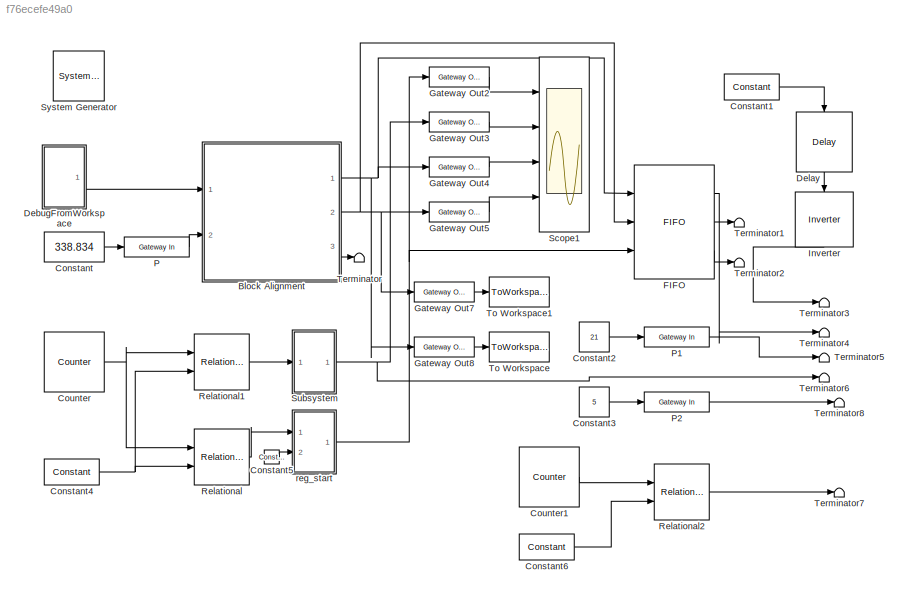
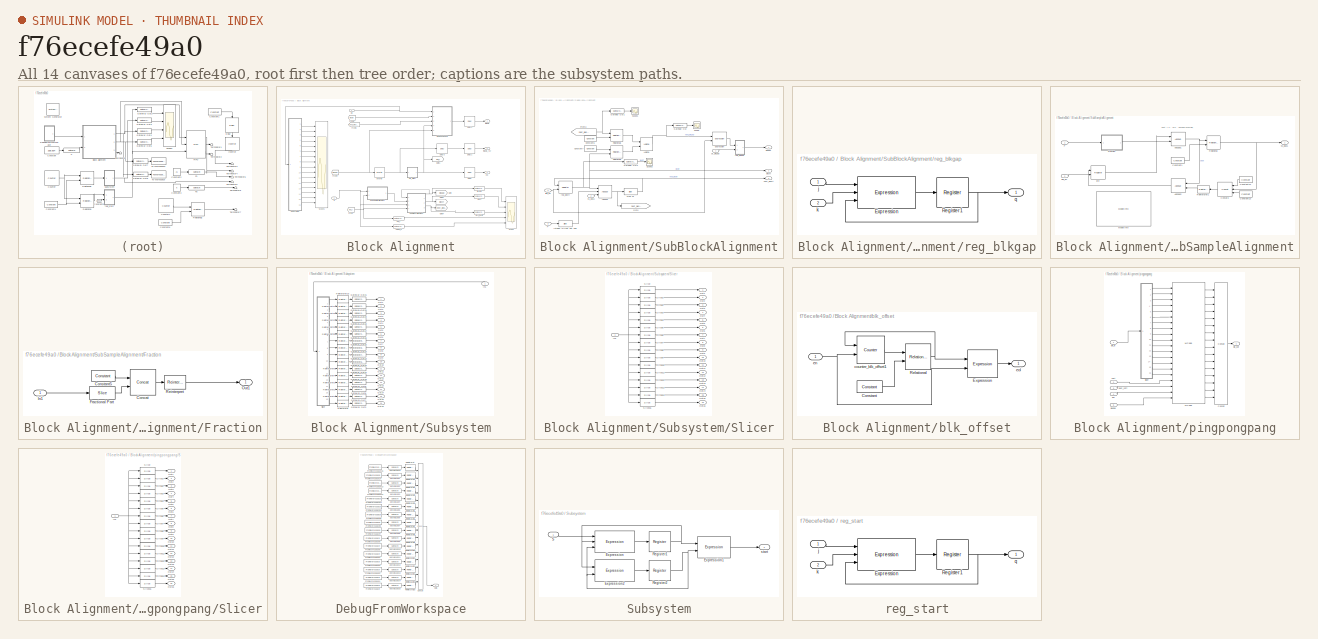
[diagram: thumbnail index - all 14 canvases of the model, root first then tree order]
MODEL slx_f76ecefe49a0
KIND model
BLOCK [Reference]  System Generator  REF=xbsIndex_r4/ System Generator
  AttributesFormatString = System\nGenerator
  Impl_file = ISE Defaults
  Ports = []
  SourceBlock = xbsIndex_r4/ System Generator
  SourceType = Xilinx System Generator Block
  Synth_file = XST Defaults
  Tag = genX
  UserDataPersistent = on
  block_type = sysgen
  block_version = 11.4
  clock_wrapper = Clock Enables
  core_generation = According to Block Masks
  dbl_ovrd = According to Block Masks
  dcm_input_clock_period = 100
  deprecated_control = off
  directory = ./celldet_ppp_sysgen
  eval_field = 0
  has_advanced_control = 0
  incr_netlist = off
  infoedit = System Generator
  package = ff1759
  part = xc6vsx475t
  proj_type = Project Navigator
  run_coregen = off
  sg_icon_stat = 51,50,0,0,token,white,0,58c5b5770fe5f7c311f53dbc6e73f0f6,right,,[ ],[ ]
  sg_mask_display = fprintf('','COMMENT: begin icon graphics');\npatch([0 51 51 0 0 ],[0 0 50 50 0 ],[1 1 1 ]);\npatch([1.6375 16.81 27.31 37.81 48.31 27.31 12.1375 1.6375 ],[36.655 36.655 47.155 36.655 47.155 47.155 47.155 36.655 ],[0.933333 0.203922 0.141176 ]);\npatch([12.1375 27.31 16.81 1.6375 12.1375 ],[26.155 26.155 36.655 36.655 26.155 ],[0.698039 0.0313725 0.219608 ]);\npatch([1.6375 16.81 27.31 12.1375 1.6375 ]...<+327ch>
  sggui_pos = 195,177,464,470
  simulink_period = 1
  speed = -1
  synthesis_tool = XST
  sysclk_period = 5
  testbench = off
  trim_vbits = Everywhere in SubSystem
  xilinxfamily = virtex6
BLOCK [SubSystem] Block Alignment
  FunctionWithSeparateData = off
  MaskHideContents = off
  MinAlgLoopOccurrences = off
  Opaque = off
  Ports = [2, 3]
  PropExecContextOutsideSubsystem = off
  RTWSystemCode = Auto
  RequestExecContextInheritance = off
BLOCK [Reference] Block Alignment/Delay  REF=xbsIndex_r4/Delay
  Ports = [1, 1]
  SourceBlock = xbsIndex_r4/Delay
  SourceType = Xilinx Delay Block
  block_type = delay
  dbl_ovrd = off
  en = off
  has_advanced_control = 0
  infoedit = Hardware notes: A delay line is a chain, each link of which is an SRL16 followed by a flip-flop.
  infoeditControl = Selection of Reset will increase slice count due to use of real FFs and instead of SRLs
  latency = 1
  reg_retiming = off
  rst = off
  sg_icon_stat = 60,56,1,1,white,blue,0,07b98262,right,,[ ],[ ]
  sg_mask_display = fprintf('','COMMENT: begin icon graphics');\npatch([0 60 60 0 0 ],[0 0 56 56 0 ],[0.77 0.82 0.91 ]);\nplot([0 60 60 0 0 ],[0 0 56 56 0 ]);\npatch([12.2 23.76 31.76 39.76 47.76 31.76 20.2 12.2 ],[36.88 36.88 44.88 36.88 44.88 44.88 44.88 36.88 ],[1 1 1 ]);\npatch([20.2 31.76 23.76 12.2 20.2 ],[28.88 28.88 36.88 36.88 28.88 ],[0.931 0.946 0.973 ]);\npatch([12.2 23.76 31.76 20.2 12.2 ],[20.88 20.88 28.88 ...<+308ch>  <repeated x4 — deduplicated; at blocks: Delay, Delay1, Delay2, Delay3>
  sggui_pos = -1,-1,-1,-1
  xl_area = [0,0,0,0,0,0,0]
  xl_use_area = off
BLOCK [Reference] Block Alignment/Delay1  REF=xbsIndex_r4/Delay
  Ports = [1, 1]
  SourceBlock = xbsIndex_r4/Delay
  SourceType = Xilinx Delay Block
  block_type = delay
  dbl_ovrd = off
  en = off
  has_advanced_control = 0
  infoedit = Hardware notes: A delay line is a chain, each link of which is an SRL16 followed by a flip-flop.
  infoeditControl = Selection of Reset will increase slice count due to use of real FFs and instead of SRLs
  latency = 1
  reg_retiming = off
  rst = off
  sg_icon_stat = 60,56,1,1,white,blue,0,07b98262,right,,[ ],[ ]
  sggui_pos = -1,-1,-1,-1
  xl_area = [0,0,0,0,0,0,0]
  xl_use_area = off
BLOCK [Reference] Block Alignment/Delay2  REF=xbsIndex_r4/Delay
  Ports = [1, 1]
  SourceBlock = xbsIndex_r4/Delay
  SourceType = Xilinx Delay Block
  block_type = delay
  dbl_ovrd = off
  en = off
  has_advanced_control = 0
  infoedit = Hardware notes: A delay line is a chain, each link of which is an SRL16 followed by a flip-flop.
  infoeditControl = Selection of Reset will increase slice count due to use of real FFs and instead of SRLs
  latency = 1
  reg_retiming = off
  rst = off
  sg_icon_stat = 60,56,1,1,white,blue,0,07b98262,right,,[ ],[ ]
  sggui_pos = 20,20,336,315
  xl_area = [0,0,0,0,0,0,0]
  xl_use_area = off
BLOCK [Reference] Block Alignment/Delay3  REF=xbsIndex_r4/Delay
  Ports = [1, 1]
  SourceBlock = xbsIndex_r4/Delay
  SourceType = Xilinx Delay Block
  block_type = delay
  dbl_ovrd = off
  en = off
  has_advanced_control = 0
  infoedit = Hardware notes: A delay line is a chain, each link of which is an SRL16 followed by a flip-flop.
  infoeditControl = Selection of Reset will increase slice count due to use of real FFs and instead of SRLs
  latency = 1
  reg_retiming = off
  rst = off
  sg_icon_stat = 60,56,1,1,white,blue,0,07b98262,right,,[ ],[ ]
  sggui_pos = -1,-1,-1,-1
  xl_area = [0,0,0,0,0,0,0]
  xl_use_area = off
BLOCK [From] Block Alignment/From
  GotoTag = eol_i
BLOCK [From] Block Alignment/From2
  GotoTag = blksft
BLOCK [From] Block Alignment/From3
  GotoTag = next_blksft
BLOCK [From] Block Alignment/From4
  GotoTag = blkgap
BLOCK [Goto] Block Alignment/Goto
  GotoTag = blkgap
BLOCK [Goto] Block Alignment/Goto1
  GotoTag = eol_i
BLOCK [Goto] Block Alignment/Goto2
  GotoTag = blksft
BLOCK [Goto] Block Alignment/Goto4
  GotoTag = next_blksft
BLOCK [Reference] Block Alignment/Inverter  REF=xbsIndex_r4/Inverter
  Ports = [1, 1]
  SourceBlock = xbsIndex_r4/Inverter
  SourceType = Xilinx Inverter Block
  block_type = inv
  dbl_ovrd = off
  en = off
  has_advanced_control = 0
  infoedit = Bitwise logical negation (one's complement) operator.
  latency = 0
  sg_icon_stat = 55,58,1,1,white,blue,0,267846e5,right,,[ ],[ ]
  sg_mask_display = fprintf('','COMMENT: begin icon graphics');\npatch([0 55 55 0 0 ],[0 0 58 58 0 ],[0.77 0.82 0.91 ]);\nplot([0 55 55 0 0 ],[0 0 58 58 0 ]);\npatch([11.425 21.54 28.54 35.54 42.54 28.54 18.425 11.425 ],[36.77 36.77 43.77 36.77 43.77 43.77 43.77 36.77 ],[1 1 1 ]);\npatch([18.425 28.54 21.54 11.425 18.425 ],[29.77 29.77 36.77 36.77 29.77 ],[0.931 0.946 0.973 ]);\npatch([11.425 21.54 28.54 18.425 11.425 ],[...<+314ch>
  sggui_pos = -1,-1,-1,-1
  xl_area = [0,0,0,0,0,0,0]
  xl_use_area = off
BLOCK [Inport] Block Alignment/P
  IconDisplay = Port number
  Port = 2
BLOCK [Scope] Block Alignment/Scope
  DataFormat = StructureWithTime
  Floating = off
  LegendLocations = 0.72576     0.89435     0.15307    0.039034\n0.72576     0.71105     0.15307    0.039034\n0.72576     0.52979     0.20925    0.039034\n0.72576     0.34649     0.14183    0.039034\n0.72576     0.16523     0.17554    0.039034
  NumInputPorts = 5
  Ports = [5]
  SampleTime = 0
  SaveName = ScopeData4
  ShowLegends = on
  TimeRange = 2102
  YMax = 5~5~20~5~5
  YMin = -5~-5~-5~-5~-5
  ZoomMode = xonly
BLOCK [Scope] Block Alignment/Scope1
  DataFormat = StructureWithTime
  Floating = off
  NumInputPorts = 16
  Ports = [16]
  SampleTime = 0
  SaveName = ScopeData6
  ShowLegends = off
  TimeRange = 2102
  YMax = 5~5~20~5~5~5~5~5~5~5~5~5~5~5~5~5
  YMin = -5~-5~-5~-5~-5~-5~-5~-5~-5~-5~-5~-5~-5~-5~-5~-5
BLOCK [SubSystem] Block Alignment/SubBlockAlignment
  FunctionWithSeparateData = off
  MaskHideContents = off
  MinAlgLoopOccurrences = off
  Opaque = off
  Ports = [4, 3]
  PropExecContextOutsideSubsystem = off
  RTWSystemCode = Auto
  RequestExecContextInheritance = off
BLOCK [Reference] Block Alignment/SubBlockAlignment/AddSub  REF=xbsIndex_r4/AddSub
  Ports = [3, 1]
  SourceBlock = xbsIndex_r4/AddSub
  SourceType = Xilinx Adder/Subtracter Block
  arith_type = Unsigned
  bin_pt = 14
  block_type = addsub
  dbl_ovrd = off
  en = off
  has_advanced_control = 0
  hw_selection = Fabric
  latency = 0
  mode = Addition
  n_bits = 16
  overflow = Wrap
  pipelined = off
  precision = Full
  quantization = Truncate
  sg_icon_stat = 60,58,3,1,white,blue,0,b4ee5867,right,,[ ],[ ]
  sg_mask_display = fprintf('','COMMENT: begin icon graphics');\npatch([0 60 60 0 0 ],[0 0 58 58 0 ],[0.77 0.82 0.91 ]);\nplot([0 60 60 0 0 ],[0 0 58 58 0 ]);\npatch([12.2 23.76 31.76 39.76 47.76 31.76 20.2 12.2 ],[37.88 37.88 45.88 37.88 45.88 45.88 45.88 37.88 ],[1 1 1 ]);\npatch([20.2 31.76 23.76 12.2 20.2 ],[29.88 29.88 37.88 37.88 29.88 ],[0.931 0.946 0.973 ]);\npatch([12.2 23.76 31.76 20.2 12.2 ],[21.88 21.88 29.88 ...<+455ch>
  sggui_pos = 50,50,336,304
  use_behavioral_HDL = off
  use_carryin = on
  use_carryout = off
  xl_area = [0,0,0,0,0,0,0]
  xl_use_area = off
BLOCK [Reference] Block Alignment/SubBlockAlignment/Constant6  REF=xbsIndex_r4/Constant
  Ports = [0, 1]
  SourceBlock = xbsIndex_r4/Constant
  SourceType = Xilinx Constant Block Block
  arith_type = Unsigned
  bin_pt = 0
  block_type = constant
  carry = CIN
  const = 16
  dbl_ovrd = off
  dsp48_infoedit = The use of this block for DSP48 instructions is deprecated.  Please use the Opmode block.
  equ = P=C
  exp_width = 8
  explicit_period = off
  frac_width = 24
  gui_display_data_type = Fixed-point
  has_advanced_control = 0
  inp1 = P
  inp2 = PCIN>>17
  n_bits = 5
  opr = +
  opselect = C
  period = 1
  preci_type = Single
  sg_icon_stat = 55,26,0,1,white,blue,0,eafdfd08,right,,[ ],[ ]
  sg_mask_display = fprintf('','COMMENT: begin icon graphics');\npatch([0 55 55 0 0 ],[0 0 26 26 0 ],[0.77 0.82 0.91 ]);\nplot([0 55 55 0 0 ],[0 0 26 26 0 ]);\npatch([20.325 24.66 27.66 30.66 33.66 27.66 23.325 20.325 ],[16.33 16.33 19.33 16.33 19.33 19.33 19.33 16.33 ],[1 1 1 ]);\npatch([23.325 27.66 24.66 20.325 23.325 ],[13.33 13.33 16.33 16.33 13.33 ],[0.931 0.946 0.973 ]);\npatch([20.325 24.66 27.66 23.325 20.325 ],[...<+324ch>
  sggui_pos = 50,50,328,421
BLOCK [Reference] Block Alignment/SubBlockAlignment/Constant7  REF=xbsIndex_r4/Constant
  Ports = [0, 1]
  SourceBlock = xbsIndex_r4/Constant
  SourceType = Xilinx Constant Block Block
  arith_type = Unsigned
  bin_pt = 0
  block_type = constant
  carry = CIN
  const = 0
  dbl_ovrd = off
  dsp48_infoedit = The use of this block for DSP48 instructions is deprecated.  Please use the Opmode block.
  equ = P=C
  exp_width = 8
  explicit_period = off
  frac_width = 24
  gui_display_data_type = Fixed-point
  has_advanced_control = 0
  inp1 = P
  inp2 = PCIN>>17
  n_bits = 5
  opr = +
  opselect = C
  period = 1
  preci_type = Single
  sg_icon_stat = 55,26,0,1,white,blue,0,bf4ddd8b,right,,[ ],[ ]
  sg_mask_display = fprintf('','COMMENT: begin icon graphics');\npatch([0 55 55 0 0 ],[0 0 26 26 0 ],[0.77 0.82 0.91 ]);\nplot([0 55 55 0 0 ],[0 0 26 26 0 ]);\npatch([20.325 24.66 27.66 30.66 33.66 27.66 23.325 20.325 ],[16.33 16.33 19.33 16.33 19.33 19.33 19.33 16.33 ],[1 1 1 ]);\npatch([23.325 27.66 24.66 20.325 23.325 ],[13.33 13.33 16.33 16.33 13.33 ],[0.931 0.946 0.973 ]);\npatch([20.325 24.66 27.66 23.325 20.325 ],[...<+323ch>  <repeated x7 — deduplicated; at blocks: Constant7, Constant1, Constant12, Constant13, Constant5, Constant6>
  sggui_pos = 50,50,328,421
BLOCK [Reference] Block Alignment/SubBlockAlignment/Expression  REF=xbsIndex_r4/Expression
  Ports = [2, 1]
  SourceBlock = xbsIndex_r4/Expression
  SourceType = Xilinx Bitwise Expression Evaluator Block
  align_bp = on
  arith_type = Unsigned
  bin_pt = 0
  block_type = expr
  dbl_ovrd = off
  en = off
  expression = a & b
  has_advanced_control = 0
  latency = 0
  n_bits = 16
  precision = Full
  sg_icon_stat = 65,60,2,1,white,blue,0,87655dbc,right,,[ ],[ ]
  sg_mask_display = fprintf('','COMMENT: begin icon graphics');\npatch([0 65 65 0 0 ],[0 0 60 60 0 ],[0.77 0.82 0.91 ]);\nplot([0 65 65 0 0 ],[0 0 60 60 0 ]);\npatch([14.2 25.76 33.76 41.76 49.76 33.76 22.2 14.2 ],[38.88 38.88 46.88 38.88 46.88 46.88 46.88 38.88 ],[1 1 1 ]);\npatch([22.2 33.76 25.76 14.2 22.2 ],[30.88 30.88 38.88 38.88 30.88 ],[0.931 0.946 0.973 ]);\npatch([14.2 25.76 33.76 22.2 14.2 ],[22.88 22.88 30.88 ...<+409ch>
  sggui_pos = -1,-1,-1,-1
  xl_area = [0,0,0,0,0,0,0]
  xl_use_area = off
BLOCK [From] Block Alignment/SubBlockAlignment/From3
  GotoTag = next_blksft_premod
BLOCK [Reference] Block Alignment/SubBlockAlignment/Gateway Out  REF=xbsIndex_r4/Gateway Out
  DACChannel = '1'
  LOCs = {}
  Ports = [1, 1]
  SourceBlock = xbsIndex_r4/Gateway Out
  SourceType = Xilinx Gateway Out Block
  UseAsDAC = off
  block_type = gatewayout
  has_advanced_control = 0
  hdl_port = on
  infoedit = Gateway out block.  Converts Xilinx fixed-point or floating-point type inputs into ouputs of type Simulink integer, single, double, or fixed-point.<br><br>Hardware notes:  In hardware these blocks become top level output ports or are discarded, depending on how they are configured.  <repeated x30 — deduplicated; at blocks: Gateway Out, Gateway Out1, Gateway Out2, Gateway Out10, Gateway Out11, Gateway Out12, Gateway Out13, Gateway Out14, Gateway Out15, Gateway Out16, Gateway Out17, Gateway Out18, Gateway Out19, Gateway Out20, Gateway Out21, Gateway Out3, +10 more>
  inherit_from_input = off
  locs_specified = off
  sg_icon_stat = 60,20,1,1,white,yellow,1,cc31b7ac,right,,[ ],[ ]
  sg_mask_display = fprintf('','COMMENT: begin icon graphics');\npatch([0 60 60 0 0 ],[0 0 20 20 0 ],[0.95 0.93 0.65 ]);\nplot([0 60 60 0 0 ],[0 0 20 20 0 ]);\npatch([25.55 28.44 30.44 32.44 34.44 30.44 27.55 25.55 ],[12.22 12.22 14.22 12.22 14.22 14.22 14.22 12.22 ],[1 1 1 ]);\npatch([27.55 30.44 28.44 25.55 27.55 ],[10.22 10.22 12.22 12.22 10.22 ],[0.985 0.979 0.895 ]);\npatch([25.55 28.44 30.44 27.55 25.55 ],[8.22 8.22...<+384ch>  <repeated x3 — deduplicated; at blocks: Gateway Out, Gateway Out1, Gateway Out2>
  sggui_pos = -1,-1,-1,-1
  timing_constraint = None
  xl_area = [0,0,0,0,0,0,0]
  xl_use_area = off
BLOCK [Reference] Block Alignment/SubBlockAlignment/Gateway Out1  REF=xbsIndex_r4/Gateway Out
  DACChannel = '1'
  LOCs = {}
  Ports = [1, 1]
  SourceBlock = xbsIndex_r4/Gateway Out
  SourceType = Xilinx Gateway Out Block
  UseAsDAC = off
  block_type = gatewayout
  has_advanced_control = 0
  hdl_port = on
  inherit_from_input = off
  locs_specified = off
  sg_icon_stat = 60,20,1,1,white,yellow,1,cc31b7ac,right,,[ ],[ ]
  sggui_pos = -1,-1,-1,-1
  timing_constraint = None
  xl_area = [0,0,0,0,0,0,0]
  xl_use_area = off
BLOCK [Reference] Block Alignment/SubBlockAlignment/Gateway Out2  REF=xbsIndex_r4/Gateway Out
  DACChannel = '1'
  LOCs = {}
  Ports = [1, 1]
  SourceBlock = xbsIndex_r4/Gateway Out
  SourceType = Xilinx Gateway Out Block
  UseAsDAC = off
  block_type = gatewayout
  has_advanced_control = 0
  hdl_port = on
  inherit_from_input = off
  locs_specified = off
  sg_icon_stat = 60,20,1,1,white,yellow,1,cc31b7ac,right,,[ ],[ ]
  sggui_pos = -1,-1,-1,-1
  timing_constraint = None
  xl_area = [0,0,0,0,0,0,0]
  xl_use_area = off
BLOCK [Goto] Block Alignment/SubBlockAlignment/Goto
  GotoTag = next_blksft_premod
BLOCK [Reference] Block Alignment/SubBlockAlignment/Integer Offset Per Line  REF=xbsIndex_r4/Slice
  Ports = [1, 1]
  SourceBlock = xbsIndex_r4/Slice
  SourceType = Xilinx Bit Slice Extractor Block
  base0 = LSB of Input
  base1 = MSB of Input
  bit0 = 20
  bit1 = 0
  block_type = slice
  boolean_output = off
  dbl_ovrd = off
  has_advanced_control = 0
  infoedit = Extracts a given range of bits from each input sample and presents it at the output.  The output type is ordinarily unsigned with binary point at zero, but can be Boolean when the slice is one bit wide.<br><br>Hardware notes: In hardware this block costs nothing.  <repeated x35 — deduplicated; at blocks: Integer Offset Per Line, Mod 16, Fractional Part, Slice, Slice1, Slice10, Slice11, Slice12, Slice13, Slice14, Slice15, Slice2, Slice3, Slice4, Slice5, Slice6, +3 more>
  mode = Lower Bit Location + Width
  nbits = 4
  sg_icon_stat = 60,30,1,1,white,blue,0,1fd851a7,right,,[ ],[ ]
  sg_mask_display = fprintf('','COMMENT: begin icon graphics');\npatch([0 60 60 0 0 ],[0 0 30 30 0 ],[0.77 0.82 0.91 ]);\nplot([0 60 60 0 0 ],[0 0 30 30 0 ]);\npatch([21.1 26.88 30.88 34.88 38.88 30.88 25.1 21.1 ],[19.44 19.44 23.44 19.44 23.44 23.44 23.44 19.44 ],[1 1 1 ]);\npatch([25.1 30.88 26.88 21.1 25.1 ],[15.44 15.44 19.44 19.44 15.44 ],[0.931 0.946 0.973 ]);\npatch([21.1 26.88 30.88 25.1 21.1 ],[11.44 11.44 15.44 ...<+304ch>  <repeated x35 — deduplicated; at blocks: Integer Offset Per Line, Mod 16, Fractional Part, Slice, Slice1, Slice10, Slice11, Slice12, Slice13, Slice14, Slice15, Slice2, Slice3, Slice4, Slice5, Slice6, +3 more>
  sggui_pos = 50,50,459,397
BLOCK [Reference] Block Alignment/SubBlockAlignment/Logical  REF=xbsIndex_r4/Logical
  Ports = [2, 1]
  SourceBlock = xbsIndex_r4/Logical
  SourceType = Xilinx Logical Block Block
  align_bp = on
  arith_type = Unsigned
  bin_pt = 0
  block_type = logical
  dbl_ovrd = off
  en = off
  has_advanced_control = 0
  inputs = 2
  latency = 0
  logical_function = OR
  n_bits = 16
  precision = Full
  sg_icon_stat = 55,60,2,1,white,blue,0,7ede7d88,right,,[ ],[ ]
  sg_mask_display = fprintf('','COMMENT: begin icon graphics');\npatch([0 55 55 0 0 ],[0 0 60 60 0 ],[0.77 0.82 0.91 ]);\nplot([0 55 55 0 0 ],[0 0 60 60 0 ]);\npatch([11.425 21.54 28.54 35.54 42.54 28.54 18.425 11.425 ],[37.77 37.77 44.77 37.77 44.77 44.77 44.77 37.77 ],[1 1 1 ]);\npatch([18.425 28.54 21.54 11.425 18.425 ],[30.77 30.77 37.77 37.77 30.77 ],[0.931 0.946 0.973 ]);\npatch([11.425 21.54 28.54 18.425 11.425 ],[...<+314ch>
  sggui_pos = 20,20,336,249
  xl_area = [0,0,0,0,0,0,0]
  xl_use_area = off
BLOCK [Reference] Block Alignment/SubBlockAlignment/Mod 16  REF=xbsIndex_r4/Slice
  Ports = [1, 1]
  SourceBlock = xbsIndex_r4/Slice
  SourceType = Xilinx Bit Slice Extractor Block
  base0 = LSB of Input
  base1 = MSB of Input
  bit0 = 0
  bit1 = 1
  block_type = slice
  boolean_output = off
  dbl_ovrd = off
  has_advanced_control = 0
  mode = Lower Bit Location + Width
  nbits = 4
  sg_icon_stat = 60,30,1,1,white,blue,0,1fd851a7,right,,[ ],[ ]
  sggui_pos = 50,50,459,397
BLOCK [Inport] Block Alignment/SubBlockAlignment/P
  IconDisplay = Port number
  Port = 3
BLOCK [Reference] Block Alignment/SubBlockAlignment/Relational1  REF=xbsIndex_r4/Relational
  Ports = [2, 1]
  SourceBlock = xbsIndex_r4/Relational
  SourceType = Xilinx Arithmetic Relational Operator Block
  block_type = relational
  dbl_ovrd = off
  en = off
  has_advanced_control = 0
  latency = 0
  mode = a>b
  sg_icon_stat = 55,56,2,1,white,blue,0,b5131c97,right,,[ ],[ ]
  sg_mask_display = fprintf('','COMMENT: begin icon graphics');\npatch([0 55 55 0 0 ],[0 0 56 56 0 ],[0.77 0.82 0.91 ]);\nplot([0 55 55 0 0 ],[0 0 56 56 0 ]);\npatch([11.425 21.54 28.54 35.54 42.54 28.54 18.425 11.425 ],[35.77 35.77 42.77 35.77 42.77 42.77 42.77 35.77 ],[1 1 1 ]);\npatch([18.425 28.54 21.54 11.425 18.425 ],[28.77 28.77 35.77 35.77 28.77 ],[0.931 0.946 0.973 ]);\npatch([11.425 21.54 28.54 18.425 11.425 ],[...<+459ch>  <repeated x7 — deduplicated; at blocks: Relational1, Relational2, Relational>
  sggui_pos = 20,20,336,185
  xl_area = [0,0,0,0,0,0,0]
  xl_use_area = off
BLOCK [Reference] Block Alignment/SubBlockAlignment/Relational2  REF=xbsIndex_r4/Relational
  Ports = [2, 1]
  SourceBlock = xbsIndex_r4/Relational
  SourceType = Xilinx Arithmetic Relational Operator Block
  block_type = relational
  dbl_ovrd = off
  en = off
  has_advanced_control = 0
  latency = 0
  mode = a=b
  sg_icon_stat = 55,56,2,1,white,blue,0,2a81ff49,right,,[ ],[ ]
  sggui_pos = 20,20,336,185
  xl_area = [0,0,0,0,0,0,0]
  xl_use_area = off
BLOCK [Scope] Block Alignment/SubBlockAlignment/Scope
  DataFormat = StructureWithTime
  Floating = off
  NumInputPorts = 1
  Ports = [1]
  SampleTime = 0
  SaveName = ScopeData1
  ShowLegends = off
BLOCK [Scope] Block Alignment/SubBlockAlignment/Scope1
  DataFormat = StructureWithTime
  Floating = off
  NumInputPorts = 1
  Ports = [1]
  SampleTime = 0
  SaveName = ScopeData2
  ShowLegends = off
BLOCK [Scope] Block Alignment/SubBlockAlignment/Scope2
  DataFormat = StructureWithTime
  Floating = off
  NumInputPorts = 1
  Ports = [1]
  SampleTime = 0
  SaveName = ScopeData3
  ShowLegends = off
BLOCK [Outport] Block Alignment/SubBlockAlignment/blkgap
  IconDisplay = Port number
BLOCK [Outport] Block Alignment/SubBlockAlignment/blksft
  IconDisplay = Port number
  Port = 2
BLOCK [Inport] Block Alignment/SubBlockAlignment/clr_blkgap
  IconDisplay = Port number
BLOCK [Inport] Block Alignment/SubBlockAlignment/line_en
  IconDisplay = Port number
  Port = 4
BLOCK [Outport] Block Alignment/SubBlockAlignment/next_blksft
  IconDisplay = Port number
  Port = 3
BLOCK [SubSystem] Block Alignment/SubBlockAlignment/reg_blkgap
  FunctionWithSeparateData = off
  MaskHideContents = off
  MinAlgLoopOccurrences = off
  Opaque = off
  Ports = [2, 1]
  PropExecContextOutsideSubsystem = off
  RTWSystemCode = Auto
  RequestExecContextInheritance = off
BLOCK [Reference] Block Alignment/SubBlockAlignment/reg_blkgap/Expression  REF=xbsIndex_r4/Expression
  Ports = [3, 1]
  SourceBlock = xbsIndex_r4/Expression
  SourceType = Xilinx Bitwise Expression Evaluator Block
  align_bp = off
  arith_type = Unsigned
  bin_pt = 0
  block_type = expr
  dbl_ovrd = off
  en = off
  expression = (~q & j) | (q & ~k)
  has_advanced_control = 0
  latency = 0
  n_bits = 16
  precision = Full
  sg_icon_stat = 110,60,3,1,white,blue,0,a389ea39,right,,[ ],[ ]
  sg_mask_display = fprintf('','COMMENT: begin icon graphics');\npatch([0 110 110 0 0 ],[0 0 60 60 0 ],[0.77 0.82 0.91 ]);\nplot([0 110 110 0 0 ],[0 0 60 60 0 ]);\npatch([37.2 48.76 56.76 64.76 72.76 56.76 45.2 37.2 ],[38.88 38.88 46.88 38.88 46.88 46.88 46.88 38.88 ],[1 1 1 ]);\npatch([45.2 56.76 48.76 37.2 45.2 ],[30.88 30.88 38.88 38.88 30.88 ],[0.931 0.946 0.973 ]);\npatch([37.2 48.76 56.76 45.2 37.2 ],[22.88 22.88 30...<+469ch>
  sggui_pos = 20,20,336,234
  xl_area = [0,0,0,0,0,0,0]
  xl_use_area = off
BLOCK [Reference] Block Alignment/SubBlockAlignment/reg_blkgap/Register1  REF=xbsIndex_r4/Register
  Ports = [1, 1]
  SourceBlock = xbsIndex_r4/Register
  SourceType = Xilinx Register Block
  block_type = register
  dbl_ovrd = off
  en = off
  has_advanced_control = 0
  init = 0
  rst = off
  sg_icon_stat = 60,56,1,1,white,blue,0,c80657c5,right,,[ ],[ ]
  sg_mask_display = fprintf('','COMMENT: begin icon graphics');\npatch([0 60 60 0 0 ],[0 0 56 56 0 ],[0.77 0.82 0.91 ]);\nplot([0 60 60 0 0 ],[0 0 56 56 0 ]);\npatch([12.2 23.76 31.76 39.76 47.76 31.76 20.2 12.2 ],[36.88 36.88 44.88 36.88 44.88 44.88 44.88 36.88 ],[1 1 1 ]);\npatch([20.2 31.76 23.76 12.2 20.2 ],[28.88 28.88 36.88 36.88 28.88 ],[0.931 0.946 0.973 ]);\npatch([12.2 23.76 31.76 20.2 12.2 ],[20.88 20.88 28.88 ...<+391ch>  <repeated x4 — deduplicated; at blocks: Register1, Register2>
  sggui_pos = 20,20,336,185
  xl_area = [0,0,0,0,0,0,0]
  xl_use_area = off
BLOCK [Inport] Block Alignment/SubBlockAlignment/reg_blkgap/j
  IconDisplay = Port number
BLOCK [Inport] Block Alignment/SubBlockAlignment/reg_blkgap/k
  IconDisplay = Port number
  Port = 2
BLOCK [Outport] Block Alignment/SubBlockAlignment/reg_blkgap/q
  IconDisplay = Port number
BLOCK [Reference] Block Alignment/SubBlockAlignment/reg_blksft  REF=xbsIndex_r4/Register
  Ports = [2, 1]
  SourceBlock = xbsIndex_r4/Register
  SourceType = Xilinx Register Block
  block_type = register
  dbl_ovrd = off
  en = on
  has_advanced_control = 0
  init = 0
  rst = off
  sg_icon_stat = 60,56,2,1,white,blue,0,6bd0930c,right,,[ ],[ ]
  sg_mask_display = fprintf('','COMMENT: begin icon graphics');\npatch([0 60 60 0 0 ],[0 0 56 56 0 ],[0.77 0.82 0.91 ]);\nplot([0 60 60 0 0 ],[0 0 56 56 0 ]);\npatch([12.2 23.76 31.76 39.76 47.76 31.76 20.2 12.2 ],[36.88 36.88 44.88 36.88 44.88 44.88 44.88 36.88 ],[1 1 1 ]);\npatch([20.2 31.76 23.76 12.2 20.2 ],[28.88 28.88 36.88 36.88 28.88 ],[0.931 0.946 0.973 ]);\npatch([12.2 23.76 31.76 20.2 12.2 ],[20.88 20.88 28.88 ...<+434ch>
  sggui_pos = 50,50,336,185
  xl_area = [0,0,0,0,0,0,0]
  xl_use_area = off
BLOCK [Inport] Block Alignment/SubBlockAlignment/ss_plus1
  IconDisplay = Port number
  Port = 2
BLOCK [SubSystem] Block Alignment/SubSampleAlignment
  FunctionWithSeparateData = off
  MaskHideContents = off
  MinAlgLoopOccurrences = off
  Opaque = off
  Ports = [2, 1]
  PropExecContextOutsideSubsystem = off
  RTWSystemCode = Auto
  RequestExecContextInheritance = off
BLOCK [Reference] Block Alignment/SubSampleAlignment/AddSub1  REF=xbsIndex_r4/AddSub
  Ports = [2, 1]
  SourceBlock = xbsIndex_r4/AddSub
  SourceType = Xilinx Adder/Subtracter Block
  arith_type = Signed  (2's comp)
  bin_pt = 20
  block_type = addsub
  dbl_ovrd = off
  en = off
  has_advanced_control = 0
  hw_selection = Fabric
  latency = 0
  mode = Subtraction
  n_bits = 22
  overflow = Wrap
  pipelined = off
  precision = User Defined
  quantization = Truncate
  sg_icon_stat = 60,58,2,1,white,blue,0,32e1f85f,right,,[ ],[ ]
  sg_mask_display = fprintf('','COMMENT: begin icon graphics');\npatch([0 60 60 0 0 ],[0 0 58 58 0 ],[0.77 0.82 0.91 ]);\nplot([0 60 60 0 0 ],[0 0 58 58 0 ]);\npatch([12.2 23.76 31.76 39.76 47.76 31.76 20.2 12.2 ],[37.88 37.88 45.88 37.88 45.88 45.88 45.88 37.88 ],[1 1 1 ]);\npatch([20.2 31.76 23.76 12.2 20.2 ],[29.88 29.88 37.88 37.88 29.88 ],[0.931 0.946 0.973 ]);\npatch([12.2 23.76 31.76 20.2 12.2 ],[21.88 21.88 29.88 ...<+411ch>
  sggui_pos = 50,50,336,304
  use_behavioral_HDL = off
  use_carryin = off
  use_carryout = off
  xl_area = [0,0,0,0,0,0,0]
  xl_use_area = off
BLOCK [Reference] Block Alignment/SubSampleAlignment/AddSub2  REF=xbsIndex_r4/AddSub
  Ports = [2, 1]
  SourceBlock = xbsIndex_r4/AddSub
  SourceType = Xilinx Adder/Subtracter Block
  arith_type = Signed  (2's comp)
  bin_pt = 20
  block_type = addsub
  dbl_ovrd = off
  en = off
  has_advanced_control = 0
  hw_selection = Fabric
  latency = 0
  mode = Addition
  n_bits = 22
  overflow = Wrap
  pipelined = off
  precision = User Defined
  quantization = Truncate
  sg_icon_stat = 60,58,2,1,white,blue,0,e139daf6,left,,[ ],[ ]
  sg_mask_display = fprintf('','COMMENT: begin icon graphics');\npatch([0 60 60 0 0 ],[0 0 58 58 0 ],[0.77 0.82 0.91 ]);\nplot([0 60 60 0 0 ],[0 0 58 58 0 ]);\npatch([12.2 23.76 31.76 39.76 47.76 31.76 20.2 12.2 ],[37.88 37.88 45.88 37.88 45.88 45.88 45.88 37.88 ],[1 1 1 ]);\npatch([20.2 31.76 23.76 12.2 20.2 ],[29.88 29.88 37.88 37.88 29.88 ],[0.931 0.946 0.973 ]);\npatch([12.2 23.76 31.76 20.2 12.2 ],[21.88 21.88 29.88 ...<+411ch>
  sggui_pos = 50,50,336,304
  use_behavioral_HDL = off
  use_carryin = off
  use_carryout = off
  xl_area = [0,0,0,0,0,0,0]
  xl_use_area = off
BLOCK [Reference] Block Alignment/SubSampleAlignment/Concat3  REF=xbsIndex_r4/Concat
  Ports = [3, 1]
  SourceBlock = xbsIndex_r4/Concat
  SourceType = Xilinx Bus Concatenator Block
  block_type = concat
  dbl_ovrd = off
  has_advanced_control = 0
  infoedit = Concatenates two or more inputs.  Output will be cast to an unsigned value with the binary point at zero.
  num_inputs = 3
  sg_icon_stat = 60,60,3,1,white,blue,0,61ef8218,left,,[ ],[ ]
  sg_mask_display = fprintf('','COMMENT: begin icon graphics');\npatch([0 60 60 0 0 ],[0 0 60 60 0 ],[0.77 0.82 0.91 ]);\nplot([0 60 60 0 0 ],[0 0 60 60 0 ]);\npatch([12.2 23.76 31.76 39.76 47.76 31.76 20.2 12.2 ],[38.88 38.88 46.88 38.88 46.88 46.88 46.88 38.88 ],[1 1 1 ]);\npatch([20.2 31.76 23.76 12.2 20.2 ],[30.88 30.88 38.88 38.88 30.88 ],[0.931 0.946 0.973 ]);\npatch([12.2 23.76 31.76 20.2 12.2 ],[22.88 22.88 30.88 ...<+403ch>
  sggui_pos = 20,20,328,182
BLOCK [Reference] Block Alignment/SubSampleAlignment/Constant1  REF=xbsIndex_r4/Constant
  Ports = [0, 1]
  SourceBlock = xbsIndex_r4/Constant
  SourceType = Xilinx Constant Block Block
  arith_type = Signed (2's comp)
  bin_pt = 20
  block_type = constant
  carry = CIN
  const = 0
  dbl_ovrd = off
  dsp48_infoedit = The use of this block for DSP48 instructions is deprecated.  Please use the Opmode block.
  equ = P=C
  exp_width = 8
  explicit_period = off
  frac_width = 24
  gui_display_data_type = Fixed-point
  has_advanced_control = 0
  inp1 = P
  inp2 = PCIN>>17
  n_bits = 22
  opr = +
  opselect = C
  period = 1
  preci_type = Single
  sg_icon_stat = 55,26,0,1,white,blue,0,bf4ddd8b,right,,[ ],[ ]
  sggui_pos = 20,20,328,421
BLOCK [Reference] Block Alignment/SubSampleAlignment/Constant12  REF=xbsIndex_r4/Constant
  Ports = [0, 1]
  SourceBlock = xbsIndex_r4/Constant
  SourceType = Xilinx Constant Block Block
  arith_type = Unsigned
  bin_pt = 0
  block_type = constant
  carry = CIN
  const = 0
  dbl_ovrd = off
  dsp48_infoedit = The use of this block for DSP48 instructions is deprecated.  Please use the Opmode block.
  equ = P=C
  exp_width = 8
  explicit_period = off
  frac_width = 24
  gui_display_data_type = Fixed-point
  has_advanced_control = 0
  inp1 = P
  inp2 = PCIN>>17
  n_bits = 1
  opr = +
  opselect = C
  period = 1
  preci_type = Single
  sg_icon_stat = 55,26,0,1,white,blue,0,bf4ddd8b,left,,[ ],[ ]
  sggui_pos = 20,20,328,421
BLOCK [Reference] Block Alignment/SubSampleAlignment/Constant13  REF=xbsIndex_r4/Constant
  Ports = [0, 1]
  SourceBlock = xbsIndex_r4/Constant
  SourceType = Xilinx Constant Block Block
  arith_type = Unsigned
  bin_pt = 0
  block_type = constant
  carry = CIN
  const = 0
  dbl_ovrd = off
  dsp48_infoedit = The use of this block for DSP48 instructions is deprecated.  Please use the Opmode block.
  equ = P=C
  exp_width = 8
  explicit_period = off
  frac_width = 24
  gui_display_data_type = Fixed-point
  has_advanced_control = 0
  inp1 = P
  inp2 = PCIN>>17
  n_bits = 20
  opr = +
  opselect = C
  period = 1
  preci_type = Single
  sg_icon_stat = 55,26,0,1,white,blue,0,bf4ddd8b,left,,[ ],[ ]
  sggui_pos = 20,20,328,421
BLOCK [SubSystem] Block Alignment/SubSampleAlignment/Fraction
  FunctionWithSeparateData = off
  MaskHideContents = off
  MinAlgLoopOccurrences = off
  Opaque = off
  Ports = [1, 1]
  PropExecContextOutsideSubsystem = off
  RTWSystemCode = Auto
  RequestExecContextInheritance = off
BLOCK [Reference] Block Alignment/SubSampleAlignment/Fraction/Concat  REF=xbsIndex_r4/Concat
  Ports = [2, 1]
  SourceBlock = xbsIndex_r4/Concat
  SourceType = Xilinx Bus Concatenator Block
  block_type = concat
  dbl_ovrd = off
  has_advanced_control = 0
  infoedit = Concatenates two or more inputs.  Output will be cast to an unsigned value with the binary point at zero.
  num_inputs = 2
  sg_icon_stat = 60,60,2,1,white,blue,0,16398980,right,,[ ],[ ]
  sg_mask_display = fprintf('','COMMENT: begin icon graphics');\npatch([0 60 60 0 0 ],[0 0 60 60 0 ],[0.77 0.82 0.91 ]);\nplot([0 60 60 0 0 ],[0 0 60 60 0 ]);\npatch([12.2 23.76 31.76 39.76 47.76 31.76 20.2 12.2 ],[38.88 38.88 46.88 38.88 46.88 46.88 46.88 38.88 ],[1 1 1 ]);\npatch([20.2 31.76 23.76 12.2 20.2 ],[30.88 30.88 38.88 38.88 30.88 ],[0.931 0.946 0.973 ]);\npatch([12.2 23.76 31.76 20.2 12.2 ],[22.88 22.88 30.88 ...<+402ch>
  sggui_pos = 20,20,328,182
BLOCK [Reference] Block Alignment/SubSampleAlignment/Fraction/Constant5  REF=xbsIndex_r4/Constant
  Ports = [0, 1]
  SourceBlock = xbsIndex_r4/Constant
  SourceType = Xilinx Constant Block Block
  arith_type = Unsigned
  bin_pt = 0
  block_type = constant
  carry = CIN
  const = 0
  dbl_ovrd = off
  dsp48_infoedit = The use of this block for DSP48 instructions is deprecated.  Please use the Opmode block.
  equ = P=C
  exp_width = 8
  explicit_period = off
  frac_width = 24
  gui_display_data_type = Fixed-point
  has_advanced_control = 0
  inp1 = P
  inp2 = PCIN>>17
  n_bits = 2
  opr = +
  opselect = C
  period = 1
  preci_type = Single
  sg_icon_stat = 55,26,0,1,white,blue,0,bf4ddd8b,right,,[ ],[ ]
  sggui_pos = 20,20,328,421
BLOCK [Reference] Block Alignment/SubSampleAlignment/Fraction/Fractional Part  REF=xbsIndex_r4/Slice
  Ports = [1, 1]
  SourceBlock = xbsIndex_r4/Slice
  SourceType = Xilinx Bit Slice Extractor Block
  base0 = LSB of Input
  base1 = MSB of Input
  bit0 = 0
  bit1 = 0
  block_type = slice
  boolean_output = off
  dbl_ovrd = off
  has_advanced_control = 0
  mode = Lower Bit Location + Width
  nbits = 20
  sg_icon_stat = 60,30,1,1,white,blue,0,1fd851a7,right,,[ ],[ ]
  sggui_pos = 50,50,459,397
BLOCK [Inport] Block Alignment/SubSampleAlignment/Fraction/In1
  IconDisplay = Port number
BLOCK [Outport] Block Alignment/SubSampleAlignment/Fraction/Out1
  IconDisplay = Port number
BLOCK [Reference] Block Alignment/SubSampleAlignment/Fraction/Reinterpret  REF=xbsIndex_r4/Reinterpret
  Ports = [1, 1]
  SourceBlock = xbsIndex_r4/Reinterpret
  SourceType = Xilinx Type Reinterpreter Block
  arith_type = Signed  (2's comp)
  bin_pt = 20
  block_type = reinterpret
  force_arith_type = on
  force_bin_pt = on
  has_advanced_control = 0
  infoedit = Changes signal type without altering the binary representation.   You can change the signal between signed and unsigned, and relocate the binary point.<br><br>Hardware notes: In hardware this block costs nothing.<br><br>Example:  Suppose the input is 6 bits wide, signed, with 2 fractional bits, and the output is forced to unsigned with 0 fractional bits.  Then an input of -2.0 (1110.00 in binary 2...<+58ch>  <repeated x34 — deduplicated; at blocks: Reinterpret, Reinterpret1, Reinterpret10, Reinterpret11, Reinterpret12, Reinterpret13, Reinterpret14, Reinterpret15, Reinterpret2, Reinterpret3, Reinterpret4, Reinterpret5, Reinterpret6, Reinterpret7, Reinterpret8, Reinterpret9>
  sg_icon_stat = 50,32,1,1,white,blue,0,6b04d0b0,right,,[ ],[ ]
  sg_mask_display = fprintf('','COMMENT: begin icon graphics');\npatch([0 50 50 0 0 ],[0 0 32 32 0 ],[0.77 0.82 0.91 ]);\nplot([0 50 50 0 0 ],[0 0 32 32 0 ]);\npatch([16.1 21.88 25.88 29.88 33.88 25.88 20.1 16.1 ],[20.44 20.44 24.44 20.44 24.44 24.44 24.44 20.44 ],[1 1 1 ]);\npatch([20.1 25.88 21.88 16.1 20.1 ],[16.44 16.44 20.44 20.44 16.44 ],[0.931 0.946 0.973 ]);\npatch([16.1 21.88 25.88 20.1 16.1 ],[12.44 12.44 16.44 ...<+294ch>  <repeated x34 — deduplicated; at blocks: Reinterpret, Reinterpret1, Reinterpret10, Reinterpret11, Reinterpret12, Reinterpret13, Reinterpret14, Reinterpret15, Reinterpret2, Reinterpret3, Reinterpret4, Reinterpret5, Reinterpret6, Reinterpret7, Reinterpret8, Reinterpret9>
  sggui_pos = 20,20,328,310
BLOCK [Reference] Block Alignment/SubSampleAlignment/Model Info  REF=simulink/Model-Wide
Utilities/Model Info
  BlockCM = None
  DisplayStringWithTags = post = pre - (P - periodResample);\n    if (post < 0)\n        % skip 1 more\n        next_blksft = next_blksft + 1;\n        pre = 1 + post;\n    else\n        % no need to skip\n        pre = post;\n    end
  Frame = on
  HorizontalTextAlignment = Left
  InitialBlockCM = None
  LeftAlignmentValue = 0.02
  MaskDisplayString = \n    post = pre - (P - periodResample);\n    if (post < 0)\n        % skip 1 more\n        next_blksft = next_blksft + 1;\n        pre = 1 + post;\n    else\n        % no need to skip\n        pre = post;\n    end
  Ports = []
  SourceBlock = simulink/Model-Wide\nUtilities/Model Info
  SourceBlockDiagram = celldet12b
  SourceType = CMBlock
  TagMaxNumber = 20
BLOCK [Inport] Block Alignment/SubSampleAlignment/P
  IconDisplay = Port number
BLOCK [Reference] Block Alignment/SubSampleAlignment/Reinterpret1  REF=xbsIndex_r4/Reinterpret
  Ports = [1, 1]
  SourceBlock = xbsIndex_r4/Reinterpret
  SourceType = Xilinx Type Reinterpreter Block
  arith_type = Signed  (2's comp)
  bin_pt = 20
  block_type = reinterpret
  force_arith_type = on
  force_bin_pt = on
  has_advanced_control = 0
  sg_icon_stat = 50,32,1,1,white,blue,0,6b04d0b0,left,,[ ],[ ]
  sggui_pos = 20,20,328,310
BLOCK [Reference] Block Alignment/SubSampleAlignment/Relational  REF=xbsIndex_r4/Relational
  Ports = [2, 1]
  SourceBlock = xbsIndex_r4/Relational
  SourceType = Xilinx Arithmetic Relational Operator Block
  block_type = relational
  dbl_ovrd = off
  en = off
  has_advanced_control = 0
  latency = 0
  mode = a<b
  sg_icon_stat = 55,56,2,1,white,blue,0,731fb07f,right,,[ ],[ ]
  sggui_pos = 20,20,336,185
  xl_area = [0,0,0,0,0,0,0]
  xl_use_area = off
BLOCK [Inport] Block Alignment/SubSampleAlignment/line_en
  IconDisplay = Port number
  Port = 2
BLOCK [Reference] Block Alignment/SubSampleAlignment/pre  REF=xbsIndex_r4/Register
  Ports = [2, 1]
  SourceBlock = xbsIndex_r4/Register
  SourceType = Xilinx Register Block
  block_type = register
  dbl_ovrd = off
  en = on
  has_advanced_control = 0
  init = 0
  rst = off
  sg_icon_stat = 60,56,2,1,white,blue,0,6bd0930c,right,,[ ],[ ]
  sg_mask_display = fprintf('','COMMENT: begin icon graphics');\npatch([0 60 60 0 0 ],[0 0 56 56 0 ],[0.77 0.82 0.91 ]);\nplot([0 60 60 0 0 ],[0 0 56 56 0 ]);\npatch([12.2 23.76 31.76 39.76 47.76 31.76 20.2 12.2 ],[36.88 36.88 44.88 36.88 44.88 44.88 44.88 36.88 ],[1 1 1 ]);\npatch([20.2 31.76 23.76 12.2 20.2 ],[28.88 28.88 36.88 36.88 28.88 ],[0.931 0.946 0.973 ]);\npatch([12.2 23.76 31.76 20.2 12.2 ],[20.88 20.88 28.88 ...<+434ch>
  sggui_pos = 50,50,336,185
  xl_area = [0,0,0,0,0,0,0]
  xl_use_area = off
BLOCK [Outport] Block Alignment/SubSampleAlignment/ss_plus1
  IconDisplay = Port number
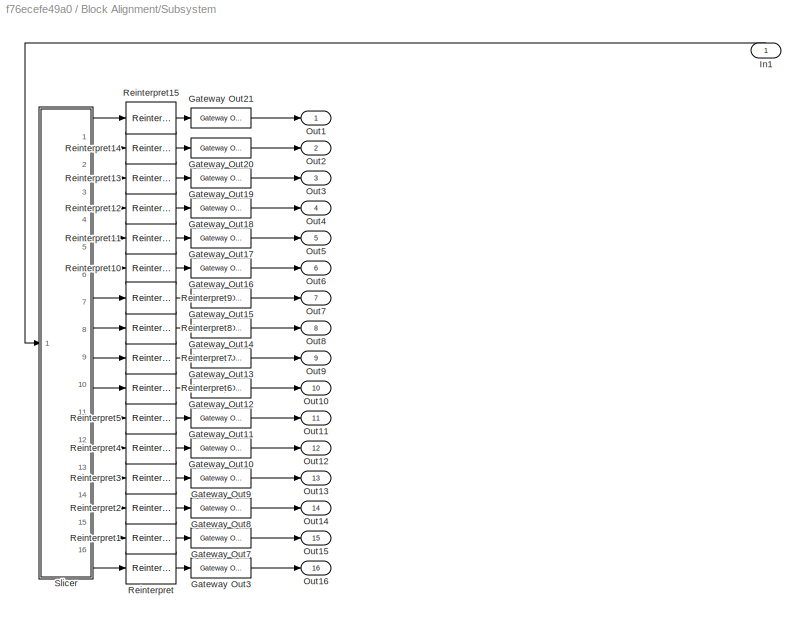
BLOCK [SubSystem] Block Alignment/Subsystem
  FunctionWithSeparateData = off
  MaskHideContents = off
  MinAlgLoopOccurrences = off
  Opaque = off
  Ports = [1, 16]
  PropExecContextOutsideSubsystem = off
  RTWSystemCode = Auto
  RequestExecContextInheritance = off
BLOCK [Reference] Block Alignment/Subsystem/Gateway Out10  REF=xbsIndex_r4/Gateway Out
  DACChannel = '1'
  LOCs = {}
  Ports = [1, 1]
  SourceBlock = xbsIndex_r4/Gateway Out
  SourceType = Xilinx Gateway Out Block
  UseAsDAC = off
  block_type = gatewayout
  has_advanced_control = 0
  hdl_port = off
  inherit_from_input = off
  locs_specified = off
  sg_icon_stat = 60,20,1,1,white,grey,1,632ec840,right,,[ ],[ ]
  sg_mask_display = fprintf('','COMMENT: begin icon graphics');\npatch([0 60 60 0 0 ],[0 0 20 20 0 ],[0.88 0.88 0.88 ]);\nplot([0 60 60 0 0 ],[0 0 20 20 0 ]);\npatch([25.55 28.44 30.44 32.44 34.44 30.44 27.55 25.55 ],[12.22 12.22 14.22 12.22 14.22 14.22 14.22 12.22 ],[1 1 1 ]);\npatch([27.55 30.44 28.44 25.55 27.55 ],[10.22 10.22 12.22 12.22 10.22 ],[0.964 0.964 0.964 ]);\npatch([25.55 28.44 30.44 27.55 25.55 ],[8.22 8.22...<+381ch>  <repeated x27 — deduplicated; at blocks: Gateway Out10, Gateway Out11, Gateway Out12, Gateway Out13, Gateway Out14, Gateway Out15, Gateway Out16, Gateway Out17, Gateway Out18, Gateway Out19, Gateway Out20, Gateway Out21, Gateway Out3, Gateway Out7, Gateway Out8, Gateway Out9, +8 more>
  sggui_pos = 20,20,328,552
  timing_constraint = None
  xl_area = [0,0,0,0,0,0,0]
  xl_use_area = off
BLOCK [Reference] Block Alignment/Subsystem/Gateway Out11  REF=xbsIndex_r4/Gateway Out
  DACChannel = '1'
  LOCs = {}
  Ports = [1, 1]
  SourceBlock = xbsIndex_r4/Gateway Out
  SourceType = Xilinx Gateway Out Block
  UseAsDAC = off
  block_type = gatewayout
  has_advanced_control = 0
  hdl_port = off
  inherit_from_input = off
  locs_specified = off
  sg_icon_stat = 60,20,1,1,white,grey,1,632ec840,right,,[ ],[ ]
  sggui_pos = 20,20,328,552
  timing_constraint = None
  xl_area = [0,0,0,0,0,0,0]
  xl_use_area = off
BLOCK [Reference] Block Alignment/Subsystem/Gateway Out12  REF=xbsIndex_r4/Gateway Out
  DACChannel = '1'
  LOCs = {}
  Ports = [1, 1]
  SourceBlock = xbsIndex_r4/Gateway Out
  SourceType = Xilinx Gateway Out Block
  UseAsDAC = off
  block_type = gatewayout
  has_advanced_control = 0
  hdl_port = off
  inherit_from_input = off
  locs_specified = off
  sg_icon_stat = 60,20,1,1,white,grey,1,632ec840,right,,[ ],[ ]
  sggui_pos = 20,20,328,552
  timing_constraint = None
  xl_area = [0,0,0,0,0,0,0]
  xl_use_area = off
BLOCK [Reference] Block Alignment/Subsystem/Gateway Out13  REF=xbsIndex_r4/Gateway Out
  DACChannel = '1'
  LOCs = {}
  Ports = [1, 1]
  SourceBlock = xbsIndex_r4/Gateway Out
  SourceType = Xilinx Gateway Out Block
  UseAsDAC = off
  block_type = gatewayout
  has_advanced_control = 0
  hdl_port = off
  inherit_from_input = off
  locs_specified = off
  sg_icon_stat = 60,20,1,1,white,grey,1,632ec840,right,,[ ],[ ]
  sggui_pos = 20,20,328,552
  timing_constraint = None
  xl_area = [0,0,0,0,0,0,0]
  xl_use_area = off
BLOCK [Reference] Block Alignment/Subsystem/Gateway Out14  REF=xbsIndex_r4/Gateway Out
  DACChannel = '1'
  LOCs = {}
  Ports = [1, 1]
  SourceBlock = xbsIndex_r4/Gateway Out
  SourceType = Xilinx Gateway Out Block
  UseAsDAC = off
  block_type = gatewayout
  has_advanced_control = 0
  hdl_port = off
  inherit_from_input = off
  locs_specified = off
  sg_icon_stat = 60,20,1,1,white,grey,1,632ec840,right,,[ ],[ ]
  sggui_pos = 20,20,328,552
  timing_constraint = None
  xl_area = [0,0,0,0,0,0,0]
  xl_use_area = off
BLOCK [Reference] Block Alignment/Subsystem/Gateway Out15  REF=xbsIndex_r4/Gateway Out
  DACChannel = '1'
  LOCs = {}
  Ports = [1, 1]
  SourceBlock = xbsIndex_r4/Gateway Out
  SourceType = Xilinx Gateway Out Block
  UseAsDAC = off
  block_type = gatewayout
  has_advanced_control = 0
  hdl_port = off
  inherit_from_input = off
  locs_specified = off
  sg_icon_stat = 60,20,1,1,white,grey,1,632ec840,right,,[ ],[ ]
  sggui_pos = 20,20,328,552
  timing_constraint = None
  xl_area = [0,0,0,0,0,0,0]
  xl_use_area = off
BLOCK [Reference] Block Alignment/Subsystem/Gateway Out16  REF=xbsIndex_r4/Gateway Out
  DACChannel = '1'
  LOCs = {}
  Ports = [1, 1]
  SourceBlock = xbsIndex_r4/Gateway Out
  SourceType = Xilinx Gateway Out Block
  UseAsDAC = off
  block_type = gatewayout
  has_advanced_control = 0
  hdl_port = off
  inherit_from_input = off
  locs_specified = off
  sg_icon_stat = 60,20,1,1,white,grey,1,632ec840,right,,[ ],[ ]
  sggui_pos = 20,20,328,552
  timing_constraint = None
  xl_area = [0,0,0,0,0,0,0]
  xl_use_area = off
BLOCK [Reference] Block Alignment/Subsystem/Gateway Out17  REF=xbsIndex_r4/Gateway Out
  DACChannel = '1'
  LOCs = {}
  Ports = [1, 1]
  SourceBlock = xbsIndex_r4/Gateway Out
  SourceType = Xilinx Gateway Out Block
  UseAsDAC = off
  block_type = gatewayout
  has_advanced_control = 0
  hdl_port = off
  inherit_from_input = off
  locs_specified = off
  sg_icon_stat = 60,20,1,1,white,grey,1,632ec840,right,,[ ],[ ]
  sggui_pos = 20,20,328,552
  timing_constraint = None
  xl_area = [0,0,0,0,0,0,0]
  xl_use_area = off
BLOCK [Reference] Block Alignment/Subsystem/Gateway Out18  REF=xbsIndex_r4/Gateway Out
  DACChannel = '1'
  LOCs = {}
  Ports = [1, 1]
  SourceBlock = xbsIndex_r4/Gateway Out
  SourceType = Xilinx Gateway Out Block
  UseAsDAC = off
  block_type = gatewayout
  has_advanced_control = 0
  hdl_port = off
  inherit_from_input = off
  locs_specified = off
  sg_icon_stat = 60,20,1,1,white,grey,1,632ec840,right,,[ ],[ ]
  sggui_pos = 20,20,328,552
  timing_constraint = None
  xl_area = [0,0,0,0,0,0,0]
  xl_use_area = off
BLOCK [Reference] Block Alignment/Subsystem/Gateway Out19  REF=xbsIndex_r4/Gateway Out
  DACChannel = '1'
  LOCs = {}
  Ports = [1, 1]
  SourceBlock = xbsIndex_r4/Gateway Out
  SourceType = Xilinx Gateway Out Block
  UseAsDAC = off
  block_type = gatewayout
  has_advanced_control = 0
  hdl_port = off
  inherit_from_input = off
  locs_specified = off
  sg_icon_stat = 60,20,1,1,white,grey,1,632ec840,right,,[ ],[ ]
  sggui_pos = 20,20,328,552
  timing_constraint = None
  xl_area = [0,0,0,0,0,0,0]
  xl_use_area = off
BLOCK [Reference] Block Alignment/Subsystem/Gateway Out20  REF=xbsIndex_r4/Gateway Out
  DACChannel = '1'
  LOCs = {}
  Ports = [1, 1]
  SourceBlock = xbsIndex_r4/Gateway Out
  SourceType = Xilinx Gateway Out Block
  UseAsDAC = off
  block_type = gatewayout
  has_advanced_control = 0
  hdl_port = off
  inherit_from_input = off
  locs_specified = off
  sg_icon_stat = 60,20,1,1,white,grey,1,632ec840,right,,[ ],[ ]
  sggui_pos = 20,20,328,552
  timing_constraint = None
  xl_area = [0,0,0,0,0,0,0]
  xl_use_area = off
BLOCK [Reference] Block Alignment/Subsystem/Gateway Out21  REF=xbsIndex_r4/Gateway Out
  DACChannel = '1'
  LOCs = {}
  Ports = [1, 1]
  SourceBlock = xbsIndex_r4/Gateway Out
  SourceType = Xilinx Gateway Out Block
  UseAsDAC = off
  block_type = gatewayout
  has_advanced_control = 0
  hdl_port = off
  inherit_from_input = off
  locs_specified = off
  sg_icon_stat = 60,20,1,1,white,grey,1,632ec840,right,,[ ],[ ]
  sggui_pos = 20,20,328,552
  timing_constraint = None
  xl_area = [0,0,0,0,0,0,0]
  xl_use_area = off
BLOCK [Reference] Block Alignment/Subsystem/Gateway Out3  REF=xbsIndex_r4/Gateway Out
  DACChannel = '1'
  LOCs = {}
  Ports = [1, 1]
  SourceBlock = xbsIndex_r4/Gateway Out
  SourceType = Xilinx Gateway Out Block
  UseAsDAC = off
  block_type = gatewayout
  has_advanced_control = 0
  hdl_port = off
  inherit_from_input = off
  locs_specified = off
  sg_icon_stat = 60,20,1,1,white,grey,1,632ec840,right,,[ ],[ ]
  sggui_pos = 20,20,328,552
  timing_constraint = None
  xl_area = [0,0,0,0,0,0,0]
  xl_use_area = off
BLOCK [Reference] Block Alignment/Subsystem/Gateway Out7  REF=xbsIndex_r4/Gateway Out
  DACChannel = '1'
  LOCs = {}
  Ports = [1, 1]
  SourceBlock = xbsIndex_r4/Gateway Out
  SourceType = Xilinx Gateway Out Block
  UseAsDAC = off
  block_type = gatewayout
  has_advanced_control = 0
  hdl_port = off
  inherit_from_input = off
  locs_specified = off
  sg_icon_stat = 60,20,1,1,white,grey,1,632ec840,right,,[ ],[ ]
  sggui_pos = 20,20,328,552
  timing_constraint = None
  xl_area = [0,0,0,0,0,0,0]
  xl_use_area = off
BLOCK [Reference] Block Alignment/Subsystem/Gateway Out8  REF=xbsIndex_r4/Gateway Out
  DACChannel = '1'
  LOCs = {}
  Ports = [1, 1]
  SourceBlock = xbsIndex_r4/Gateway Out
  SourceType = Xilinx Gateway Out Block
  UseAsDAC = off
  block_type = gatewayout
  has_advanced_control = 0
  hdl_port = off
  inherit_from_input = off
  locs_specified = off
  sg_icon_stat = 60,20,1,1,white,grey,1,632ec840,right,,[ ],[ ]
  sggui_pos = 20,20,328,552
  timing_constraint = None
  xl_area = [0,0,0,0,0,0,0]
  xl_use_area = off
BLOCK [Reference] Block Alignment/Subsystem/Gateway Out9  REF=xbsIndex_r4/Gateway Out
  DACChannel = '1'
  LOCs = {}
  Ports = [1, 1]
  SourceBlock = xbsIndex_r4/Gateway Out
  SourceType = Xilinx Gateway Out Block
  UseAsDAC = off
  block_type = gatewayout
  has_advanced_control = 0
  hdl_port = off
  inherit_from_input = off
  locs_specified = off
  sg_icon_stat = 60,20,1,1,white,grey,1,632ec840,right,,[ ],[ ]
  sggui_pos = 20,20,328,552
  timing_constraint = None
  xl_area = [0,0,0,0,0,0,0]
  xl_use_area = off
BLOCK [Inport] Block Alignment/Subsystem/In1
  IconDisplay = Port number
BLOCK [Outport] Block Alignment/Subsystem/Out1
  IconDisplay = Port number
BLOCK [Outport] Block Alignment/Subsystem/Out10
  IconDisplay = Port number
  Port = 10
BLOCK [Outport] Block Alignment/Subsystem/Out11
  IconDisplay = Port number
  Port = 11
BLOCK [Outport] Block Alignment/Subsystem/Out12
  IconDisplay = Port number
  Port = 12
BLOCK [Outport] Block Alignment/Subsystem/Out13
  IconDisplay = Port number
  Port = 13
BLOCK [Outport] Block Alignment/Subsystem/Out14
  IconDisplay = Port number
  Port = 14
BLOCK [Outport] Block Alignment/Subsystem/Out15
  IconDisplay = Port number
  Port = 15
BLOCK [Outport] Block Alignment/Subsystem/Out16
  IconDisplay = Port number
  Port = 16
BLOCK [Outport] Block Alignment/Subsystem/Out2
  IconDisplay = Port number
  Port = 2
BLOCK [Outport] Block Alignment/Subsystem/Out3
  IconDisplay = Port number
  Port = 3
BLOCK [Outport] Block Alignment/Subsystem/Out4
  IconDisplay = Port number
  Port = 4
BLOCK [Outport] Block Alignment/Subsystem/Out5
  IconDisplay = Port number
  Port = 5
BLOCK [Outport] Block Alignment/Subsystem/Out6
  IconDisplay = Port number
  Port = 6
BLOCK [Outport] Block Alignment/Subsystem/Out7
  IconDisplay = Port number
  Port = 7
BLOCK [Outport] Block Alignment/Subsystem/Out8
  IconDisplay = Port number
  Port = 8
BLOCK [Outport] Block Alignment/Subsystem/Out9
  IconDisplay = Port number
  Port = 9
BLOCK [Reference] Block Alignment/Subsystem/Reinterpret  REF=xbsIndex_r4/Reinterpret
  Ports = [1, 1]
  SourceBlock = xbsIndex_r4/Reinterpret
  SourceType = Xilinx Type Reinterpreter Block
  arith_type = Signed  (2's comp)
  bin_pt = 0
  block_type = reinterpret
  force_arith_type = on
  force_bin_pt = on
  has_advanced_control = 0
  sg_icon_stat = 50,32,1,1,white,blue,0,6b04d0b0,right,,[ ],[ ]
  sggui_pos = 20,20,328,310
BLOCK [Reference] Block Alignment/Subsystem/Reinterpret1  REF=xbsIndex_r4/Reinterpret
  Ports = [1, 1]
  SourceBlock = xbsIndex_r4/Reinterpret
  SourceType = Xilinx Type Reinterpreter Block
  arith_type = Signed  (2's comp)
  bin_pt = 0
  block_type = reinterpret
  force_arith_type = on
  force_bin_pt = on
  has_advanced_control = 0
  sg_icon_stat = 50,32,1,1,white,blue,0,6b04d0b0,right,,[ ],[ ]
  sggui_pos = 20,20,328,310
BLOCK [Reference] Block Alignment/Subsystem/Reinterpret10  REF=xbsIndex_r4/Reinterpret
  Ports = [1, 1]
  SourceBlock = xbsIndex_r4/Reinterpret
  SourceType = Xilinx Type Reinterpreter Block
  arith_type = Signed  (2's comp)
  bin_pt = 0
  block_type = reinterpret
  force_arith_type = on
  force_bin_pt = on
  has_advanced_control = 0
  sg_icon_stat = 50,32,1,1,white,blue,0,6b04d0b0,right,,[ ],[ ]
  sggui_pos = 20,20,328,310
BLOCK [Reference] Block Alignment/Subsystem/Reinterpret11  REF=xbsIndex_r4/Reinterpret
  Ports = [1, 1]
  SourceBlock = xbsIndex_r4/Reinterpret
  SourceType = Xilinx Type Reinterpreter Block
  arith_type = Signed  (2's comp)
  bin_pt = 0
  block_type = reinterpret
  force_arith_type = on
  force_bin_pt = on
  has_advanced_control = 0
  sg_icon_stat = 50,32,1,1,white,blue,0,6b04d0b0,right,,[ ],[ ]
  sggui_pos = 20,20,328,310
BLOCK [Reference] Block Alignment/Subsystem/Reinterpret12  REF=xbsIndex_r4/Reinterpret
  Ports = [1, 1]
  SourceBlock = xbsIndex_r4/Reinterpret
  SourceType = Xilinx Type Reinterpreter Block
  arith_type = Signed  (2's comp)
  bin_pt = 0
  block_type = reinterpret
  force_arith_type = on
  force_bin_pt = on
  has_advanced_control = 0
  sg_icon_stat = 50,32,1,1,white,blue,0,6b04d0b0,right,,[ ],[ ]
  sggui_pos = 20,20,328,310
BLOCK [Reference] Block Alignment/Subsystem/Reinterpret13  REF=xbsIndex_r4/Reinterpret
  Ports = [1, 1]
  SourceBlock = xbsIndex_r4/Reinterpret
  SourceType = Xilinx Type Reinterpreter Block
  arith_type = Signed  (2's comp)
  bin_pt = 0
  block_type = reinterpret
  force_arith_type = on
  force_bin_pt = on
  has_advanced_control = 0
  sg_icon_stat = 50,32,1,1,white,blue,0,6b04d0b0,right,,[ ],[ ]
  sggui_pos = 20,20,328,310
BLOCK [Reference] Block Alignment/Subsystem/Reinterpret14  REF=xbsIndex_r4/Reinterpret
  Ports = [1, 1]
  SourceBlock = xbsIndex_r4/Reinterpret
  SourceType = Xilinx Type Reinterpreter Block
  arith_type = Signed  (2's comp)
  bin_pt = 0
  block_type = reinterpret
  force_arith_type = on
  force_bin_pt = on
  has_advanced_control = 0
  sg_icon_stat = 50,32,1,1,white,blue,0,6b04d0b0,right,,[ ],[ ]
  sggui_pos = 20,20,328,310
BLOCK [Reference] Block Alignment/Subsystem/Reinterpret15  REF=xbsIndex_r4/Reinterpret
  Ports = [1, 1]
  SourceBlock = xbsIndex_r4/Reinterpret
  SourceType = Xilinx Type Reinterpreter Block
  arith_type = Signed  (2's comp)
  bin_pt = 0
  block_type = reinterpret
  force_arith_type = on
  force_bin_pt = on
  has_advanced_control = 0
  sg_icon_stat = 50,32,1,1,white,blue,0,6b04d0b0,right,,[ ],[ ]
  sggui_pos = 20,20,328,310
BLOCK [Reference] Block Alignment/Subsystem/Reinterpret2  REF=xbsIndex_r4/Reinterpret
  Ports = [1, 1]
  SourceBlock = xbsIndex_r4/Reinterpret
  SourceType = Xilinx Type Reinterpreter Block
  arith_type = Signed  (2's comp)
  bin_pt = 0
  block_type = reinterpret
  force_arith_type = on
  force_bin_pt = on
  has_advanced_control = 0
  sg_icon_stat = 50,32,1,1,white,blue,0,6b04d0b0,right,,[ ],[ ]
  sggui_pos = 20,20,328,310
BLOCK [Reference] Block Alignment/Subsystem/Reinterpret3  REF=xbsIndex_r4/Reinterpret
  Ports = [1, 1]
  SourceBlock = xbsIndex_r4/Reinterpret
  SourceType = Xilinx Type Reinterpreter Block
  arith_type = Signed  (2's comp)
  bin_pt = 0
  block_type = reinterpret
  force_arith_type = on
  force_bin_pt = on
  has_advanced_control = 0
  sg_icon_stat = 50,32,1,1,white,blue,0,6b04d0b0,right,,[ ],[ ]
  sggui_pos = 20,20,328,310
BLOCK [Reference] Block Alignment/Subsystem/Reinterpret4  REF=xbsIndex_r4/Reinterpret
  Ports = [1, 1]
  SourceBlock = xbsIndex_r4/Reinterpret
  SourceType = Xilinx Type Reinterpreter Block
  arith_type = Signed  (2's comp)
  bin_pt = 0
  block_type = reinterpret
  force_arith_type = on
  force_bin_pt = on
  has_advanced_control = 0
  sg_icon_stat = 50,32,1,1,white,blue,0,6b04d0b0,right,,[ ],[ ]
  sggui_pos = 20,20,328,310
BLOCK [Reference] Block Alignment/Subsystem/Reinterpret5  REF=xbsIndex_r4/Reinterpret
  Ports = [1, 1]
  SourceBlock = xbsIndex_r4/Reinterpret
  SourceType = Xilinx Type Reinterpreter Block
  arith_type = Signed  (2's comp)
  bin_pt = 0
  block_type = reinterpret
  force_arith_type = on
  force_bin_pt = on
  has_advanced_control = 0
  sg_icon_stat = 50,32,1,1,white,blue,0,6b04d0b0,right,,[ ],[ ]
  sggui_pos = 20,20,328,310
BLOCK [Reference] Block Alignment/Subsystem/Reinterpret6  REF=xbsIndex_r4/Reinterpret
  Ports = [1, 1]
  SourceBlock = xbsIndex_r4/Reinterpret
  SourceType = Xilinx Type Reinterpreter Block
  arith_type = Signed  (2's comp)
  bin_pt = 0
  block_type = reinterpret
  force_arith_type = on
  force_bin_pt = on
  has_advanced_control = 0
  sg_icon_stat = 50,32,1,1,white,blue,0,6b04d0b0,right,,[ ],[ ]
  sggui_pos = 20,20,328,310
BLOCK [Reference] Block Alignment/Subsystem/Reinterpret7  REF=xbsIndex_r4/Reinterpret
  Ports = [1, 1]
  SourceBlock = xbsIndex_r4/Reinterpret
  SourceType = Xilinx Type Reinterpreter Block
  arith_type = Signed  (2's comp)
  bin_pt = 0
  block_type = reinterpret
  force_arith_type = on
  force_bin_pt = on
  has_advanced_control = 0
  sg_icon_stat = 50,32,1,1,white,blue,0,6b04d0b0,right,,[ ],[ ]
  sggui_pos = 20,20,328,310
BLOCK [Reference] Block Alignment/Subsystem/Reinterpret8  REF=xbsIndex_r4/Reinterpret
  Ports = [1, 1]
  SourceBlock = xbsIndex_r4/Reinterpret
  SourceType = Xilinx Type Reinterpreter Block
  arith_type = Signed  (2's comp)
  bin_pt = 0
  block_type = reinterpret
  force_arith_type = on
  force_bin_pt = on
  has_advanced_control = 0
  sg_icon_stat = 50,32,1,1,white,blue,0,6b04d0b0,right,,[ ],[ ]
  sggui_pos = 20,20,328,310
BLOCK [Reference] Block Alignment/Subsystem/Reinterpret9  REF=xbsIndex_r4/Reinterpret
  Ports = [1, 1]
  SourceBlock = xbsIndex_r4/Reinterpret
  SourceType = Xilinx Type Reinterpreter Block
  arith_type = Signed  (2's comp)
  bin_pt = 0
  block_type = reinterpret
  force_arith_type = on
  force_bin_pt = on
  has_advanced_control = 0
  sg_icon_stat = 50,32,1,1,white,blue,0,6b04d0b0,right,,[ ],[ ]
  sggui_pos = 20,20,328,310
BLOCK [SubSystem] Block Alignment/Subsystem/Slicer
  FunctionWithSeparateData = off
  MaskHideContents = off
  MinAlgLoopOccurrences = off
  Opaque = off
  Ports = [1, 16]
  PropExecContextOutsideSubsystem = off
  RTWSystemCode = Auto
  RequestExecContextInheritance = off
BLOCK [Inport] Block Alignment/Subsystem/Slicer/In1
  IconDisplay = Port number
BLOCK [Outport] Block Alignment/Subsystem/Slicer/Out1
  IconDisplay = Port number
BLOCK [Outport] Block Alignment/Subsystem/Slicer/Out10
  IconDisplay = Port number
  Port = 10
BLOCK [Outport] Block Alignment/Subsystem/Slicer/Out11
  IconDisplay = Port number
  Port = 11
BLOCK [Outport] Block Alignment/Subsystem/Slicer/Out12
  IconDisplay = Port number
  Port = 12
BLOCK [Outport] Block Alignment/Subsystem/Slicer/Out13
  IconDisplay = Port number
  Port = 13
BLOCK [Outport] Block Alignment/Subsystem/Slicer/Out14
  IconDisplay = Port number
  Port = 14
BLOCK [Outport] Block Alignment/Subsystem/Slicer/Out15
  IconDisplay = Port number
  Port = 15
BLOCK [Outport] Block Alignment/Subsystem/Slicer/Out16
  IconDisplay = Port number
  Port = 16
BLOCK [Outport] Block Alignment/Subsystem/Slicer/Out2
  IconDisplay = Port number
  Port = 2
BLOCK [Outport] Block Alignment/Subsystem/Slicer/Out3
  IconDisplay = Port number
  Port = 3
BLOCK [Outport] Block Alignment/Subsystem/Slicer/Out4
  IconDisplay = Port number
  Port = 4
BLOCK [Outport] Block Alignment/Subsystem/Slicer/Out5
  IconDisplay = Port number
  Port = 5
BLOCK [Outport] Block Alignment/Subsystem/Slicer/Out6
  IconDisplay = Port number
  Port = 6
BLOCK [Outport] Block Alignment/Subsystem/Slicer/Out7
  IconDisplay = Port number
  Port = 7
BLOCK [Outport] Block Alignment/Subsystem/Slicer/Out8
  IconDisplay = Port number
  Port = 8
BLOCK [Outport] Block Alignment/Subsystem/Slicer/Out9
  IconDisplay = Port number
  Port = 9
BLOCK [Reference] Block Alignment/Subsystem/Slicer/Slice  REF=xbsIndex_r4/Slice
  Ports = [1, 1]
  SourceBlock = xbsIndex_r4/Slice
  SourceType = Xilinx Bit Slice Extractor Block
  base0 = LSB of Input
  base1 = MSB of Input
  bit0 = 0
  bit1 = 120
  block_type = slice
  boolean_output = off
  dbl_ovrd = off
  has_advanced_control = 0
  mode = Lower Bit Location + Width
  nbits = 8
  sg_icon_stat = 60,30,1,1,white,blue,0,1fd851a7,right,,[ ],[ ]
  sggui_pos = 20,20,459,397
BLOCK [Reference] Block Alignment/Subsystem/Slicer/Slice1  REF=xbsIndex_r4/Slice
  Ports = [1, 1]
  SourceBlock = xbsIndex_r4/Slice
  SourceType = Xilinx Bit Slice Extractor Block
  base0 = LSB of Input
  base1 = MSB of Input
  bit0 = 8
  bit1 = -8
  block_type = slice
  boolean_output = off
  dbl_ovrd = off
  has_advanced_control = 0
  mode = Lower Bit Location + Width
  nbits = 8
  sg_icon_stat = 60,30,1,1,white,blue,0,1fd851a7,right,,[ ],[ ]
  sggui_pos = 20,20,459,397
BLOCK [Reference] Block Alignment/Subsystem/Slicer/Slice10  REF=xbsIndex_r4/Slice
  Ports = [1, 1]
  SourceBlock = xbsIndex_r4/Slice
  SourceType = Xilinx Bit Slice Extractor Block
  base0 = LSB of Input
  base1 = MSB of Input
  bit0 = 80
  bit1 = 0
  block_type = slice
  boolean_output = off
  dbl_ovrd = off
  has_advanced_control = 0
  mode = Lower Bit Location + Width
  nbits = 8
  sg_icon_stat = 60,30,1,1,white,blue,0,1fd851a7,right,,[ ],[ ]
  sggui_pos = 20,20,459,397
BLOCK [Reference] Block Alignment/Subsystem/Slicer/Slice11  REF=xbsIndex_r4/Slice
  Ports = [1, 1]
  SourceBlock = xbsIndex_r4/Slice
  SourceType = Xilinx Bit Slice Extractor Block
  base0 = LSB of Input
  base1 = MSB of Input
  bit0 = 88
  bit1 = 0
  block_type = slice
  boolean_output = off
  dbl_ovrd = off
  has_advanced_control = 0
  mode = Lower Bit Location + Width
  nbits = 8
  sg_icon_stat = 60,30,1,1,white,blue,0,1fd851a7,right,,[ ],[ ]
  sggui_pos = 20,20,459,397
BLOCK [Reference] Block Alignment/Subsystem/Slicer/Slice12  REF=xbsIndex_r4/Slice
  Ports = [1, 1]
  SourceBlock = xbsIndex_r4/Slice
  SourceType = Xilinx Bit Slice Extractor Block
  base0 = LSB of Input
  base1 = MSB of Input
  bit0 = 96
  bit1 = 0
  block_type = slice
  boolean_output = off
  dbl_ovrd = off
  has_advanced_control = 0
  mode = Lower Bit Location + Width
  nbits = 8
  sg_icon_stat = 60,30,1,1,white,blue,0,1fd851a7,right,,[ ],[ ]
  sggui_pos = 20,20,459,397
BLOCK [Reference] Block Alignment/Subsystem/Slicer/Slice13  REF=xbsIndex_r4/Slice
  Ports = [1, 1]
  SourceBlock = xbsIndex_r4/Slice
  SourceType = Xilinx Bit Slice Extractor Block
  base0 = LSB of Input
  base1 = MSB of Input
  bit0 = 104
  bit1 = 0
  block_type = slice
  boolean_output = off
  dbl_ovrd = off
  has_advanced_control = 0
  mode = Lower Bit Location + Width
  nbits = 8
  sg_icon_stat = 60,30,1,1,white,blue,0,1fd851a7,right,,[ ],[ ]
  sggui_pos = 20,20,459,397
BLOCK [Reference] Block Alignment/Subsystem/Slicer/Slice14  REF=xbsIndex_r4/Slice
  Ports = [1, 1]
  SourceBlock = xbsIndex_r4/Slice
  SourceType = Xilinx Bit Slice Extractor Block
  base0 = LSB of Input
  base1 = LSB of Input
  bit0 = 112
  bit1 = 0
  block_type = slice
  boolean_output = off
  dbl_ovrd = off
  has_advanced_control = 0
  mode = Lower Bit Location + Width
  nbits = 8
  sg_icon_stat = 60,30,1,1,white,blue,0,1fd851a7,right,,[ ],[ ]
  sggui_pos = 20,20,459,397
BLOCK [Reference] Block Alignment/Subsystem/Slicer/Slice15  REF=xbsIndex_r4/Slice
  Ports = [1, 1]
  SourceBlock = xbsIndex_r4/Slice
  SourceType = Xilinx Bit Slice Extractor Block
  base0 = LSB of Input
  base1 = LSB of Input
  bit0 = 120
  bit1 = 0
  block_type = slice
  boolean_output = off
  dbl_ovrd = off
  has_advanced_control = 0
  mode = Lower Bit Location + Width
  nbits = 8
  sg_icon_stat = 60,30,1,1,white,blue,0,1fd851a7,right,,[ ],[ ]
  sggui_pos = 20,20,459,397
BLOCK [Reference] Block Alignment/Subsystem/Slicer/Slice2  REF=xbsIndex_r4/Slice
  Ports = [1, 1]
  SourceBlock = xbsIndex_r4/Slice
  SourceType = Xilinx Bit Slice Extractor Block
  base0 = LSB of Input
  base1 = MSB of Input
  bit0 = 16
  bit1 = -16
  block_type = slice
  boolean_output = off
  dbl_ovrd = off
  has_advanced_control = 0
  mode = Lower Bit Location + Width
  nbits = 8
  sg_icon_stat = 60,30,1,1,white,blue,0,1fd851a7,right,,[ ],[ ]
  sggui_pos = 20,20,459,397
BLOCK [Reference] Block Alignment/Subsystem/Slicer/Slice3  REF=xbsIndex_r4/Slice
  Ports = [1, 1]
  SourceBlock = xbsIndex_r4/Slice
  SourceType = Xilinx Bit Slice Extractor Block
  base0 = LSB of Input
  base1 = MSB of Input
  bit0 = 24
  bit1 = -32
  block_type = slice
  boolean_output = off
  dbl_ovrd = off
  has_advanced_control = 0
  mode = Lower Bit Location + Width
  nbits = 8
  sg_icon_stat = 60,30,1,1,white,blue,0,1fd851a7,right,,[ ],[ ]
  sggui_pos = 20,20,459,397
BLOCK [Reference] Block Alignment/Subsystem/Slicer/Slice4  REF=xbsIndex_r4/Slice
  Ports = [1, 1]
  SourceBlock = xbsIndex_r4/Slice
  SourceType = Xilinx Bit Slice Extractor Block
  base0 = LSB of Input
  base1 = MSB of Input
  bit0 = 32
  bit1 = -40
  block_type = slice
  boolean_output = off
  dbl_ovrd = off
  has_advanced_control = 0
  mode = Lower Bit Location + Width
  nbits = 8
  sg_icon_stat = 60,30,1,1,white,blue,0,1fd851a7,right,,[ ],[ ]
  sggui_pos = 20,20,459,397
BLOCK [Reference] Block Alignment/Subsystem/Slicer/Slice5  REF=xbsIndex_r4/Slice
  Ports = [1, 1]
  SourceBlock = xbsIndex_r4/Slice
  SourceType = Xilinx Bit Slice Extractor Block
  base0 = LSB of Input
  base1 = MSB of Input
  bit0 = 40
  bit1 = 0
  block_type = slice
  boolean_output = off
  dbl_ovrd = off
  has_advanced_control = 0
  mode = Lower Bit Location + Width
  nbits = 8
  sg_icon_stat = 60,30,1,1,white,blue,0,1fd851a7,right,,[ ],[ ]
  sggui_pos = 20,20,459,397
BLOCK [Reference] Block Alignment/Subsystem/Slicer/Slice6  REF=xbsIndex_r4/Slice
  Ports = [1, 1]
  SourceBlock = xbsIndex_r4/Slice
  SourceType = Xilinx Bit Slice Extractor Block
  base0 = LSB of Input
  base1 = MSB of Input
  bit0 = 48
  bit1 = 0
  block_type = slice
  boolean_output = off
  dbl_ovrd = off
  has_advanced_control = 0
  mode = Lower Bit Location + Width
  nbits = 8
  sg_icon_stat = 60,30,1,1,white,blue,0,1fd851a7,right,,[ ],[ ]
  sggui_pos = 20,20,459,397
BLOCK [Reference] Block Alignment/Subsystem/Slicer/Slice7  REF=xbsIndex_r4/Slice
  Ports = [1, 1]
  SourceBlock = xbsIndex_r4/Slice
  SourceType = Xilinx Bit Slice Extractor Block
  base0 = LSB of Input
  base1 = MSB of Input
  bit0 = 56
  bit1 = 0
  block_type = slice
  boolean_output = off
  dbl_ovrd = off
  has_advanced_control = 0
  mode = Lower Bit Location + Width
  nbits = 8
  sg_icon_stat = 60,30,1,1,white,blue,0,1fd851a7,right,,[ ],[ ]
  sggui_pos = 20,20,459,397
BLOCK [Reference] Block Alignment/Subsystem/Slicer/Slice8  REF=xbsIndex_r4/Slice
  Ports = [1, 1]
  SourceBlock = xbsIndex_r4/Slice
  SourceType = Xilinx Bit Slice Extractor Block
  base0 = LSB of Input
  base1 = MSB of Input
  bit0 = 64
  bit1 = 0
  block_type = slice
  boolean_output = off
  dbl_ovrd = off
  has_advanced_control = 0
  mode = Lower Bit Location + Width
  nbits = 8
  sg_icon_stat = 60,30,1,1,white,blue,0,1fd851a7,right,,[ ],[ ]
  sggui_pos = 20,20,459,397
BLOCK [Reference] Block Alignment/Subsystem/Slicer/Slice9  REF=xbsIndex_r4/Slice
  Ports = [1, 1]
  SourceBlock = xbsIndex_r4/Slice
  SourceType = Xilinx Bit Slice Extractor Block
  base0 = LSB of Input
  base1 = MSB of Input
  bit0 = 72
  bit1 = 0
  block_type = slice
  boolean_output = off
  dbl_ovrd = off
  has_advanced_control = 0
  mode = Lower Bit Location + Width
  nbits = 8
  sg_icon_stat = 60,30,1,1,white,blue,0,1fd851a7,right,,[ ],[ ]
  sggui_pos = 20,20,459,397
BLOCK [Inport] Block Alignment/blk
  IconDisplay = Port number
BLOCK [SubSystem] Block Alignment/blk_offset
  FunctionWithSeparateData = off
  MaskHideContents = off
  MinAlgLoopOccurrences = off
  Opaque = off
  Ports = [1, 1]
  PropExecContextOutsideSubsystem = off
  RTWSystemCode = Auto
  RequestExecContextInheritance = off
BLOCK [Reference] Block Alignment/blk_offset/Constant  REF=xbsIndex_r4/Constant
  Ports = [0, 1]
  SourceBlock = xbsIndex_r4/Constant
  SourceType = Xilinx Constant Block Block
  arith_type = Unsigned
  bin_pt = 0
  block_type = constant
  carry = CIN
  const = 21-1
  dbl_ovrd = off
  dsp48_infoedit = The use of this block for DSP48 instructions is deprecated.  Please use the Opmode block.
  equ = P=C
  exp_width = 8
  explicit_period = off
  frac_width = 24
  gui_display_data_type = Fixed-point
  has_advanced_control = 0
  inp1 = P
  inp2 = PCIN>>17
  n_bits = 5
  opr = +
  opselect = C
  period = 1
  preci_type = Single
  sg_icon_stat = 55,26,0,1,white,blue,0,a4afb800,right,,[ ],[ ]
  sg_mask_display = fprintf('','COMMENT: begin icon graphics');\npatch([0 55 55 0 0 ],[0 0 26 26 0 ],[0.77 0.82 0.91 ]);\nplot([0 55 55 0 0 ],[0 0 26 26 0 ]);\npatch([20.325 24.66 27.66 30.66 33.66 27.66 23.325 20.325 ],[16.33 16.33 19.33 16.33 19.33 19.33 19.33 16.33 ],[1 1 1 ]);\npatch([23.325 27.66 24.66 20.325 23.325 ],[13.33 13.33 16.33 16.33 13.33 ],[0.931 0.946 0.973 ]);\npatch([20.325 24.66 27.66 23.325 20.325 ],[...<+324ch>
  sggui_pos = 20,20,328,421
BLOCK [Reference] Block Alignment/blk_offset/Expression  REF=xbsIndex_r4/Expression
  Ports = [2, 1]
  SourceBlock = xbsIndex_r4/Expression
  SourceType = Xilinx Bitwise Expression Evaluator Block
  align_bp = on
  arith_type = Unsigned
  bin_pt = 0
  block_type = expr
  dbl_ovrd = off
  en = off
  expression = a & b
  has_advanced_control = 0
  latency = 0
  n_bits = 16
  precision = Full
  sg_icon_stat = 65,60,2,1,white,blue,0,87655dbc,right,,[ ],[ ]
  sg_mask_display = fprintf('','COMMENT: begin icon graphics');\npatch([0 65 65 0 0 ],[0 0 60 60 0 ],[0.77 0.82 0.91 ]);\nplot([0 65 65 0 0 ],[0 0 60 60 0 ]);\npatch([14.2 25.76 33.76 41.76 49.76 33.76 22.2 14.2 ],[38.88 38.88 46.88 38.88 46.88 46.88 46.88 38.88 ],[1 1 1 ]);\npatch([22.2 33.76 25.76 14.2 22.2 ],[30.88 30.88 38.88 38.88 30.88 ],[0.931 0.946 0.973 ]);\npatch([14.2 25.76 33.76 22.2 14.2 ],[22.88 22.88 30.88 ...<+409ch>
  sggui_pos = -1,-1,-1,-1
  xl_area = [0,0,0,0,0,0,0]
  xl_use_area = off
BLOCK [Reference] Block Alignment/blk_offset/Relational  REF=xbsIndex_r4/Relational
  Ports = [2, 1]
  SourceBlock = xbsIndex_r4/Relational
  SourceType = Xilinx Arithmetic Relational Operator Block
  block_type = relational
  dbl_ovrd = off
  en = off
  has_advanced_control = 0
  latency = 0
  mode = a=b
  sg_icon_stat = 55,56,2,1,white,blue,0,2a81ff49,right,,[ ],[ ]
  sggui_pos = -1,-1,-1,-1
  xl_area = [0,0,0,0,0,0,0]
  xl_use_area = off
BLOCK [Reference] Block Alignment/blk_offset/counter_blk_offset1  REF=xbsIndex_r4/Counter
  Ports = [2, 1]
  SourceBlock = xbsIndex_r4/Counter
  SourceType = Xilinx Counter Block
  arith_type = Unsigned
  bin_pt = 0
  block_type = counter
  cnt_by_val = 1
  cnt_to = 21
  cnt_type = Free Running
  dbl_ovrd = off
  en = on
  explicit_period = on
  has_advanced_control = 0
  implementation = Fabric
  infoedit = Hardware notes: Free running counters are the least expensive in hardware.  A count limited counter is implemented by combining a counter with a comparator.
  load_pin = off
  n_bits = 5
  operation = Up
  period = 1
  rst = on
  sg_icon_stat = 60,60,2,1,white,blue,0,ae3608d6,right,,[ ],[ ]
  sg_mask_display = fprintf('','COMMENT: begin icon graphics');\npatch([0 60 60 0 0 ],[0 0 60 60 0 ],[0.77 0.82 0.91 ]);\nplot([0 60 60 0 0 ],[0 0 60 60 0 ]);\npatch([12.2 23.76 31.76 39.76 47.76 31.76 20.2 12.2 ],[38.88 38.88 46.88 38.88 46.88 46.88 46.88 38.88 ],[1 1 1 ]);\npatch([20.2 31.76 23.76 12.2 20.2 ],[30.88 30.88 38.88 38.88 30.88 ],[0.931 0.946 0.973 ]);\npatch([12.2 23.76 31.76 20.2 12.2 ],[22.88 22.88 30.88 ...<+408ch>
  sggui_pos = 20,20,336,630
  start_count = 0
  use_behavioral_HDL = off
  xl_area = [0,0,0,0,0,0,0]
  xl_use_area = off
BLOCK [Inport] Block Alignment/blk_offset/en
  IconDisplay = Port number
BLOCK [Outport] Block Alignment/blk_offset/eol
  IconDisplay = Port number
BLOCK [Reference] Block Alignment/blkgap  REF=xbsIndex_r4/Gateway Out
  DACChannel = '1'
  LOCs = {}
  Ports = [1, 1]
  SourceBlock = xbsIndex_r4/Gateway Out
  SourceType = Xilinx Gateway Out Block
  UseAsDAC = off
  block_type = gatewayout
  has_advanced_control = 0
  hdl_port = off
  inherit_from_input = off
  locs_specified = off
  sg_icon_stat = 60,20,1,1,white,grey,1,632ec840,right,,[ ],[ ]
  sggui_pos = 20,20,328,552
  timing_constraint = None
  xl_area = [0,0,0,0,0,0,0]
  xl_use_area = off
BLOCK [Reference] Block Alignment/blksft  REF=xbsIndex_r4/Gateway Out
  DACChannel = '1'
  LOCs = {}
  Ports = [1, 1]
  SourceBlock = xbsIndex_r4/Gateway Out
  SourceType = Xilinx Gateway Out Block
  UseAsDAC = off
  block_type = gatewayout
  has_advanced_control = 0
  hdl_port = off
  inherit_from_input = off
  locs_specified = off
  sg_icon_stat = 60,20,1,1,white,grey,1,632ec840,right,,[ ],[ ]
  sggui_pos = 20,20,328,552
  timing_constraint = None
  xl_area = [0,0,0,0,0,0,0]
  xl_use_area = off
BLOCK [Outport] Block Alignment/eol
  IconDisplay = Port number
  Port = 3
BLOCK [Reference] Block Alignment/eol_i  REF=xbsIndex_r4/Gateway Out
  DACChannel = '1'
  LOCs = {}
  Ports = [1, 1]
  SourceBlock = xbsIndex_r4/Gateway Out
  SourceType = Xilinx Gateway Out Block
  UseAsDAC = off
  block_type = gatewayout
  has_advanced_control = 0
  hdl_port = off
  inherit_from_input = off
  locs_specified = off
  sg_icon_stat = 60,20,1,1,white,grey,1,632ec840,right,,[ ],[ ]
  sggui_pos = 20,20,328,552
  timing_constraint = None
  xl_area = [0,0,0,0,0,0,0]
  xl_use_area = off
BLOCK [Outport] Block Alignment/imgblk
  IconDisplay = Port number
BLOCK [Outport] Block Alignment/imgblk_rdy
  IconDisplay = Port number
  Port = 2
BLOCK [Reference] Block Alignment/next_blksft  REF=xbsIndex_r4/Gateway Out
  DACChannel = '1'
  LOCs = {}
  Ports = [1, 1]
  SourceBlock = xbsIndex_r4/Gateway Out
  SourceType = Xilinx Gateway Out Block
  UseAsDAC = off
  block_type = gatewayout
  has_advanced_control = 0
  hdl_port = off
  inherit_from_input = off
  locs_specified = off
  sg_icon_stat = 60,20,1,1,white,grey,1,632ec840,right,,[ ],[ ]
  sggui_pos = 20,20,328,552
  timing_constraint = None
  xl_area = [0,0,0,0,0,0,0]
  xl_use_area = off
BLOCK [Reference] Block Alignment/output_P  REF=xbsIndex_r4/Gateway Out
  DACChannel = '1'
  LOCs = {}
  Ports = [1, 1]
  SourceBlock = xbsIndex_r4/Gateway Out
  SourceType = Xilinx Gateway Out Block
  UseAsDAC = off
  block_type = gatewayout
  has_advanced_control = 0
  hdl_port = off
  inherit_from_input = off
  locs_specified = off
  sg_icon_stat = 60,20,1,1,white,grey,1,632ec840,right,,[ ],[ ]
  sggui_pos = 20,20,328,552
  timing_constraint = None
  xl_area = [0,0,0,0,0,0,0]
  xl_use_area = off
BLOCK [SubSystem] Block Alignment/pingpongpang
  FunctionWithSeparateData = off
  MaskHideContents = off
  MinAlgLoopOccurrences = off
  Opaque = off
  Ports = [5, 1]
  PropExecContextOutsideSubsystem = off
  RTWSystemCode = Auto
  RequestExecContextInheritance = off
BLOCK [Reference] Block Alignment/pingpongpang/Concat  REF=xbsIndex_r4/Concat
  Ports = [16, 1]
  SourceBlock = xbsIndex_r4/Concat
  SourceType = Xilinx Bus Concatenator Block
  block_type = concat
  dbl_ovrd = off
  has_advanced_control = 0
  infoedit = Concatenates two or more inputs.  Output will be cast to an unsigned value with the binary point at zero.
  num_inputs = 16
  sg_icon_stat = 55,506,16,1,white,blue,0,e51e01c8,right,,[ ],[ ]
  sg_mask_display = fprintf('','COMMENT: begin icon graphics');\npatch([0 55 55 0 0 ],[0 0 506 506 0 ],[0.77 0.82 0.91 ]);\nplot([0 55 55 0 0 ],[0 0 506 506 0 ]);\npatch([11.425 21.54 28.54 35.54 42.54 28.54 18.425 11.425 ],[260.77 260.77 267.77 260.77 267.77 267.77 267.77 260.77 ],[1 1 1 ]);\npatch([18.425 28.54 21.54 11.425 18.425 ],[253.77 253.77 260.77 260.77 253.77 ],[0.931 0.946 0.973 ]);\npatch([11.425 21.54 28.54 ...<+470ch>
  sggui_pos = 20,20,328,182
BLOCK [Reference] Block Alignment/pingpongpang/MCode  REF=xbsIndex_r4/MCode
  Ports = [20, 16]
  SourceBlock = xbsIndex_r4/MCode
  SourceType = Xilinx MCode Block Block
  block_type = mcode
  dbl_ovrd = off
  defparams = {}
  enable_debug = off
  enable_stdout = off
  explicit_period = off
  has_advanced_control = 0
  hide_port_list = {}
  infoedit = Pass input values to a MATLAB function for evaluation in Xilinx fixed-point type. The input ports of the block are input arguments of the function. The output ports of the block are output arguments of the function.
  inputsTable = {'boundInpExpr'=>['','','','','','','','','','','','','','','','','','','',''],'inputs'=>['d15','d14','d13','d12','d11','d10','d09','d08','d07','d06','d05','d04','d03','d02','d01','d00','shft','next_shft','eol','blkgap']}
  mfname = pingpongpang
  outputsTable = {'outputs'=>['q15','q14','q13','q12','q11','q10','q09','q08','q07','q06','q05','q04','q03','q02','q01','q00'],'suppressOut'=>['off','off','off','off','off','off','off','off','off','off','off','off','off','off','off','off']}
  period = 1
  sg_icon_stat = 135,505,20,16,white,blue,0,0cf83c5c,right,,[ ],[ ]
  sg_mask_display = fprintf('','COMMENT: begin icon graphics');\npatch([0 65 65 0 0 ],[0 0 62 62 0 ],[0.77 0.82 0.91 ]);\nplot([0 65 65 0 0 ],[0 0 62 62 0 ]);\npatch([14.2 25.76 33.76 41.76 49.76 33.76 22.2 14.2 ],[39.88 39.88 47.88 39.88 47.88 47.88 47.88 39.88 ],[1 1 1 ]);\npatch([22.2 33.76 25.76 14.2 22.2 ],[31.88 31.88 39.88 39.88 31.88 ],[0.931 0.946 0.973 ]);\npatch([14.2 25.76 33.76 22.2 14.2 ],[23.88 23.88 31.88 ...<+437ch>
  sggui_pos = 20,20,336,460
  suppress_output = on
  xl_area = [0,0,0,0,0,0,0]
  xl_use_area = off
BLOCK [SubSystem] Block Alignment/pingpongpang/Slicer
  FunctionWithSeparateData = off
  MaskHideContents = off
  MinAlgLoopOccurrences = off
  Opaque = off
  Ports = [1, 16]
  PropExecContextOutsideSubsystem = off
  RTWSystemCode = Auto
  RequestExecContextInheritance = off
BLOCK [Inport] Block Alignment/pingpongpang/Slicer/In1
  IconDisplay = Port number
BLOCK [Outport] Block Alignment/pingpongpang/Slicer/Out1
  IconDisplay = Port number
BLOCK [Outport] Block Alignment/pingpongpang/Slicer/Out10
  IconDisplay = Port number
  Port = 10
BLOCK [Outport] Block Alignment/pingpongpang/Slicer/Out11
  IconDisplay = Port number
  Port = 11
BLOCK [Outport] Block Alignment/pingpongpang/Slicer/Out12
  IconDisplay = Port number
  Port = 12
BLOCK [Outport] Block Alignment/pingpongpang/Slicer/Out13
  IconDisplay = Port number
  Port = 13
BLOCK [Outport] Block Alignment/pingpongpang/Slicer/Out14
  IconDisplay = Port number
  Port = 14
BLOCK [Outport] Block Alignment/pingpongpang/Slicer/Out15
  IconDisplay = Port number
  Port = 15
BLOCK [Outport] Block Alignment/pingpongpang/Slicer/Out16
  IconDisplay = Port number
  Port = 16
BLOCK [Outport] Block Alignment/pingpongpang/Slicer/Out2
  IconDisplay = Port number
  Port = 2
BLOCK [Outport] Block Alignment/pingpongpang/Slicer/Out3
  IconDisplay = Port number
  Port = 3
BLOCK [Outport] Block Alignment/pingpongpang/Slicer/Out4
  IconDisplay = Port number
  Port = 4
BLOCK [Outport] Block Alignment/pingpongpang/Slicer/Out5
  IconDisplay = Port number
  Port = 5
BLOCK [Outport] Block Alignment/pingpongpang/Slicer/Out6
  IconDisplay = Port number
  Port = 6
BLOCK [Outport] Block Alignment/pingpongpang/Slicer/Out7
  IconDisplay = Port number
  Port = 7
BLOCK [Outport] Block Alignment/pingpongpang/Slicer/Out8
  IconDisplay = Port number
  Port = 8
BLOCK [Outport] Block Alignment/pingpongpang/Slicer/Out9
  IconDisplay = Port number
  Port = 9
BLOCK [Reference] Block Alignment/pingpongpang/Slicer/Slice  REF=xbsIndex_r4/Slice
  Ports = [1, 1]
  SourceBlock = xbsIndex_r4/Slice
  SourceType = Xilinx Bit Slice Extractor Block
  base0 = LSB of Input
  base1 = MSB of Input
  bit0 = 120
  bit1 = 120
  block_type = slice
  boolean_output = off
  dbl_ovrd = off
  has_advanced_control = 0
  mode = Lower Bit Location + Width
  nbits = 8
  sg_icon_stat = 60,30,1,1,white,blue,0,1fd851a7,right,,[ ],[ ]
  sggui_pos = 20,20,459,397
BLOCK [Reference] Block Alignment/pingpongpang/Slicer/Slice1  REF=xbsIndex_r4/Slice
  Ports = [1, 1]
  SourceBlock = xbsIndex_r4/Slice
  SourceType = Xilinx Bit Slice Extractor Block
  base0 = LSB of Input
  base1 = MSB of Input
  bit0 = 112
  bit1 = -8
  block_type = slice
  boolean_output = off
  dbl_ovrd = off
  has_advanced_control = 0
  mode = Lower Bit Location + Width
  nbits = 8
  sg_icon_stat = 60,30,1,1,white,blue,0,1fd851a7,right,,[ ],[ ]
  sggui_pos = 20,20,459,397
BLOCK [Reference] Block Alignment/pingpongpang/Slicer/Slice10  REF=xbsIndex_r4/Slice
  Ports = [1, 1]
  SourceBlock = xbsIndex_r4/Slice
  SourceType = Xilinx Bit Slice Extractor Block
  base0 = LSB of Input
  base1 = MSB of Input
  bit0 = 40
  bit1 = 0
  block_type = slice
  boolean_output = off
  dbl_ovrd = off
  has_advanced_control = 0
  mode = Lower Bit Location + Width
  nbits = 8
  sg_icon_stat = 60,30,1,1,white,blue,0,1fd851a7,right,,[ ],[ ]
  sggui_pos = 20,20,459,397
BLOCK [Reference] Block Alignment/pingpongpang/Slicer/Slice11  REF=xbsIndex_r4/Slice
  Ports = [1, 1]
  SourceBlock = xbsIndex_r4/Slice
  SourceType = Xilinx Bit Slice Extractor Block
  base0 = LSB of Input
  base1 = MSB of Input
  bit0 = 32
  bit1 = 0
  block_type = slice
  boolean_output = off
  dbl_ovrd = off
  has_advanced_control = 0
  mode = Lower Bit Location + Width
  nbits = 8
  sg_icon_stat = 60,30,1,1,white,blue,0,1fd851a7,right,,[ ],[ ]
  sggui_pos = 20,20,459,397
BLOCK [Reference] Block Alignment/pingpongpang/Slicer/Slice12  REF=xbsIndex_r4/Slice
  Ports = [1, 1]
  SourceBlock = xbsIndex_r4/Slice
  SourceType = Xilinx Bit Slice Extractor Block
  base0 = LSB of Input
  base1 = MSB of Input
  bit0 = 24
  bit1 = 0
  block_type = slice
  boolean_output = off
  dbl_ovrd = off
  has_advanced_control = 0
  mode = Lower Bit Location + Width
  nbits = 8
  sg_icon_stat = 60,30,1,1,white,blue,0,1fd851a7,right,,[ ],[ ]
  sggui_pos = 20,20,459,397
BLOCK [Reference] Block Alignment/pingpongpang/Slicer/Slice13  REF=xbsIndex_r4/Slice
  Ports = [1, 1]
  SourceBlock = xbsIndex_r4/Slice
  SourceType = Xilinx Bit Slice Extractor Block
  base0 = LSB of Input
  base1 = MSB of Input
  bit0 = 16
  bit1 = 0
  block_type = slice
  boolean_output = off
  dbl_ovrd = off
  has_advanced_control = 0
  mode = Lower Bit Location + Width
  nbits = 8
  sg_icon_stat = 60,30,1,1,white,blue,0,1fd851a7,right,,[ ],[ ]
  sggui_pos = 20,20,459,397
BLOCK [Reference] Block Alignment/pingpongpang/Slicer/Slice14  REF=xbsIndex_r4/Slice
  Ports = [1, 1]
  SourceBlock = xbsIndex_r4/Slice
  SourceType = Xilinx Bit Slice Extractor Block
  base0 = LSB of Input
  base1 = LSB of Input
  bit0 = 8
  bit1 = 0
  block_type = slice
  boolean_output = off
  dbl_ovrd = off
  has_advanced_control = 0
  mode = Lower Bit Location + Width
  nbits = 8
  sg_icon_stat = 60,30,1,1,white,blue,0,1fd851a7,right,,[ ],[ ]
  sggui_pos = 20,20,459,397
BLOCK [Reference] Block Alignment/pingpongpang/Slicer/Slice15  REF=xbsIndex_r4/Slice
  Ports = [1, 1]
  SourceBlock = xbsIndex_r4/Slice
  SourceType = Xilinx Bit Slice Extractor Block
  base0 = LSB of Input
  base1 = LSB of Input
  bit0 = 0
  bit1 = 0
  block_type = slice
  boolean_output = off
  dbl_ovrd = off
  has_advanced_control = 0
  mode = Lower Bit Location + Width
  nbits = 8
  sg_icon_stat = 60,30,1,1,white,blue,0,1fd851a7,right,,[ ],[ ]
  sggui_pos = 20,20,459,397
BLOCK [Reference] Block Alignment/pingpongpang/Slicer/Slice2  REF=xbsIndex_r4/Slice
  Ports = [1, 1]
  SourceBlock = xbsIndex_r4/Slice
  SourceType = Xilinx Bit Slice Extractor Block
  base0 = LSB of Input
  base1 = MSB of Input
  bit0 = 104
  bit1 = -16
  block_type = slice
  boolean_output = off
  dbl_ovrd = off
  has_advanced_control = 0
  mode = Lower Bit Location + Width
  nbits = 8
  sg_icon_stat = 60,30,1,1,white,blue,0,1fd851a7,right,,[ ],[ ]
  sggui_pos = 20,20,459,397
BLOCK [Reference] Block Alignment/pingpongpang/Slicer/Slice3  REF=xbsIndex_r4/Slice
  Ports = [1, 1]
  SourceBlock = xbsIndex_r4/Slice
  SourceType = Xilinx Bit Slice Extractor Block
  base0 = LSB of Input
  base1 = MSB of Input
  bit0 = 96
  bit1 = -32
  block_type = slice
  boolean_output = off
  dbl_ovrd = off
  has_advanced_control = 0
  mode = Lower Bit Location + Width
  nbits = 8
  sg_icon_stat = 60,30,1,1,white,blue,0,1fd851a7,right,,[ ],[ ]
  sggui_pos = 20,20,459,397
BLOCK [Reference] Block Alignment/pingpongpang/Slicer/Slice4  REF=xbsIndex_r4/Slice
  Ports = [1, 1]
  SourceBlock = xbsIndex_r4/Slice
  SourceType = Xilinx Bit Slice Extractor Block
  base0 = LSB of Input
  base1 = MSB of Input
  bit0 = 88
  bit1 = -40
  block_type = slice
  boolean_output = off
  dbl_ovrd = off
  has_advanced_control = 0
  mode = Lower Bit Location + Width
  nbits = 8
  sg_icon_stat = 60,30,1,1,white,blue,0,1fd851a7,right,,[ ],[ ]
  sggui_pos = 20,20,459,397
BLOCK [Reference] Block Alignment/pingpongpang/Slicer/Slice5  REF=xbsIndex_r4/Slice
  Ports = [1, 1]
  SourceBlock = xbsIndex_r4/Slice
  SourceType = Xilinx Bit Slice Extractor Block
  base0 = LSB of Input
  base1 = MSB of Input
  bit0 = 80
  bit1 = 0
  block_type = slice
  boolean_output = off
  dbl_ovrd = off
  has_advanced_control = 0
  mode = Lower Bit Location + Width
  nbits = 8
  sg_icon_stat = 60,30,1,1,white,blue,0,1fd851a7,right,,[ ],[ ]
  sggui_pos = 20,20,459,397
BLOCK [Reference] Block Alignment/pingpongpang/Slicer/Slice6  REF=xbsIndex_r4/Slice
  Ports = [1, 1]
  SourceBlock = xbsIndex_r4/Slice
  SourceType = Xilinx Bit Slice Extractor Block
  base0 = LSB of Input
  base1 = MSB of Input
  bit0 = 72
  bit1 = 0
  block_type = slice
  boolean_output = off
  dbl_ovrd = off
  has_advanced_control = 0
  mode = Lower Bit Location + Width
  nbits = 8
  sg_icon_stat = 60,30,1,1,white,blue,0,1fd851a7,right,,[ ],[ ]
  sggui_pos = 20,20,459,397
BLOCK [Reference] Block Alignment/pingpongpang/Slicer/Slice7  REF=xbsIndex_r4/Slice
  Ports = [1, 1]
  SourceBlock = xbsIndex_r4/Slice
  SourceType = Xilinx Bit Slice Extractor Block
  base0 = LSB of Input
  base1 = MSB of Input
  bit0 = 64
  bit1 = 0
  block_type = slice
  boolean_output = off
  dbl_ovrd = off
  has_advanced_control = 0
  mode = Lower Bit Location + Width
  nbits = 8
  sg_icon_stat = 60,30,1,1,white,blue,0,1fd851a7,right,,[ ],[ ]
  sggui_pos = 20,20,459,397
BLOCK [Reference] Block Alignment/pingpongpang/Slicer/Slice8  REF=xbsIndex_r4/Slice
  Ports = [1, 1]
  SourceBlock = xbsIndex_r4/Slice
  SourceType = Xilinx Bit Slice Extractor Block
  base0 = LSB of Input
  base1 = MSB of Input
  bit0 = 56
  bit1 = 0
  block_type = slice
  boolean_output = off
  dbl_ovrd = off
  has_advanced_control = 0
  mode = Lower Bit Location + Width
  nbits = 8
  sg_icon_stat = 60,30,1,1,white,blue,0,1fd851a7,right,,[ ],[ ]
  sggui_pos = 20,20,459,397
BLOCK [Reference] Block Alignment/pingpongpang/Slicer/Slice9  REF=xbsIndex_r4/Slice
  Ports = [1, 1]
  SourceBlock = xbsIndex_r4/Slice
  SourceType = Xilinx Bit Slice Extractor Block
  base0 = LSB of Input
  base1 = MSB of Input
  bit0 = 48
  bit1 = 0
  block_type = slice
  boolean_output = off
  dbl_ovrd = off
  has_advanced_control = 0
  mode = Lower Bit Location + Width
  nbits = 8
  sg_icon_stat = 60,30,1,1,white,blue,0,1fd851a7,right,,[ ],[ ]
  sggui_pos = 20,20,459,397
BLOCK [Inport] Block Alignment/pingpongpang/blk_in
  IconDisplay = Port number
BLOCK [Outport] Block Alignment/pingpongpang/blk_out
  IconDisplay = Port number
BLOCK [Inport] Block Alignment/pingpongpang/blkgap
  IconDisplay = Port number
  Port = 5
BLOCK [Inport] Block Alignment/pingpongpang/eol
  IconDisplay = Port number
  Port = 4
BLOCK [Inport] Block Alignment/pingpongpang/next_shft
  IconDisplay = Port number
  Port = 3
BLOCK [Inport] Block Alignment/pingpongpang/shft
  IconDisplay = Port number
  Port = 2
BLOCK [Constant] Constant
  Value = 338.834
BLOCK [Reference] Constant1  REF=xbsIndex_r4/Constant
  Ports = [0, 1]
  SourceBlock = xbsIndex_r4/Constant
  SourceType = Xilinx Constant Block Block
  arith_type = Unsigned
  bin_pt = 0
  block_type = constant
  carry = CIN
  const = 1
  dbl_ovrd = off
  dsp48_infoedit = The use of this block for DSP48 instructions is deprecated.  Please use the Opmode block.
  equ = P=C
  exp_width = 8
  explicit_period = on
  frac_width = 24
  gui_display_data_type = Fixed-point
  has_advanced_control = 0
  inp1 = P
  inp2 = PCIN>>17
  n_bits = 1
  opr = +
  opselect = C
  period = 1
  preci_type = Single
  sg_icon_stat = 55,26,0,1,white,blue,0,1c72b5be,right,,[ ],[ ]
  sggui_pos = 446,208,336,437
BLOCK [Constant] Constant2
  Value = 21
BLOCK [Constant] Constant3
  Value = 5
BLOCK [Reference] Constant4  REF=xbsIndex_r4/Constant
  Ports = [0, 1]
  SourceBlock = xbsIndex_r4/Constant
  SourceType = Xilinx Constant Block Block
  arith_type = Unsigned
  bin_pt = 0
  block_type = constant
  carry = CIN
  const = 100
  dbl_ovrd = off
  dsp48_infoedit = The use of this block for DSP48 instructions is deprecated.  Please use the Opmode block.
  equ = P=C
  exp_width = 8
  explicit_period = off
  frac_width = 24
  gui_display_data_type = Fixed-point
  has_advanced_control = 0
  inp1 = P
  inp2 = PCIN>>17
  n_bits = 8
  opr = +
  opselect = C
  period = 1
  preci_type = Single
  sg_icon_stat = 55,26,0,1,white,blue,0,f430d5a1,right,,[ ],[ ]
  sg_mask_display = fprintf('','COMMENT: begin icon graphics');\npatch([0 55 55 0 0 ],[0 0 26 26 0 ],[0.77 0.82 0.91 ]);\nplot([0 55 55 0 0 ],[0 0 26 26 0 ]);\npatch([20.325 24.66 27.66 30.66 33.66 27.66 23.325 20.325 ],[16.33 16.33 19.33 16.33 19.33 19.33 19.33 16.33 ],[1 1 1 ]);\npatch([23.325 27.66 24.66 20.325 23.325 ],[13.33 13.33 16.33 16.33 13.33 ],[0.931 0.946 0.973 ]);\npatch([20.325 24.66 27.66 23.325 20.325 ],[...<+325ch>
  sggui_pos = 20,20,328,421
BLOCK [Reference] Constant5  REF=xbsIndex_r4/Constant
  Ports = [0, 1]
  SourceBlock = xbsIndex_r4/Constant
  SourceType = Xilinx Constant Block Block
  arith_type = Boolean
  bin_pt = 14
  block_type = constant
  carry = CIN
  const = 0
  dbl_ovrd = off
  dsp48_infoedit = The use of this block for DSP48 instructions is deprecated.  Please use the Opmode block.
  equ = P=C
  exp_width = 8
  explicit_period = off
  frac_width = 24
  gui_display_data_type = Boolean
  has_advanced_control = 0
  inp1 = P
  inp2 = PCIN>>17
  n_bits = 16
  opr = +
  opselect = C
  period = 1
  preci_type = Single
  sg_icon_stat = 15,14,0,1,white,blue,0,bf4ddd8b,right,,[ ],[ ]
  sg_mask_display = fprintf('','COMMENT: begin icon graphics');\npatch([0 15 15 0 0 ],[0 0 14 14 0 ],[0.77 0.82 0.91 ]);\nplot([0 15 15 0 0 ],[0 0 14 14 0 ]);\npatch([2.55 5.44 7.44 9.44 11.44 7.44 4.55 2.55 ],[9.22 9.22 11.22 9.22 11.22 11.22 11.22 9.22 ],[1 1 1 ]);\npatch([4.55 7.44 5.44 2.55 4.55 ],[7.22 7.22 9.22 9.22 7.22 ],[0.931 0.946 0.973 ]);\npatch([2.55 5.44 7.44 4.55 2.55 ],[5.22 5.22 7.22 7.22 5.22 ],[1 1 1 ]...<+271ch>
  sggui_pos = 20,20,328,421
BLOCK [Reference] Constant6  REF=xbsIndex_r4/Constant
  Ports = [0, 1]
  SourceBlock = xbsIndex_r4/Constant
  SourceType = Xilinx Constant Block Block
  arith_type = Unsigned
  bin_pt = 0
  block_type = constant
  carry = CIN
  const = 1
  dbl_ovrd = off
  dsp48_infoedit = The use of this block for DSP48 instructions is deprecated.  Please use the Opmode block.
  equ = P=C
  exp_width = 8
  explicit_period = off
  frac_width = 24
  gui_display_data_type = Fixed-point
  has_advanced_control = 0
  inp1 = P
  inp2 = PCIN>>17
  n_bits = 8
  opr = +
  opselect = C
  period = 1
  preci_type = Single
  sg_icon_stat = 55,26,0,1,white,blue,0,1c72b5be,right,,[ ],[ ]
  sggui_pos = 20,20,328,421
BLOCK [Reference] Counter  REF=xbsIndex_r4/Counter
  Ports = [0, 1]
  SourceBlock = xbsIndex_r4/Counter
  SourceType = Xilinx Counter Block
  arith_type = Unsigned
  bin_pt = 0
  block_type = counter
  cnt_by_val = 1
  cnt_to = 255
  cnt_type = Free Running
  dbl_ovrd = off
  en = off
  explicit_period = on
  has_advanced_control = 0
  implementation = Fabric
  infoedit = Hardware notes: Free running counters are the least expensive in hardware.  A count limited counter is implemented by combining a counter with a comparator.
  load_pin = off
  n_bits = 8
  operation = Up
  period = 1
  rst = off
  sg_icon_stat = 60,60,0,1,white,blue,0,7ac47ef5,right,,[ ],[ ]
  sg_mask_display = fprintf('','COMMENT: begin icon graphics');\npatch([0 60 60 0 0 ],[0 0 60 60 0 ],[0.77 0.82 0.91 ]);\nplot([0 60 60 0 0 ],[0 0 60 60 0 ]);\npatch([12.2 23.76 31.76 39.76 47.76 31.76 20.2 12.2 ],[38.88 38.88 46.88 38.88 46.88 46.88 46.88 38.88 ],[1 1 1 ]);\npatch([20.2 31.76 23.76 12.2 20.2 ],[30.88 30.88 38.88 38.88 30.88 ],[0.931 0.946 0.973 ]);\npatch([12.2 23.76 31.76 20.2 12.2 ],[22.88 22.88 30.88 ...<+321ch>
  sggui_pos = 2116,287,348,661
  start_count = 0
  use_behavioral_HDL = off
  xl_area = [0,0,0,0,0,0,0]
  xl_use_area = off
BLOCK [Reference] Counter1  REF=xbsIndex_r4/Counter
  Ports = [0, 1]
  SourceBlock = xbsIndex_r4/Counter
  SourceType = Xilinx Counter Block
  arith_type = Unsigned
  bin_pt = 0
  block_type = counter
  cnt_by_val = 1
  cnt_to = 255
  cnt_type = Free Running
  dbl_ovrd = off
  en = off
  explicit_period = on
  has_advanced_control = 0
  implementation = Fabric
  infoedit = Hardware notes: Free running counters are the least expensive in hardware.  A count limited counter is implemented by combining a counter with a comparator.
  load_pin = off
  n_bits = 8
  operation = Up
  period = 1
  rst = off
  sg_icon_stat = 60,60,0,1,white,blue,0,7ac47ef5,right,,[ ],[ ]
  sg_mask_display = fprintf('','COMMENT: begin icon graphics');\npatch([0 60 60 0 0 ],[0 0 60 60 0 ],[0.77 0.82 0.91 ]);\nplot([0 60 60 0 0 ],[0 0 60 60 0 ]);\npatch([12.2 23.76 31.76 39.76 47.76 31.76 20.2 12.2 ],[38.88 38.88 46.88 38.88 46.88 46.88 46.88 38.88 ],[1 1 1 ]);\npatch([20.2 31.76 23.76 12.2 20.2 ],[30.88 30.88 38.88 38.88 30.88 ],[0.931 0.946 0.973 ]);\npatch([12.2 23.76 31.76 20.2 12.2 ],[22.88 22.88 30.88 ...<+321ch>
  sggui_pos = 538,193,348,661
  start_count = 0
  use_behavioral_HDL = off
  xl_area = [0,0,0,0,0,0,0]
  xl_use_area = off
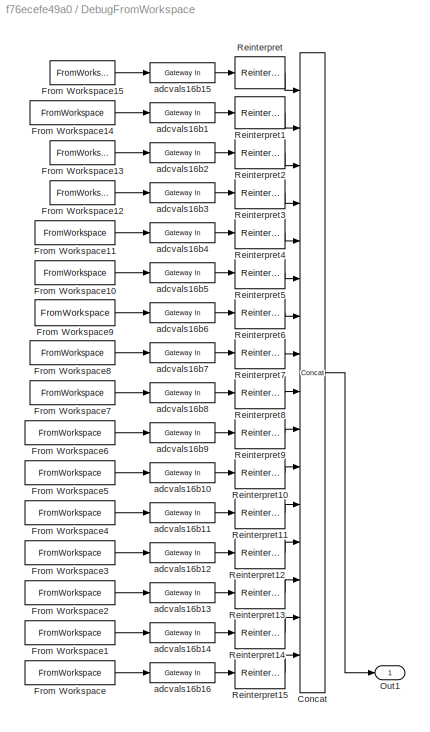
BLOCK [SubSystem] DebugFromWorkspace
  FunctionWithSeparateData = off
  MaskHideContents = off
  MinAlgLoopOccurrences = off
  Opaque = off
  Ports = [0, 1]
  PropExecContextOutsideSubsystem = off
  RTWSystemCode = Auto
  RequestExecContextInheritance = off
BLOCK [Reference] DebugFromWorkspace/Concat  REF=xbsIndex_r4/Concat
  Ports = [16, 1]
  SourceBlock = xbsIndex_r4/Concat
  SourceType = Xilinx Bus Concatenator Block
  block_type = concat
  dbl_ovrd = off
  has_advanced_control = 0
  infoedit = Concatenates two or more inputs.  Output will be cast to an unsigned value with the binary point at zero.
  num_inputs = 16
  sg_icon_stat = 25,640,16,1,white,blue,0,e51e01c8,right,,[ ],[ ]
  sg_mask_display = fprintf('','COMMENT: begin icon graphics');\npatch([0 25 25 0 0 ],[0 0 640 640 0 ],[0.77 0.82 0.91 ]);\nplot([0 25 25 0 0 ],[0 0 640 640 0 ]);\npatch([5.325 9.66 12.66 15.66 18.66 12.66 8.325 5.325 ],[323.33 323.33 326.33 323.33 326.33 326.33 326.33 323.33 ],[1 1 1 ]);\npatch([8.325 12.66 9.66 5.325 8.325 ],[320.33 320.33 323.33 323.33 320.33 ],[0.931 0.946 0.973 ]);\npatch([5.325 9.66 12.66 8.325 5.32...<+454ch>
  sggui_pos = 20,20,328,182
BLOCK [FromWorkspace] DebugFromWorkspace/From Workspace
  SampleTime = 1
  VariableName = [T tinyvals16b(:,1)]
BLOCK [FromWorkspace] DebugFromWorkspace/From Workspace1
  SampleTime = 1
  VariableName = [T tinyvals16b(:,2)]
BLOCK [FromWorkspace] DebugFromWorkspace/From Workspace10
  SampleTime = 1
  VariableName = [T tinyvals16b(:,11)]
BLOCK [FromWorkspace] DebugFromWorkspace/From Workspace11
  SampleTime = 1
  VariableName = [T tinyvals16b(:,12)]
BLOCK [FromWorkspace] DebugFromWorkspace/From Workspace12
  SampleTime = 1
  VariableName = [T tinyvals16b(:,13)]
BLOCK [FromWorkspace] DebugFromWorkspace/From Workspace13
  SampleTime = 1
  VariableName = [T tinyvals16b(:,14)]
BLOCK [FromWorkspace] DebugFromWorkspace/From Workspace14
  SampleTime = 1
  VariableName = [T tinyvals16b(:,15)]
BLOCK [FromWorkspace] DebugFromWorkspace/From Workspace15
  SampleTime = 1
  VariableName = [T tinyvals16b(:,16)]
BLOCK [FromWorkspace] DebugFromWorkspace/From Workspace2
  SampleTime = 1
  VariableName = [T tinyvals16b(:,3)]
BLOCK [FromWorkspace] DebugFromWorkspace/From Workspace3
  SampleTime = 1
  VariableName = [T tinyvals16b(:,4)]
BLOCK [FromWorkspace] DebugFromWorkspace/From Workspace4
  SampleTime = 1
  VariableName = [T tinyvals16b(:,5)]
BLOCK [FromWorkspace] DebugFromWorkspace/From Workspace5
  SampleTime = 1
  VariableName = [T tinyvals16b(:,6)]
BLOCK [FromWorkspace] DebugFromWorkspace/From Workspace6
  SampleTime = 1
  VariableName = [T tinyvals16b(:,7)]
BLOCK [FromWorkspace] DebugFromWorkspace/From Workspace7
  SampleTime = 1
  VariableName = [T tinyvals16b(:,8)]
BLOCK [FromWorkspace] DebugFromWorkspace/From Workspace8
  SampleTime = 1
  VariableName = [T tinyvals16b(:,9)]
BLOCK [FromWorkspace] DebugFromWorkspace/From Workspace9
  SampleTime = 1
  VariableName = [T tinyvals16b(:,10)]
BLOCK [Outport] DebugFromWorkspace/Out1
  IconDisplay = Port number
BLOCK [Reference] DebugFromWorkspace/Reinterpret  REF=xbsIndex_r4/Reinterpret
  Ports = [1, 1]
  SourceBlock = xbsIndex_r4/Reinterpret
  SourceType = Xilinx Type Reinterpreter Block
  arith_type = Unsigned
  bin_pt = 0
  block_type = reinterpret
  force_arith_type = on
  force_bin_pt = on
  has_advanced_control = 0
  sg_icon_stat = 50,32,1,1,white,blue,0,6b04d0b0,right,,[ ],[ ]
  sggui_pos = 20,20,328,310
BLOCK [Reference] DebugFromWorkspace/Reinterpret1  REF=xbsIndex_r4/Reinterpret
  Ports = [1, 1]
  SourceBlock = xbsIndex_r4/Reinterpret
  SourceType = Xilinx Type Reinterpreter Block
  arith_type = Unsigned
  bin_pt = 0
  block_type = reinterpret
  force_arith_type = on
  force_bin_pt = on
  has_advanced_control = 0
  sg_icon_stat = 50,32,1,1,white,blue,0,6b04d0b0,right,,[ ],[ ]
  sggui_pos = 20,20,328,310
BLOCK [Reference] DebugFromWorkspace/Reinterpret10  REF=xbsIndex_r4/Reinterpret
  Ports = [1, 1]
  SourceBlock = xbsIndex_r4/Reinterpret
  SourceType = Xilinx Type Reinterpreter Block
  arith_type = Unsigned
  bin_pt = 0
  block_type = reinterpret
  force_arith_type = on
  force_bin_pt = on
  has_advanced_control = 0
  sg_icon_stat = 50,32,1,1,white,blue,0,6b04d0b0,right,,[ ],[ ]
  sggui_pos = 20,20,328,310
BLOCK [Reference] DebugFromWorkspace/Reinterpret11  REF=xbsIndex_r4/Reinterpret
  Ports = [1, 1]
  SourceBlock = xbsIndex_r4/Reinterpret
  SourceType = Xilinx Type Reinterpreter Block
  arith_type = Unsigned
  bin_pt = 0
  block_type = reinterpret
  force_arith_type = on
  force_bin_pt = on
  has_advanced_control = 0
  sg_icon_stat = 50,32,1,1,white,blue,0,6b04d0b0,right,,[ ],[ ]
  sggui_pos = 20,20,328,310
BLOCK [Reference] DebugFromWorkspace/Reinterpret12  REF=xbsIndex_r4/Reinterpret
  Ports = [1, 1]
  SourceBlock = xbsIndex_r4/Reinterpret
  SourceType = Xilinx Type Reinterpreter Block
  arith_type = Unsigned
  bin_pt = 0
  block_type = reinterpret
  force_arith_type = on
  force_bin_pt = on
  has_advanced_control = 0
  sg_icon_stat = 50,32,1,1,white,blue,0,6b04d0b0,right,,[ ],[ ]
  sggui_pos = 20,20,328,310
BLOCK [Reference] DebugFromWorkspace/Reinterpret13  REF=xbsIndex_r4/Reinterpret
  Ports = [1, 1]
  SourceBlock = xbsIndex_r4/Reinterpret
  SourceType = Xilinx Type Reinterpreter Block
  arith_type = Unsigned
  bin_pt = 0
  block_type = reinterpret
  force_arith_type = on
  force_bin_pt = on
  has_advanced_control = 0
  sg_icon_stat = 50,32,1,1,white,blue,0,6b04d0b0,right,,[ ],[ ]
  sggui_pos = 20,20,328,310
BLOCK [Reference] DebugFromWorkspace/Reinterpret14  REF=xbsIndex_r4/Reinterpret
  Ports = [1, 1]
  SourceBlock = xbsIndex_r4/Reinterpret
  SourceType = Xilinx Type Reinterpreter Block
  arith_type = Unsigned
  bin_pt = 0
  block_type = reinterpret
  force_arith_type = on
  force_bin_pt = on
  has_advanced_control = 0
  sg_icon_stat = 50,32,1,1,white,blue,0,6b04d0b0,right,,[ ],[ ]
  sggui_pos = 20,20,328,310
BLOCK [Reference] DebugFromWorkspace/Reinterpret15  REF=xbsIndex_r4/Reinterpret
  Ports = [1, 1]
  SourceBlock = xbsIndex_r4/Reinterpret
  SourceType = Xilinx Type Reinterpreter Block
  arith_type = Unsigned
  bin_pt = 0
  block_type = reinterpret
  force_arith_type = on
  force_bin_pt = on
  has_advanced_control = 0
  sg_icon_stat = 50,32,1,1,white,blue,0,6b04d0b0,right,,[ ],[ ]
  sggui_pos = 20,20,328,310
BLOCK [Reference] DebugFromWorkspace/Reinterpret2  REF=xbsIndex_r4/Reinterpret
  Ports = [1, 1]
  SourceBlock = xbsIndex_r4/Reinterpret
  SourceType = Xilinx Type Reinterpreter Block
  arith_type = Unsigned
  bin_pt = 0
  block_type = reinterpret
  force_arith_type = on
  force_bin_pt = on
  has_advanced_control = 0
  sg_icon_stat = 50,32,1,1,white,blue,0,6b04d0b0,right,,[ ],[ ]
  sggui_pos = 20,20,328,310
BLOCK [Reference] DebugFromWorkspace/Reinterpret3  REF=xbsIndex_r4/Reinterpret
  Ports = [1, 1]
  SourceBlock = xbsIndex_r4/Reinterpret
  SourceType = Xilinx Type Reinterpreter Block
  arith_type = Unsigned
  bin_pt = 0
  block_type = reinterpret
  force_arith_type = on
  force_bin_pt = on
  has_advanced_control = 0
  sg_icon_stat = 50,32,1,1,white,blue,0,6b04d0b0,right,,[ ],[ ]
  sggui_pos = 20,20,328,310
BLOCK [Reference] DebugFromWorkspace/Reinterpret4  REF=xbsIndex_r4/Reinterpret
  Ports = [1, 1]
  SourceBlock = xbsIndex_r4/Reinterpret
  SourceType = Xilinx Type Reinterpreter Block
  arith_type = Unsigned
  bin_pt = 0
  block_type = reinterpret
  force_arith_type = on
  force_bin_pt = on
  has_advanced_control = 0
  sg_icon_stat = 50,32,1,1,white,blue,0,6b04d0b0,right,,[ ],[ ]
  sggui_pos = 20,20,328,310
BLOCK [Reference] DebugFromWorkspace/Reinterpret5  REF=xbsIndex_r4/Reinterpret
  Ports = [1, 1]
  SourceBlock = xbsIndex_r4/Reinterpret
  SourceType = Xilinx Type Reinterpreter Block
  arith_type = Unsigned
  bin_pt = 0
  block_type = reinterpret
  force_arith_type = on
  force_bin_pt = on
  has_advanced_control = 0
  sg_icon_stat = 50,32,1,1,white,blue,0,6b04d0b0,right,,[ ],[ ]
  sggui_pos = 20,20,328,310
BLOCK [Reference] DebugFromWorkspace/Reinterpret6  REF=xbsIndex_r4/Reinterpret
  Ports = [1, 1]
  SourceBlock = xbsIndex_r4/Reinterpret
  SourceType = Xilinx Type Reinterpreter Block
  arith_type = Unsigned
  bin_pt = 0
  block_type = reinterpret
  force_arith_type = on
  force_bin_pt = on
  has_advanced_control = 0
  sg_icon_stat = 50,32,1,1,white,blue,0,6b04d0b0,right,,[ ],[ ]
  sggui_pos = 20,20,328,310
BLOCK [Reference] DebugFromWorkspace/Reinterpret7  REF=xbsIndex_r4/Reinterpret
  Ports = [1, 1]
  SourceBlock = xbsIndex_r4/Reinterpret
  SourceType = Xilinx Type Reinterpreter Block
  arith_type = Unsigned
  bin_pt = 0
  block_type = reinterpret
  force_arith_type = on
  force_bin_pt = on
  has_advanced_control = 0
  sg_icon_stat = 50,32,1,1,white,blue,0,6b04d0b0,right,,[ ],[ ]
  sggui_pos = 20,20,328,310
BLOCK [Reference] DebugFromWorkspace/Reinterpret8  REF=xbsIndex_r4/Reinterpret
  Ports = [1, 1]
  SourceBlock = xbsIndex_r4/Reinterpret
  SourceType = Xilinx Type Reinterpreter Block
  arith_type = Unsigned
  bin_pt = 0
  block_type = reinterpret
  force_arith_type = on
  force_bin_pt = on
  has_advanced_control = 0
  sg_icon_stat = 50,32,1,1,white,blue,0,6b04d0b0,right,,[ ],[ ]
  sggui_pos = 20,20,328,310
BLOCK [Reference] DebugFromWorkspace/Reinterpret9  REF=xbsIndex_r4/Reinterpret
  Ports = [1, 1]
  SourceBlock = xbsIndex_r4/Reinterpret
  SourceType = Xilinx Type Reinterpreter Block
  arith_type = Unsigned
  bin_pt = 0
  block_type = reinterpret
  force_arith_type = on
  force_bin_pt = on
  has_advanced_control = 0
  sg_icon_stat = 50,32,1,1,white,blue,0,6b04d0b0,right,,[ ],[ ]
  sggui_pos = 20,20,328,310
BLOCK [Reference] DebugFromWorkspace/adcvals16b1  REF=xbsIndex_r4/Gateway In
  ADCChannel = '1'
  LOCs = {}
  Ports = [1, 1]
  SourceBlock = xbsIndex_r4/Gateway In
  SourceType = Xilinx Gateway In Block
  UseAsADC = off
  arith_type = Signed  (2's comp)
  bin_pt = 0
  block_type = gatewayin
  dbl_ovrd = off
  exp_width = 8
  frac_width = 24
  gui_display_data_type = Fixed-point
  has_advanced_control = 0
  hdl_port = on
  infoedit = Gateway in block.  Converts inputs of type Simulink integer, single, double and fixed-point to  Xilinx fixed-point or floating-point data type.<br><br>Hardware notes:  In hardware these blocks become top level input ports.  <repeated x19 — deduplicated; at blocks: adcvals16b1, adcvals16b10, adcvals16b11, adcvals16b12, adcvals16b13, adcvals16b14, adcvals16b15, adcvals16b16, adcvals16b2, adcvals16b3, adcvals16b4, adcvals16b5, adcvals16b6, adcvals16b7, adcvals16b8, adcvals16b9, +3 more>
  inherit_from_input = off
  locs_specified = off
  n_bits = 8
  overflow = Saturate
  period = 1
  preci_type = Single
  quantization = Round  (unbiased: +/- Inf)
  sg_icon_stat = 65,20,1,1,white,yellow,1,00d3666e,right,,[ ],[ ]
  sg_mask_display = fprintf('','COMMENT: begin icon graphics');\npatch([0 65 65 0 0 ],[0 0 20 20 0 ],[0.95 0.93 0.65 ]);\nplot([0 65 65 0 0 ],[0 0 20 20 0 ]);\npatch([27.55 30.44 32.44 34.44 36.44 32.44 29.55 27.55 ],[12.22 12.22 14.22 12.22 14.22 14.22 14.22 12.22 ],[1 1 1 ]);\npatch([29.55 32.44 30.44 27.55 29.55 ],[10.22 10.22 12.22 12.22 10.22 ],[0.985 0.979 0.895 ]);\npatch([27.55 30.44 32.44 29.55 27.55 ],[8.22 8.22...<+383ch>  <repeated x19 — deduplicated; at blocks: adcvals16b1, adcvals16b10, adcvals16b11, adcvals16b12, adcvals16b13, adcvals16b14, adcvals16b15, adcvals16b16, adcvals16b2, adcvals16b3, adcvals16b4, adcvals16b5, adcvals16b6, adcvals16b7, adcvals16b8, adcvals16b9, +3 more>
  sggui_pos = 20,20,336,582
  timing_constraint = None
  xl_area = [0,0,0,0,0,0,0]
  xl_use_area = off
BLOCK [Reference] DebugFromWorkspace/adcvals16b10  REF=xbsIndex_r4/Gateway In
  ADCChannel = '1'
  LOCs = {}
  Ports = [1, 1]
  SourceBlock = xbsIndex_r4/Gateway In
  SourceType = Xilinx Gateway In Block
  UseAsADC = off
  arith_type = Signed  (2's comp)
  bin_pt = 0
  block_type = gatewayin
  dbl_ovrd = off
  exp_width = 8
  frac_width = 24
  gui_display_data_type = Fixed-point
  has_advanced_control = 0
  hdl_port = on
  inherit_from_input = off
  locs_specified = off
  n_bits = 8
  overflow = Saturate
  period = 1
  preci_type = Single
  quantization = Round  (unbiased: +/- Inf)
  sg_icon_stat = 65,20,1,1,white,yellow,1,00d3666e,right,,[ ],[ ]
  sggui_pos = 20,20,336,582
  timing_constraint = None
  xl_area = [0,0,0,0,0,0,0]
  xl_use_area = off
BLOCK [Reference] DebugFromWorkspace/adcvals16b11  REF=xbsIndex_r4/Gateway In
  ADCChannel = '1'
  LOCs = {}
  Ports = [1, 1]
  SourceBlock = xbsIndex_r4/Gateway In
  SourceType = Xilinx Gateway In Block
  UseAsADC = off
  arith_type = Signed  (2's comp)
  bin_pt = 0
  block_type = gatewayin
  dbl_ovrd = off
  exp_width = 8
  frac_width = 24
  gui_display_data_type = Fixed-point
  has_advanced_control = 0
  hdl_port = on
  inherit_from_input = off
  locs_specified = off
  n_bits = 8
  overflow = Saturate
  period = 1
  preci_type = Single
  quantization = Round  (unbiased: +/- Inf)
  sg_icon_stat = 65,20,1,1,white,yellow,1,00d3666e,right,,[ ],[ ]
  sggui_pos = 20,20,336,582
  timing_constraint = None
  xl_area = [0,0,0,0,0,0,0]
  xl_use_area = off
BLOCK [Reference] DebugFromWorkspace/adcvals16b12  REF=xbsIndex_r4/Gateway In
  ADCChannel = '1'
  LOCs = {}
  Ports = [1, 1]
  SourceBlock = xbsIndex_r4/Gateway In
  SourceType = Xilinx Gateway In Block
  UseAsADC = off
  arith_type = Signed  (2's comp)
  bin_pt = 0
  block_type = gatewayin
  dbl_ovrd = off
  exp_width = 8
  frac_width = 24
  gui_display_data_type = Fixed-point
  has_advanced_control = 0
  hdl_port = on
  inherit_from_input = off
  locs_specified = off
  n_bits = 8
  overflow = Saturate
  period = 1
  preci_type = Single
  quantization = Round  (unbiased: +/- Inf)
  sg_icon_stat = 65,20,1,1,white,yellow,1,00d3666e,right,,[ ],[ ]
  sggui_pos = 20,20,336,582
  timing_constraint = None
  xl_area = [0,0,0,0,0,0,0]
  xl_use_area = off
BLOCK [Reference] DebugFromWorkspace/adcvals16b13  REF=xbsIndex_r4/Gateway In
  ADCChannel = '1'
  LOCs = {}
  Ports = [1, 1]
  SourceBlock = xbsIndex_r4/Gateway In
  SourceType = Xilinx Gateway In Block
  UseAsADC = off
  arith_type = Signed  (2's comp)
  bin_pt = 0
  block_type = gatewayin
  dbl_ovrd = off
  exp_width = 8
  frac_width = 24
  gui_display_data_type = Fixed-point
  has_advanced_control = 0
  hdl_port = on
  inherit_from_input = off
  locs_specified = off
  n_bits = 8
  overflow = Saturate
  period = 1
  preci_type = Single
  quantization = Round  (unbiased: +/- Inf)
  sg_icon_stat = 65,20,1,1,white,yellow,1,00d3666e,right,,[ ],[ ]
  sggui_pos = 20,20,336,582
  timing_constraint = None
  xl_area = [0,0,0,0,0,0,0]
  xl_use_area = off
BLOCK [Reference] DebugFromWorkspace/adcvals16b14  REF=xbsIndex_r4/Gateway In
  ADCChannel = '1'
  LOCs = {}
  Ports = [1, 1]
  SourceBlock = xbsIndex_r4/Gateway In
  SourceType = Xilinx Gateway In Block
  UseAsADC = off
  arith_type = Signed  (2's comp)
  bin_pt = 0
  block_type = gatewayin
  dbl_ovrd = off
  exp_width = 8
  frac_width = 24
  gui_display_data_type = Fixed-point
  has_advanced_control = 0
  hdl_port = on
  inherit_from_input = off
  locs_specified = off
  n_bits = 8
  overflow = Saturate
  period = 1
  preci_type = Single
  quantization = Round  (unbiased: +/- Inf)
  sg_icon_stat = 65,20,1,1,white,yellow,1,00d3666e,right,,[ ],[ ]
  sggui_pos = 20,20,336,582
  timing_constraint = None
  xl_area = [0,0,0,0,0,0,0]
  xl_use_area = off
BLOCK [Reference] DebugFromWorkspace/adcvals16b15  REF=xbsIndex_r4/Gateway In
  ADCChannel = '1'
  LOCs = {}
  Ports = [1, 1]
  SourceBlock = xbsIndex_r4/Gateway In
  SourceType = Xilinx Gateway In Block
  UseAsADC = off
  arith_type = Signed  (2's comp)
  bin_pt = 0
  block_type = gatewayin
  dbl_ovrd = off
  exp_width = 8
  frac_width = 24
  gui_display_data_type = Fixed-point
  has_advanced_control = 0
  hdl_port = on
  inherit_from_input = off
  locs_specified = off
  n_bits = 8
  overflow = Saturate
  period = 1
  preci_type = Single
  quantization = Round  (unbiased: +/- Inf)
  sg_icon_stat = 65,20,1,1,white,yellow,1,00d3666e,right,,[ ],[ ]
  sggui_pos = 20,20,336,582
  timing_constraint = None
  xl_area = [0,0,0,0,0,0,0]
  xl_use_area = off
BLOCK [Reference] DebugFromWorkspace/adcvals16b16  REF=xbsIndex_r4/Gateway In
  ADCChannel = '1'
  LOCs = {}
  Ports = [1, 1]
  SourceBlock = xbsIndex_r4/Gateway In
  SourceType = Xilinx Gateway In Block
  UseAsADC = off
  arith_type = Signed  (2's comp)
  bin_pt = 0
  block_type = gatewayin
  dbl_ovrd = off
  exp_width = 8
  frac_width = 24
  gui_display_data_type = Fixed-point
  has_advanced_control = 0
  hdl_port = on
  inherit_from_input = off
  locs_specified = off
  n_bits = 8
  overflow = Saturate
  period = 1
  preci_type = Single
  quantization = Round  (unbiased: +/- Inf)
  sg_icon_stat = 65,20,1,1,white,yellow,1,00d3666e,right,,[ ],[ ]
  sggui_pos = 20,20,336,582
  timing_constraint = None
  xl_area = [0,0,0,0,0,0,0]
  xl_use_area = off
BLOCK [Reference] DebugFromWorkspace/adcvals16b2  REF=xbsIndex_r4/Gateway In
  ADCChannel = '1'
  LOCs = {}
  Ports = [1, 1]
  SourceBlock = xbsIndex_r4/Gateway In
  SourceType = Xilinx Gateway In Block
  UseAsADC = off
  arith_type = Signed  (2's comp)
  bin_pt = 0
  block_type = gatewayin
  dbl_ovrd = off
  exp_width = 8
  frac_width = 24
  gui_display_data_type = Fixed-point
  has_advanced_control = 0
  hdl_port = on
  inherit_from_input = off
  locs_specified = off
  n_bits = 8
  overflow = Saturate
  period = 1
  preci_type = Single
  quantization = Round  (unbiased: +/- Inf)
  sg_icon_stat = 65,20,1,1,white,yellow,1,00d3666e,right,,[ ],[ ]
  sggui_pos = 20,20,336,582
  timing_constraint = None
  xl_area = [0,0,0,0,0,0,0]
  xl_use_area = off
BLOCK [Reference] DebugFromWorkspace/adcvals16b3  REF=xbsIndex_r4/Gateway In
  ADCChannel = '1'
  LOCs = {}
  Ports = [1, 1]
  SourceBlock = xbsIndex_r4/Gateway In
  SourceType = Xilinx Gateway In Block
  UseAsADC = off
  arith_type = Signed  (2's comp)
  bin_pt = 0
  block_type = gatewayin
  dbl_ovrd = off
  exp_width = 8
  frac_width = 24
  gui_display_data_type = Fixed-point
  has_advanced_control = 0
  hdl_port = on
  inherit_from_input = off
  locs_specified = off
  n_bits = 8
  overflow = Saturate
  period = 1
  preci_type = Single
  quantization = Round  (unbiased: +/- Inf)
  sg_icon_stat = 65,20,1,1,white,yellow,1,00d3666e,right,,[ ],[ ]
  sggui_pos = 20,20,336,582
  timing_constraint = None
  xl_area = [0,0,0,0,0,0,0]
  xl_use_area = off
BLOCK [Reference] DebugFromWorkspace/adcvals16b4  REF=xbsIndex_r4/Gateway In
  ADCChannel = '1'
  LOCs = {}
  Ports = [1, 1]
  SourceBlock = xbsIndex_r4/Gateway In
  SourceType = Xilinx Gateway In Block
  UseAsADC = off
  arith_type = Signed  (2's comp)
  bin_pt = 0
  block_type = gatewayin
  dbl_ovrd = off
  exp_width = 8
  frac_width = 24
  gui_display_data_type = Fixed-point
  has_advanced_control = 0
  hdl_port = on
  inherit_from_input = off
  locs_specified = off
  n_bits = 8
  overflow = Saturate
  period = 1
  preci_type = Single
  quantization = Round  (unbiased: +/- Inf)
  sg_icon_stat = 65,20,1,1,white,yellow,1,00d3666e,right,,[ ],[ ]
  sggui_pos = 20,20,336,582
  timing_constraint = None
  xl_area = [0,0,0,0,0,0,0]
  xl_use_area = off
BLOCK [Reference] DebugFromWorkspace/adcvals16b5  REF=xbsIndex_r4/Gateway In
  ADCChannel = '1'
  LOCs = {}
  Ports = [1, 1]
  SourceBlock = xbsIndex_r4/Gateway In
  SourceType = Xilinx Gateway In Block
  UseAsADC = off
  arith_type = Signed  (2's comp)
  bin_pt = 0
  block_type = gatewayin
  dbl_ovrd = off
  exp_width = 8
  frac_width = 24
  gui_display_data_type = Fixed-point
  has_advanced_control = 0
  hdl_port = on
  inherit_from_input = off
  locs_specified = off
  n_bits = 8
  overflow = Saturate
  period = 1
  preci_type = Single
  quantization = Round  (unbiased: +/- Inf)
  sg_icon_stat = 65,20,1,1,white,yellow,1,00d3666e,right,,[ ],[ ]
  sggui_pos = 20,20,336,582
  timing_constraint = None
  xl_area = [0,0,0,0,0,0,0]
  xl_use_area = off
BLOCK [Reference] DebugFromWorkspace/adcvals16b6  REF=xbsIndex_r4/Gateway In
  ADCChannel = '1'
  LOCs = {}
  Ports = [1, 1]
  SourceBlock = xbsIndex_r4/Gateway In
  SourceType = Xilinx Gateway In Block
  UseAsADC = off
  arith_type = Signed  (2's comp)
  bin_pt = 0
  block_type = gatewayin
  dbl_ovrd = off
  exp_width = 8
  frac_width = 24
  gui_display_data_type = Fixed-point
  has_advanced_control = 0
  hdl_port = on
  inherit_from_input = off
  locs_specified = off
  n_bits = 8
  overflow = Saturate
  period = 1
  preci_type = Single
  quantization = Round  (unbiased: +/- Inf)
  sg_icon_stat = 65,20,1,1,white,yellow,1,00d3666e,right,,[ ],[ ]
  sggui_pos = 20,20,336,582
  timing_constraint = None
  xl_area = [0,0,0,0,0,0,0]
  xl_use_area = off
BLOCK [Reference] DebugFromWorkspace/adcvals16b7  REF=xbsIndex_r4/Gateway In
  ADCChannel = '1'
  LOCs = {}
  Ports = [1, 1]
  SourceBlock = xbsIndex_r4/Gateway In
  SourceType = Xilinx Gateway In Block
  UseAsADC = off
  arith_type = Signed  (2's comp)
  bin_pt = 0
  block_type = gatewayin
  dbl_ovrd = off
  exp_width = 8
  frac_width = 24
  gui_display_data_type = Fixed-point
  has_advanced_control = 0
  hdl_port = on
  inherit_from_input = off
  locs_specified = off
  n_bits = 8
  overflow = Saturate
  period = 1
  preci_type = Single
  quantization = Round  (unbiased: +/- Inf)
  sg_icon_stat = 65,20,1,1,white,yellow,1,00d3666e,right,,[ ],[ ]
  sggui_pos = 20,20,336,582
  timing_constraint = None
  xl_area = [0,0,0,0,0,0,0]
  xl_use_area = off
BLOCK [Reference] DebugFromWorkspace/adcvals16b8  REF=xbsIndex_r4/Gateway In
  ADCChannel = '1'
  LOCs = {}
  Ports = [1, 1]
  SourceBlock = xbsIndex_r4/Gateway In
  SourceType = Xilinx Gateway In Block
  UseAsADC = off
  arith_type = Signed  (2's comp)
  bin_pt = 0
  block_type = gatewayin
  dbl_ovrd = off
  exp_width = 8
  frac_width = 24
  gui_display_data_type = Fixed-point
  has_advanced_control = 0
  hdl_port = on
  inherit_from_input = off
  locs_specified = off
  n_bits = 8
  overflow = Saturate
  period = 1
  preci_type = Single
  quantization = Round  (unbiased: +/- Inf)
  sg_icon_stat = 65,20,1,1,white,yellow,1,00d3666e,right,,[ ],[ ]
  sggui_pos = 20,20,336,582
  timing_constraint = None
  xl_area = [0,0,0,0,0,0,0]
  xl_use_area = off
BLOCK [Reference] DebugFromWorkspace/adcvals16b9  REF=xbsIndex_r4/Gateway In
  ADCChannel = '1'
  LOCs = {}
  Ports = [1, 1]
  SourceBlock = xbsIndex_r4/Gateway In
  SourceType = Xilinx Gateway In Block
  UseAsADC = off
  arith_type = Signed  (2's comp)
  bin_pt = 0
  block_type = gatewayin
  dbl_ovrd = off
  exp_width = 8
  frac_width = 24
  gui_display_data_type = Fixed-point
  has_advanced_control = 0
  hdl_port = on
  inherit_from_input = off
  locs_specified = off
  n_bits = 8
  overflow = Saturate
  period = 1
  preci_type = Single
  quantization = Round  (unbiased: +/- Inf)
  sg_icon_stat = 65,20,1,1,white,yellow,1,00d3666e,right,,[ ],[ ]
  sggui_pos = 20,20,336,582
  timing_constraint = None
  xl_area = [0,0,0,0,0,0,0]
  xl_use_area = off
BLOCK [Reference] Delay  REF=xbsIndex_r4/Delay
  Ports = [1, 1]
  SourceBlock = xbsIndex_r4/Delay
  SourceType = Xilinx Delay Block
  block_type = delay
  dbl_ovrd = off
  en = off
  has_advanced_control = 0
  infoedit = Hardware notes: A delay line is a chain, each link of which is an SRL16 followed by a flip-flop.
  infoeditControl = Selection of Reset will increase slice count due to use of real FFs and instead of SRLs
  latency = 1
  reg_retiming = off
  rst = off
  sg_icon_stat = 56,60,1,1,white,blue,0,07b98262,down,,[ ],[ ]
  sg_mask_display = fprintf('','COMMENT: begin icon graphics');\npatch([0 56 56 0 0 ],[0 0 60 60 0 ],[0.77 0.82 0.91 ]);\nplot([0 56 56 0 0 ],[0 0 60 60 0 ]);\npatch([10.2 21.76 29.76 37.76 45.76 29.76 18.2 10.2 ],[38.88 38.88 46.88 38.88 46.88 46.88 46.88 38.88 ],[1 1 1 ]);\npatch([18.2 29.76 21.76 10.2 18.2 ],[30.88 30.88 38.88 38.88 30.88 ],[0.931 0.946 0.973 ]);\npatch([10.2 21.76 29.76 18.2 10.2 ],[22.88 22.88 30.88 ...<+308ch>
  sggui_pos = -1,-1,-1,-1
  xl_area = [0,0,0,0,0,0,0]
  xl_use_area = off
BLOCK [Reference] FIFO  REF=xbsIndex_r4/FIFO
  Ports = [3, 3]
  SourceBlock = xbsIndex_r4/FIFO
  SourceType = Xilinx FIFO Block Block
  almost_empty_thresh = 2
  almost_full_thresh = 14
  block_type = fifo
  dbl_ovrd = off
  depth = 1K
  embedded_registers = on
  en = off
  explicit_period = off
  has_advanced_control = 0
  infoedit1 = Available only for V4, V5, V6, V7, K7, A7 and Zynq devices.
  mem_type = Built-in FIFO
  percent_nbits = 1
  performance_options = Standard_FIFO
  rst = off
  sg_icon_stat = 80,114,3,3,white,blue,0,375ec951,right,,[ ],[ ]
  sg_mask_display = fprintf('','COMMENT: begin icon graphics');\npatch([0 80 80 0 0 ],[0 0 114 114 0 ],[0.77 0.82 0.91 ]);\nplot([0 80 80 0 0 ],[0 0 114 114 0 ]);\npatch([15.525 31.42 42.42 53.42 64.42 42.42 26.525 15.525 ],[69.21 69.21 80.21 69.21 80.21 80.21 80.21 69.21 ],[1 1 1 ]);\npatch([26.525 42.42 31.42 15.525 26.525 ],[58.21 58.21 69.21 69.21 58.21 ],[0.931 0.946 0.973 ]);\npatch([15.525 31.42 42.42 26.525 15.525...<+557ch>
  sggui_pos = 1980,191,416,673
  use_almost_empty = off
  use_almost_full = off
  use_dcount = off
  use_percent_full_port = off
  xl_area = [0,0,0,0,0,0,0]
  xl_use_area = off
BLOCK [Reference] Gateway Out2  REF=xbsIndex_r4/Gateway Out
  DACChannel = '1'
  LOCs = {}
  Ports = [1, 1]
  SourceBlock = xbsIndex_r4/Gateway Out
  SourceType = Xilinx Gateway Out Block
  UseAsDAC = off
  block_type = gatewayout
  has_advanced_control = 0
  hdl_port = off
  inherit_from_input = off
  locs_specified = off
  sg_icon_stat = 60,20,1,1,white,grey,1,632ec840,right,,[ ],[ ]
  sggui_pos = 20,20,328,552
  timing_constraint = None
  xl_area = [0,0,0,0,0,0,0]
  xl_use_area = off
BLOCK [Reference] Gateway Out3  REF=xbsIndex_r4/Gateway Out
  DACChannel = '1'
  LOCs = {}
  Ports = [1, 1]
  SourceBlock = xbsIndex_r4/Gateway Out
  SourceType = Xilinx Gateway Out Block
  UseAsDAC = off
  block_type = gatewayout
  has_advanced_control = 0
  hdl_port = off
  inherit_from_input = off
  locs_specified = off
  sg_icon_stat = 60,20,1,1,white,grey,1,632ec840,right,,[ ],[ ]
  sggui_pos = 20,20,328,552
  timing_constraint = None
  xl_area = [0,0,0,0,0,0,0]
  xl_use_area = off
BLOCK [Reference] Gateway Out4  REF=xbsIndex_r4/Gateway Out
  DACChannel = '1'
  LOCs = {}
  Ports = [1, 1]
  SourceBlock = xbsIndex_r4/Gateway Out
  SourceType = Xilinx Gateway Out Block
  UseAsDAC = off
  block_type = gatewayout
  has_advanced_control = 0
  hdl_port = off
  inherit_from_input = off
  locs_specified = off
  sg_icon_stat = 60,20,1,1,white,grey,1,632ec840,right,,[ ],[ ]
  sggui_pos = 20,20,328,552
  timing_constraint = None
  xl_area = [0,0,0,0,0,0,0]
  xl_use_area = off
BLOCK [Reference] Gateway Out5  REF=xbsIndex_r4/Gateway Out
  DACChannel = '1'
  LOCs = {}
  Ports = [1, 1]
  SourceBlock = xbsIndex_r4/Gateway Out
  SourceType = Xilinx Gateway Out Block
  UseAsDAC = off
  block_type = gatewayout
  has_advanced_control = 0
  hdl_port = off
  inherit_from_input = off
  locs_specified = off
  sg_icon_stat = 60,20,1,1,white,grey,1,632ec840,right,,[ ],[ ]
  sggui_pos = 20,20,328,552
  timing_constraint = None
  xl_area = [0,0,0,0,0,0,0]
  xl_use_area = off
BLOCK [Reference] Gateway Out7  REF=xbsIndex_r4/Gateway Out
  DACChannel = '1'
  LOCs = {}
  Ports = [1, 1]
  SourceBlock = xbsIndex_r4/Gateway Out
  SourceType = Xilinx Gateway Out Block
  UseAsDAC = off
  block_type = gatewayout
  has_advanced_control = 0
  hdl_port = off
  inherit_from_input = on
  locs_specified = off
  sg_icon_stat = 60,20,1,1,white,grey,1,632ec840,right,,[ ],[ ]
  sggui_pos = -1,-1,-1,-1
  timing_constraint = None
  xl_area = [0,0,0,0,0,0,0]
  xl_use_area = off
BLOCK [Reference] Gateway Out8  REF=xbsIndex_r4/Gateway Out
  DACChannel = '1'
  LOCs = {}
  Ports = [1, 1]
  SourceBlock = xbsIndex_r4/Gateway Out
  SourceType = Xilinx Gateway Out Block
  UseAsDAC = off
  block_type = gatewayout
  has_advanced_control = 0
  hdl_port = off
  inherit_from_input = on
  locs_specified = off
  sg_icon_stat = 60,20,1,1,white,grey,1,632ec840,right,,[ ],[ ]
  sggui_pos = -1,-1,-1,-1
  timing_constraint = None
  xl_area = [0,0,0,0,0,0,0]
  xl_use_area = off
BLOCK [Reference] Inverter  REF=xbsIndex_r4/Inverter
  Ports = [1, 1]
  SourceBlock = xbsIndex_r4/Inverter
  SourceType = Xilinx Inverter Block
  block_type = inv
  dbl_ovrd = off
  en = off
  has_advanced_control = 0
  infoedit = Bitwise logical negation (one's complement) operator.
  latency = 0
  sg_icon_stat = 58,55,1,1,white,blue,0,267846e5,down,,[ ],[ ]
  sg_mask_display = fprintf('','COMMENT: begin icon graphics');\npatch([0 58 58 0 0 ],[0 0 55 55 0 ],[0.77 0.82 0.91 ]);\nplot([0 58 58 0 0 ],[0 0 55 55 0 ]);\npatch([13.425 23.54 30.54 37.54 44.54 30.54 20.425 13.425 ],[34.77 34.77 41.77 34.77 41.77 41.77 41.77 34.77 ],[1 1 1 ]);\npatch([20.425 30.54 23.54 13.425 20.425 ],[27.77 27.77 34.77 34.77 27.77 ],[0.931 0.946 0.973 ]);\npatch([13.425 23.54 30.54 20.425 13.425 ],[...<+314ch>
  sggui_pos = 653,251,348,293
  xl_area = [0,0,0,0,0,0,0]
  xl_use_area = off
BLOCK [Reference] P  REF=xbsIndex_r4/Gateway In
  ADCChannel = '1'
  LOCs = {}
  Ports = [1, 1]
  SourceBlock = xbsIndex_r4/Gateway In
  SourceType = Xilinx Gateway In Block
  UseAsADC = off
  arith_type = Unsigned
  bin_pt = 20
  block_type = gatewayin
  dbl_ovrd = off
  exp_width = 8
  frac_width = 24
  gui_display_data_type = Fixed-point
  has_advanced_control = 0
  hdl_port = on
  inherit_from_input = off
  locs_specified = off
  n_bits = 32
  overflow = Saturate
  period = 1
  preci_type = Single
  quantization = Round  (unbiased: +/- Inf)
  sg_icon_stat = 65,20,1,1,white,yellow,1,00d3666e,right,,[ ],[ ]
  sggui_pos = 20,20,336,582
  timing_constraint = None
  xl_area = [0,0,0,0,0,0,0]
  xl_use_area = off
BLOCK [Reference] P1  REF=xbsIndex_r4/Gateway In
  ADCChannel = '1'
  LOCs = {}
  Ports = [1, 1]
  SourceBlock = xbsIndex_r4/Gateway In
  SourceType = Xilinx Gateway In Block
  UseAsADC = off
  arith_type = Signed  (2's comp)
  bin_pt = 0
  block_type = gatewayin
  dbl_ovrd = off
  exp_width = 8
  frac_width = 24
  gui_display_data_type = Fixed-point
  has_advanced_control = 0
  hdl_port = on
  inherit_from_input = off
  locs_specified = off
  n_bits = 5
  overflow = Saturate
  period = 1
  preci_type = Single
  quantization = Round  (unbiased: +/- Inf)
  sg_icon_stat = 65,20,1,1,white,yellow,1,00d3666e,right,,[ ],[ ]
  sggui_pos = 1487,216,348,609
  timing_constraint = None
  xl_area = [0,0,0,0,0,0,0]
  xl_use_area = off
BLOCK [Reference] P2  REF=xbsIndex_r4/Gateway In
  ADCChannel = '1'
  LOCs = {}
  Ports = [1, 1]
  SourceBlock = xbsIndex_r4/Gateway In
  SourceType = Xilinx Gateway In Block
  UseAsADC = off
  arith_type = Signed  (2's comp)
  bin_pt = 0
  block_type = gatewayin
  dbl_ovrd = off
  exp_width = 8
  frac_width = 24
  gui_display_data_type = Fixed-point
  has_advanced_control = 0
  hdl_port = on
  inherit_from_input = off
  locs_specified = off
  n_bits = 32
  overflow = Saturate
  period = 1
  preci_type = Single
  quantization = Round  (unbiased: +/- Inf)
  sg_icon_stat = 65,20,1,1,white,yellow,1,00d3666e,right,,[ ],[ ]
  sggui_pos = 1651,299,348,609
  timing_constraint = None
  xl_area = [0,0,0,0,0,0,0]
  xl_use_area = off
BLOCK [Reference] Relational  REF=xbsIndex_r4/Relational
  Ports = [2, 1]
  SourceBlock = xbsIndex_r4/Relational
  SourceType = Xilinx Arithmetic Relational Operator Block
  block_type = relational
  dbl_ovrd = off
  en = off
  has_advanced_control = 0
  latency = 0
  mode = a>b
  sg_icon_stat = 55,56,2,1,white,blue,0,b5131c97,right,,[ ],[ ]
  sggui_pos = 20,20,336,185
  xl_area = [0,0,0,0,0,0,0]
  xl_use_area = off
BLOCK [Reference] Relational1  REF=xbsIndex_r4/Relational
  Ports = [2, 1]
  SourceBlock = xbsIndex_r4/Relational
  SourceType = Xilinx Arithmetic Relational Operator Block
  block_type = relational
  dbl_ovrd = off
  en = off
  has_advanced_control = 0
  latency = 0
  mode = a=b
  sg_icon_stat = 55,56,2,1,white,blue,0,2a81ff49,right,,[ ],[ ]
  sggui_pos = 20,20,336,185
  xl_area = [0,0,0,0,0,0,0]
  xl_use_area = off
BLOCK [Reference] Relational2  REF=xbsIndex_r4/Relational
  Ports = [2, 1]
  SourceBlock = xbsIndex_r4/Relational
  SourceType = Xilinx Arithmetic Relational Operator Block
  block_type = relational
  dbl_ovrd = off
  en = off
  has_advanced_control = 0
  latency = 0
  mode = a=b
  sg_icon_stat = 55,56,2,1,white,blue,0,2a81ff49,right,,[ ],[ ]
  sggui_pos = 2168,389,348,193
  xl_area = [0,0,0,0,0,0,0]
  xl_use_area = off
BLOCK [Scope] Scope1
  DataFormat = StructureWithTime
  Floating = off
  NumInputPorts = 4
  Ports = [4]
  SampleTime = 0
  SaveName = ScopeData7
  ShowLegends = off
  YMax = 5~5~5~5
  YMin = -5~-5~-5~-5
BLOCK [SubSystem] Subsystem
  FunctionWithSeparateData = off
  MaskHideContents = off
  MinAlgLoopOccurrences = off
  Opaque = off
  Ports = [1, 1]
  PropExecContextOutsideSubsystem = off
  RTWSystemCode = Auto
  RequestExecContextInheritance = off
BLOCK [Reference] Subsystem/Expression  REF=xbsIndex_r4/Expression
  Ports = [3, 1]
  SourceBlock = xbsIndex_r4/Expression
  SourceType = Xilinx Bitwise Expression Evaluator Block
  align_bp = off
  arith_type = Unsigned
  bin_pt = 0
  block_type = expr
  dbl_ovrd = off
  en = off
  expression = s | s0 | s1
  has_advanced_control = 0
  latency = 0
  n_bits = 16
  precision = Full
  sg_icon_stat = 110,60,3,1,white,blue,0,5829c12a,right,,[ ],[ ]
  sg_mask_display = fprintf('','COMMENT: begin icon graphics');\npatch([0 110 110 0 0 ],[0 0 60 60 0 ],[0.77 0.82 0.91 ]);\nplot([0 110 110 0 0 ],[0 0 60 60 0 ]);\npatch([37.2 48.76 56.76 64.76 72.76 56.76 45.2 37.2 ],[38.88 38.88 46.88 38.88 46.88 46.88 46.88 38.88 ],[1 1 1 ]);\npatch([45.2 56.76 48.76 37.2 45.2 ],[30.88 30.88 38.88 38.88 30.88 ],[0.931 0.946 0.973 ]);\npatch([37.2 48.76 56.76 45.2 37.2 ],[22.88 22.88 30...<+463ch>
  sggui_pos = 20,20,336,234
  xl_area = [0,0,0,0,0,0,0]
  xl_use_area = off
BLOCK [Reference] Subsystem/Expression1  REF=xbsIndex_r4/Expression
  Ports = [2, 1]
  SourceBlock = xbsIndex_r4/Expression
  SourceType = Xilinx Bitwise Expression Evaluator Block
  align_bp = off
  arith_type = Unsigned
  bin_pt = 0
  block_type = expr
  dbl_ovrd = off
  en = off
  expression = s0 & ~s1
  has_advanced_control = 0
  latency = 0
  n_bits = 16
  precision = Full
  sg_icon_stat = 90,60,2,1,white,blue,0,eae45c97,right,,[ ],[ ]
  sg_mask_display = fprintf('','COMMENT: begin icon graphics');\npatch([0 90 90 0 0 ],[0 0 60 60 0 ],[0.77 0.82 0.91 ]);\nplot([0 90 90 0 0 ],[0 0 60 60 0 ]);\npatch([27.2 38.76 46.76 54.76 62.76 46.76 35.2 27.2 ],[38.88 38.88 46.88 38.88 46.88 46.88 46.88 38.88 ],[1 1 1 ]);\npatch([35.2 46.76 38.76 27.2 35.2 ],[30.88 30.88 38.88 38.88 30.88 ],[0.931 0.946 0.973 ]);\npatch([27.2 38.76 46.76 35.2 27.2 ],[22.88 22.88 30.88 ...<+414ch>
  sggui_pos = 20,20,336,234
  xl_area = [0,0,0,0,0,0,0]
  xl_use_area = off
BLOCK [Reference] Subsystem/Expression2  REF=xbsIndex_r4/Expression
  Ports = [2, 1]
  SourceBlock = xbsIndex_r4/Expression
  SourceType = Xilinx Bitwise Expression Evaluator Block
  align_bp = off
  arith_type = Unsigned
  bin_pt = 0
  block_type = expr
  dbl_ovrd = off
  en = off
  expression = s0 | s1
  has_advanced_control = 0
  latency = 0
  n_bits = 16
  precision = Full
  sg_icon_stat = 110,60,2,1,white,blue,0,4c538e23,right,,[ ],[ ]
  sg_mask_display = fprintf('','COMMENT: begin icon graphics');\npatch([0 110 110 0 0 ],[0 0 60 60 0 ],[0.77 0.82 0.91 ]);\nplot([0 110 110 0 0 ],[0 0 60 60 0 ]);\npatch([37.2 48.76 56.76 64.76 72.76 56.76 45.2 37.2 ],[38.88 38.88 46.88 38.88 46.88 46.88 46.88 38.88 ],[1 1 1 ]);\npatch([45.2 56.76 48.76 37.2 45.2 ],[30.88 30.88 38.88 38.88 30.88 ],[0.931 0.946 0.973 ]);\npatch([37.2 48.76 56.76 45.2 37.2 ],[22.88 22.88 30...<+417ch>
  sggui_pos = 20,20,336,234
  xl_area = [0,0,0,0,0,0,0]
  xl_use_area = off
BLOCK [Reference] Subsystem/Register1  REF=xbsIndex_r4/Register
  Ports = [1, 1]
  SourceBlock = xbsIndex_r4/Register
  SourceType = Xilinx Register Block
  block_type = register
  dbl_ovrd = off
  en = off
  has_advanced_control = 0
  init = 0
  rst = off
  sg_icon_stat = 60,56,1,1,white,blue,0,c80657c5,right,,[ ],[ ]
  sggui_pos = 20,20,336,185
  xl_area = [0,0,0,0,0,0,0]
  xl_use_area = off
BLOCK [Reference] Subsystem/Register2  REF=xbsIndex_r4/Register
  Ports = [1, 1]
  SourceBlock = xbsIndex_r4/Register
  SourceType = Xilinx Register Block
  block_type = register
  dbl_ovrd = off
  en = off
  has_advanced_control = 0
  init = 0
  rst = off
  sg_icon_stat = 60,56,1,1,white,blue,0,c80657c5,right,,[ ],[ ]
  sggui_pos = 20,20,336,185
  xl_area = [0,0,0,0,0,0,0]
  xl_use_area = off
BLOCK [Inport] Subsystem/S
  IconDisplay = Port number
BLOCK [Outport] Subsystem/start
  IconDisplay = Port number
BLOCK [Terminator] Terminator
BLOCK [Terminator] Terminator1
BLOCK [Terminator] Terminator2
BLOCK [Terminator] Terminator3
BLOCK [Terminator] Terminator4
BLOCK [Terminator] Terminator5
BLOCK [Terminator] Terminator6
BLOCK [Terminator] Terminator7
BLOCK [Terminator] Terminator8
BLOCK [ToWorkspace] To Workspace
  FixptAsFi = on
  MaxDataPoints = inf
  Ports = [1]
  SampleTime = -1
  VariableName = align_blk
BLOCK [ToWorkspace] To Workspace1
  FixptAsFi = on
  MaxDataPoints = inf
  Ports = [1]
  SampleTime = -1
  VariableName = blk_ready
BLOCK [SubSystem] reg_start
  FunctionWithSeparateData = off
  MaskHideContents = off
  MinAlgLoopOccurrences = off
  Opaque = off
  Ports = [2, 1]
  PropExecContextOutsideSubsystem = off
  RTWSystemCode = Auto
  RequestExecContextInheritance = off
BLOCK [Reference] reg_start/Expression  REF=xbsIndex_r4/Expression
  Ports = [3, 1]
  SourceBlock = xbsIndex_r4/Expression
  SourceType = Xilinx Bitwise Expression Evaluator Block
  align_bp = off
  arith_type = Unsigned
  bin_pt = 0
  block_type = expr
  dbl_ovrd = off
  en = off
  expression = (~q & j) | (q & ~k)
  has_advanced_control = 0
  latency = 0
  n_bits = 16
  precision = Full
  sg_icon_stat = 110,60,3,1,white,blue,0,a389ea39,right,,[ ],[ ]
  sg_mask_display = fprintf('','COMMENT: begin icon graphics');\npatch([0 110 110 0 0 ],[0 0 60 60 0 ],[0.77 0.82 0.91 ]);\nplot([0 110 110 0 0 ],[0 0 60 60 0 ]);\npatch([37.2 48.76 56.76 64.76 72.76 56.76 45.2 37.2 ],[38.88 38.88 46.88 38.88 46.88 46.88 46.88 38.88 ],[1 1 1 ]);\npatch([45.2 56.76 48.76 37.2 45.2 ],[30.88 30.88 38.88 38.88 30.88 ],[0.931 0.946 0.973 ]);\npatch([37.2 48.76 56.76 45.2 37.2 ],[22.88 22.88 30...<+469ch>
  sggui_pos = 20,20,336,234
  xl_area = [0,0,0,0,0,0,0]
  xl_use_area = off
BLOCK [Reference] reg_start/Register1  REF=xbsIndex_r4/Register
  Ports = [1, 1]
  SourceBlock = xbsIndex_r4/Register
  SourceType = Xilinx Register Block
  block_type = register
  dbl_ovrd = off
  en = off
  has_advanced_control = 0
  init = 0
  rst = off
  sg_icon_stat = 60,56,1,1,white,blue,0,c80657c5,right,,[ ],[ ]
  sggui_pos = 20,20,336,185
  xl_area = [0,0,0,0,0,0,0]
  xl_use_area = off
BLOCK [Inport] reg_start/j
  IconDisplay = Port number
BLOCK [Inport] reg_start/k
  IconDisplay = Port number
  Port = 2
BLOCK [Outport] reg_start/q
  IconDisplay = Port number
ANNOTATION Block Alignment/SubSampleAlignment: post = P - pre - periodResample;
LINE Block Alignment/Delay1:1 -> Block Alignment/imgblk_rdy:1
LINE Block Alignment/Delay2:1 -> Block Alignment/imgblk:1
LINE Block Alignment/Delay3:1 -> Block Alignment/Delay1:1
LINE Block Alignment/Delay:1 -> Block Alignment/eol:1
LINE Block Alignment/From2:1 -> Block Alignment/pingpongpang:2
LINE Block Alignment/From3:1 -> Block Alignment/pingpongpang:3
NET Block Alignment/From4:1 -> Block Alignment/Inverter:1, Block Alignment/pingpongpang:5
NET Block Alignment/From:1 -> Block Alignment/SubBlockAlignment:4, Block Alignment/SubSampleAlignment:2, Block Alignment/eol_i:1
NET Block Alignment/Inverter:1 -> Block Alignment/Delay3:1, Block Alignment/blk_offset:1
NET Block Alignment/P:1 -> Block Alignment/SubBlockAlignment:3, Block Alignment/SubSampleAlignment:1, Block Alignment/output_P:1
NET Block Alignment/SubBlockAlignment/AddSub:1 -> Block Alignment/SubBlockAlignment/Goto:1, Block Alignment/SubBlockAlignment/Mod 16:1
LINE Block Alignment/SubBlockAlignment/Constant6:1 -> Block Alignment/SubBlockAlignment/Relational1:2
LINE Block Alignment/SubBlockAlignment/Constant7:1 -> Block Alignment/SubBlockAlignment/Relational2:1
LINE Block Alignment/SubBlockAlignment/Expression:1 -> Block Alignment/SubBlockAlignment/reg_blkgap:1
NET Block Alignment/SubBlockAlignment/From3:1 -> Block Alignment/SubBlockAlignment/Gateway Out1:1, Block Alignment/SubBlockAlignment/Relational1:1
LINE Block Alignment/SubBlockAlignment/Gateway Out1:1 -> Block Alignment/SubBlockAlignment/Scope1:1
LINE Block Alignment/SubBlockAlignment/Gateway Out2:1 -> Block Alignment/SubBlockAlignment/Scope2:1
LINE Block Alignment/SubBlockAlignment/Gateway Out:1 -> Block Alignment/SubBlockAlignment/Scope:1
LINE Block Alignment/SubBlockAlignment/Integer Offset Per Line:1 -> Block Alignment/SubBlockAlignment/AddSub:2
NET Block Alignment/SubBlockAlignment/Logical:1 -> Block Alignment/SubBlockAlignment/Expression:1, Block Alignment/SubBlockAlignment/Gateway Out:1
NET Block Alignment/SubBlockAlignment/Mod 16:1 -> Block Alignment/SubBlockAlignment/next_blksft:1, Block Alignment/SubBlockAlignment/reg_blksft:1
LINE Block Alignment/SubBlockAlignment/P:1 -> Block Alignment/SubBlockAlignment/Integer Offset Per Line:1
LINE Block Alignment/SubBlockAlignment/Relational1:1 -> Block Alignment/SubBlockAlignment/Logical:1
LINE Block Alignment/SubBlockAlignment/Relational2:1 -> Block Alignment/SubBlockAlignment/Logical:2
LINE Block Alignment/SubBlockAlignment/clr_blkgap:1 -> Block Alignment/SubBlockAlignment/reg_blkgap:2
NET Block Alignment/SubBlockAlignment/line_en:1 -> Block Alignment/SubBlockAlignment/Expression:2, Block Alignment/SubBlockAlignment/reg_blksft:2
LINE Block Alignment/SubBlockAlignment/reg_blkgap/Expression:1 -> Block Alignment/SubBlockAlignment/reg_blkgap/Register1:1
NET Block Alignment/SubBlockAlignment/reg_blkgap/Register1:1 -> Block Alignment/SubBlockAlignment/reg_blkgap/Expression:3, Block Alignment/SubBlockAlignment/reg_blkgap/q:1
LINE Block Alignment/SubBlockAlignment/reg_blkgap/j:1 -> Block Alignment/SubBlockAlignment/reg_blkgap/Expression:1
LINE Block Alignment/SubBlockAlignment/reg_blkgap/k:1 -> Block Alignment/SubBlockAlignment/reg_blkgap/Expression:2
LINE Block Alignment/SubBlockAlignment/reg_blkgap:1 -> Block Alignment/SubBlockAlignment/blkgap:1
NET Block Alignment/SubBlockAlignment/reg_blksft:1 -> Block Alignment/SubBlockAlignment/AddSub:1, Block Alignment/SubBlockAlignment/Gateway Out2:1, Block Alignment/SubBlockAlignment/Relational2:2, Block Alignment/SubBlockAlignment/blksft:1
LINE Block Alignment/SubBlockAlignment/ss_plus1:1 -> Block Alignment/SubBlockAlignment/AddSub:3
NET Block Alignment/SubBlockAlignment:1 -> Block Alignment/Goto:1, Block Alignment/SubBlockAlignment:1, Block Alignment/blkgap:1
NET Block Alignment/SubBlockAlignment:2 -> Block Alignment/Goto2:1, Block Alignment/blksft:1
NET Block Alignment/SubBlockAlignment:3 -> Block Alignment/Goto4:1, Block Alignment/next_blksft:1
NET Block Alignment/SubSampleAlignment/AddSub1:1 -> Block Alignment/SubSampleAlignment/AddSub2:1, Block Alignment/SubSampleAlignment/Relational:1
LINE Block Alignment/SubSampleAlignment/AddSub2:1 -> Block Alignment/SubSampleAlignment/pre:1
LINE Block Alignment/SubSampleAlignment/Concat3:1 -> Block Alignment/SubSampleAlignment/Reinterpret1:1
LINE Block Alignment/SubSampleAlignment/Constant12:1 -> Block Alignment/SubSampleAlignment/Concat3:1
LINE Block Alignment/SubSampleAlignment/Constant13:1 -> Block Alignment/SubSampleAlignment/Concat3:3
LINE Block Alignment/SubSampleAlignment/Constant1:1 -> Block Alignment/SubSampleAlignment/Relational:2
LINE Block Alignment/SubSampleAlignment/Fraction/Concat:1 -> Block Alignment/SubSampleAlignment/Fraction/Reinterpret:1
LINE Block Alignment/SubSampleAlignment/Fraction/Constant5:1 -> Block Alignment/SubSampleAlignment/Fraction/Concat:1
LINE Block Alignment/SubSampleAlignment/Fraction/Fractional Part:1 -> Block Alignment/SubSampleAlignment/Fraction/Concat:2
LINE Block Alignment/SubSampleAlignment/Fraction/In1:1 -> Block Alignment/SubSampleAlignment/Fraction/Fractional Part:1
LINE Block Alignment/SubSampleAlignment/Fraction/Reinterpret:1 -> Block Alignment/SubSampleAlignment/Fraction/Out1:1
LINE Block Alignment/SubSampleAlignment/Fraction:1 -> Block Alignment/SubSampleAlignment/AddSub1:2
LINE Block Alignment/SubSampleAlignment/P:1 -> Block Alignment/SubSampleAlignment/Fraction:1
LINE Block Alignment/SubSampleAlignment/Reinterpret1:1 -> Block Alignment/SubSampleAlignment/AddSub2:2
NET Block Alignment/SubSampleAlignment/Relational:1 -> Block Alignment/SubSampleAlignment/Concat3:2, Block Alignment/SubSampleAlignment/ss_plus1:1
LINE Block Alignment/SubSampleAlignment/line_en:1 -> Block Alignment/SubSampleAlignment/pre:2
LINE Block Alignment/SubSampleAlignment/pre:1 -> Block Alignment/SubSampleAlignment/AddSub1:1
LINE Block Alignment/SubSampleAlignment:1 -> Block Alignment/SubBlockAlignment:2
LINE Block Alignment/Subsystem/Gateway Out10:1 -> Block Alignment/Subsystem/Out12:1
LINE Block Alignment/Subsystem/Gateway Out11:1 -> Block Alignment/Subsystem/Out11:1
LINE Block Alignment/Subsystem/Gateway Out12:1 -> Block Alignment/Subsystem/Out10:1
LINE Block Alignment/Subsystem/Gateway Out13:1 -> Block Alignment/Subsystem/Out9:1
LINE Block Alignment/Subsystem/Gateway Out14:1 -> Block Alignment/Subsystem/Out8:1
LINE Block Alignment/Subsystem/Gateway Out15:1 -> Block Alignment/Subsystem/Out7:1
LINE Block Alignment/Subsystem/Gateway Out16:1 -> Block Alignment/Subsystem/Out6:1
LINE Block Alignment/Subsystem/Gateway Out17:1 -> Block Alignment/Subsystem/Out5:1
LINE Block Alignment/Subsystem/Gateway Out18:1 -> Block Alignment/Subsystem/Out4:1
LINE Block Alignment/Subsystem/Gateway Out19:1 -> Block Alignment/Subsystem/Out3:1
LINE Block Alignment/Subsystem/Gateway Out20:1 -> Block Alignment/Subsystem/Out2:1
LINE Block Alignment/Subsystem/Gateway Out21:1 -> Block Alignment/Subsystem/Out1:1
LINE Block Alignment/Subsystem/Gateway Out3:1 -> Block Alignment/Subsystem/Out16:1
LINE Block Alignment/Subsystem/Gateway Out7:1 -> Block Alignment/Subsystem/Out15:1
LINE Block Alignment/Subsystem/Gateway Out8:1 -> Block Alignment/Subsystem/Out14:1
LINE Block Alignment/Subsystem/Gateway Out9:1 -> Block Alignment/Subsystem/Out13:1
LINE Block Alignment/Subsystem/In1:1 -> Block Alignment/Subsystem/Slicer:1
LINE Block Alignment/Subsystem/Reinterpret10:1 -> Block Alignment/Subsystem/Gateway Out16:1
LINE Block Alignment/Subsystem/Reinterpret11:1 -> Block Alignment/Subsystem/Gateway Out17:1
LINE Block Alignment/Subsystem/Reinterpret12:1 -> Block Alignment/Subsystem/Gateway Out18:1
LINE Block Alignment/Subsystem/Reinterpret13:1 -> Block Alignment/Subsystem/Gateway Out19:1
LINE Block Alignment/Subsystem/Reinterpret14:1 -> Block Alignment/Subsystem/Gateway Out20:1
LINE Block Alignment/Subsystem/Reinterpret15:1 -> Block Alignment/Subsystem/Gateway Out21:1
LINE Block Alignment/Subsystem/Reinterpret1:1 -> Block Alignment/Subsystem/Gateway Out7:1
LINE Block Alignment/Subsystem/Reinterpret2:1 -> Block Alignment/Subsystem/Gateway Out8:1
LINE Block Alignment/Subsystem/Reinterpret3:1 -> Block Alignment/Subsystem/Gateway Out9:1
LINE Block Alignment/Subsystem/Reinterpret4:1 -> Block Alignment/Subsystem/Gateway Out10:1
LINE Block Alignment/Subsystem/Reinterpret5:1 -> Block Alignment/Subsystem/Gateway Out11:1
LINE Block Alignment/Subsystem/Reinterpret6:1 -> Block Alignment/Subsystem/Gateway Out12:1
LINE Block Alignment/Subsystem/Reinterpret7:1 -> Block Alignment/Subsystem/Gateway Out13:1
LINE Block Alignment/Subsystem/Reinterpret8:1 -> Block Alignment/Subsystem/Gateway Out14:1
LINE Block Alignment/Subsystem/Reinterpret9:1 -> Block Alignment/Subsystem/Gateway Out15:1
LINE Block Alignment/Subsystem/Reinterpret:1 -> Block Alignment/Subsystem/Gateway Out3:1
NET Block Alignment/Subsystem/Slicer/In1:1 -> Block Alignment/Subsystem/Slicer/Slice10:1, Block Alignment/Subsystem/Slicer/Slice11:1, Block Alignment/Subsystem/Slicer/Slice12:1, Block Alignment/Subsystem/Slicer/Slice13:1, Block Alignment/Subsystem/Slicer/Slice14:1, Block Alignment/Subsystem/Slicer/Slice15:1, Block Alignment/Subsystem/Slicer/Slice1:1, Block Alignment/Subsystem/Slicer/Slice2:1, Block Alignment/Subsystem/Slicer/Slice3:1, Block Alignment/Subsystem/Slicer/Slice4:1, Block Alignment/Subsystem/Slicer/Slice5:1, Block Alignment/Subsystem/Slicer/Slice6:1, Block Alignment/Subsystem/Slicer/Slice7:1, Block Alignment/Subsystem/Slicer/Slice8:1, Block Alignment/Subsystem/Slicer/Slice9:1, Block Alignment/Subsystem/Slicer/Slice:1
LINE Block Alignment/Subsystem/Slicer/Slice10:1 -> Block Alignment/Subsystem/Slicer/Out11:1
LINE Block Alignment/Subsystem/Slicer/Slice11:1 -> Block Alignment/Subsystem/Slicer/Out12:1
LINE Block Alignment/Subsystem/Slicer/Slice12:1 -> Block Alignment/Subsystem/Slicer/Out13:1
LINE Block Alignment/Subsystem/Slicer/Slice13:1 -> Block Alignment/Subsystem/Slicer/Out14:1
LINE Block Alignment/Subsystem/Slicer/Slice14:1 -> Block Alignment/Subsystem/Slicer/Out15:1
LINE Block Alignment/Subsystem/Slicer/Slice15:1 -> Block Alignment/Subsystem/Slicer/Out16:1
LINE Block Alignment/Subsystem/Slicer/Slice1:1 -> Block Alignment/Subsystem/Slicer/Out2:1
LINE Block Alignment/Subsystem/Slicer/Slice2:1 -> Block Alignment/Subsystem/Slicer/Out3:1
LINE Block Alignment/Subsystem/Slicer/Slice3:1 -> Block Alignment/Subsystem/Slicer/Out4:1
LINE Block Alignment/Subsystem/Slicer/Slice4:1 -> Block Alignment/Subsystem/Slicer/Out5:1
LINE Block Alignment/Subsystem/Slicer/Slice5:1 -> Block Alignment/Subsystem/Slicer/Out6:1
LINE Block Alignment/Subsystem/Slicer/Slice6:1 -> Block Alignment/Subsystem/Slicer/Out7:1
LINE Block Alignment/Subsystem/Slicer/Slice7:1 -> Block Alignment/Subsystem/Slicer/Out8:1
LINE Block Alignment/Subsystem/Slicer/Slice8:1 -> Block Alignment/Subsystem/Slicer/Out9:1
LINE Block Alignment/Subsystem/Slicer/Slice9:1 -> Block Alignment/Subsystem/Slicer/Out10:1
LINE Block Alignment/Subsystem/Slicer/Slice:1 -> Block Alignment/Subsystem/Slicer/Out1:1
LINE Block Alignment/Subsystem/Slicer:1 -> Block Alignment/Subsystem/Reinterpret15:1
LINE Block Alignment/Subsystem/Slicer:10 -> Block Alignment/Subsystem/Reinterpret6:1
LINE Block Alignment/Subsystem/Slicer:11 -> Block Alignment/Subsystem/Reinterpret5:1
LINE Block Alignment/Subsystem/Slicer:12 -> Block Alignment/Subsystem/Reinterpret4:1
LINE Block Alignment/Subsystem/Slicer:13 -> Block Alignment/Subsystem/Reinterpret3:1
LINE Block Alignment/Subsystem/Slicer:14 -> Block Alignment/Subsystem/Reinterpret2:1
LINE Block Alignment/Subsystem/Slicer:15 -> Block Alignment/Subsystem/Reinterpret1:1
LINE Block Alignment/Subsystem/Slicer:16 -> Block Alignment/Subsystem/Reinterpret:1
LINE Block Alignment/Subsystem/Slicer:2 -> Block Alignment/Subsystem/Reinterpret14:1
LINE Block Alignment/Subsystem/Slicer:3 -> Block Alignment/Subsystem/Reinterpret13:1
LINE Block Alignment/Subsystem/Slicer:4 -> Block Alignment/Subsystem/Reinterpret12:1
LINE Block Alignment/Subsystem/Slicer:5 -> Block Alignment/Subsystem/Reinterpret11:1
LINE Block Alignment/Subsystem/Slicer:6 -> Block Alignment/Subsystem/Reinterpret10:1
LINE Block Alignment/Subsystem/Slicer:7 -> Block Alignment/Subsystem/Reinterpret9:1
LINE Block Alignment/Subsystem/Slicer:8 -> Block Alignment/Subsystem/Reinterpret8:1
LINE Block Alignment/Subsystem/Slicer:9 -> Block Alignment/Subsystem/Reinterpret7:1
LINE Block Alignment/Subsystem:1 -> Block Alignment/Scope1:1
LINE Block Alignment/Subsystem:10 -> Block Alignment/Scope1:10
LINE Block Alignment/Subsystem:11 -> Block Alignment/Scope1:11
LINE Block Alignment/Subsystem:12 -> Block Alignment/Scope1:12
LINE Block Alignment/Subsystem:13 -> Block Alignment/Scope1:13
LINE Block Alignment/Subsystem:14 -> Block Alignment/Scope1:14
LINE Block Alignment/Subsystem:15 -> Block Alignment/Scope1:15
LINE Block Alignment/Subsystem:16 -> Block Alignment/Scope1:16
LINE Block Alignment/Subsystem:2 -> Block Alignment/Scope1:2
LINE Block Alignment/Subsystem:3 -> Block Alignment/Scope1:3
LINE Block Alignment/Subsystem:4 -> Block Alignment/Scope1:4
LINE Block Alignment/Subsystem:5 -> Block Alignment/Scope1:5
LINE Block Alignment/Subsystem:6 -> Block Alignment/Scope1:6
LINE Block Alignment/Subsystem:7 -> Block Alignment/Scope1:7
LINE Block Alignment/Subsystem:8 -> Block Alignment/Scope1:8
LINE Block Alignment/Subsystem:9 -> Block Alignment/Scope1:9
NET Block Alignment/blk:1 -> Block Alignment/Subsystem:1, Block Alignment/pingpongpang:1
LINE Block Alignment/blk_offset/Constant:1 -> Block Alignment/blk_offset/Relational:2
LINE Block Alignment/blk_offset/Expression:1 -> Block Alignment/blk_offset/eol:1
NET Block Alignment/blk_offset/Relational:1 -> Block Alignment/blk_offset/Expression:1, Block Alignment/blk_offset/counter_blk_offset1:1
LINE Block Alignment/blk_offset/counter_blk_offset1:1 -> Block Alignment/blk_offset/Relational:1
NET Block Alignment/blk_offset/en:1 -> Block Alignment/blk_offset/Expression:2, Block Alignment/blk_offset/counter_blk_offset1:2
NET Block Alignment/blk_offset:1 -> Block Alignment/Delay:1, Block Alignment/Goto1:1, Block Alignment/pingpongpang:4
LINE Block Alignment/blkgap:1 -> Block Alignment/Scope:1
LINE Block Alignment/blksft:1 -> Block Alignment/Scope:2
LINE Block Alignment/eol_i:1 -> Block Alignment/Scope:4
LINE Block Alignment/next_blksft:1 -> Block Alignment/Scope:3
LINE Block Alignment/output_P:1 -> Block Alignment/Scope:5
LINE Block Alignment/pingpongpang/Concat:1 -> Block Alignment/pingpongpang/blk_out:1
LINE Block Alignment/pingpongpang/MCode:1 -> Block Alignment/pingpongpang/Concat:1
LINE Block Alignment/pingpongpang/MCode:10 -> Block Alignment/pingpongpang/Concat:10
LINE Block Alignment/pingpongpang/MCode:11 -> Block Alignment/pingpongpang/Concat:11
LINE Block Alignment/pingpongpang/MCode:12 -> Block Alignment/pingpongpang/Concat:12
LINE Block Alignment/pingpongpang/MCode:13 -> Block Alignment/pingpongpang/Concat:13
LINE Block Alignment/pingpongpang/MCode:14 -> Block Alignment/pingpongpang/Concat:14
LINE Block Alignment/pingpongpang/MCode:15 -> Block Alignment/pingpongpang/Concat:15
LINE Block Alignment/pingpongpang/MCode:16 -> Block Alignment/pingpongpang/Concat:16
LINE Block Alignment/pingpongpang/MCode:2 -> Block Alignment/pingpongpang/Concat:2
LINE Block Alignment/pingpongpang/MCode:3 -> Block Alignment/pingpongpang/Concat:3
LINE Block Alignment/pingpongpang/MCode:4 -> Block Alignment/pingpongpang/Concat:4
LINE Block Alignment/pingpongpang/MCode:5 -> Block Alignment/pingpongpang/Concat:5
LINE Block Alignment/pingpongpang/MCode:6 -> Block Alignment/pingpongpang/Concat:6
LINE Block Alignment/pingpongpang/MCode:7 -> Block Alignment/pingpongpang/Concat:7
LINE Block Alignment/pingpongpang/MCode:8 -> Block Alignment/pingpongpang/Concat:8
LINE Block Alignment/pingpongpang/MCode:9 -> Block Alignment/pingpongpang/Concat:9
NET Block Alignment/pingpongpang/Slicer/In1:1 -> Block Alignment/pingpongpang/Slicer/Slice10:1, Block Alignment/pingpongpang/Slicer/Slice11:1, Block Alignment/pingpongpang/Slicer/Slice12:1, Block Alignment/pingpongpang/Slicer/Slice13:1, Block Alignment/pingpongpang/Slicer/Slice14:1, Block Alignment/pingpongpang/Slicer/Slice15:1, Block Alignment/pingpongpang/Slicer/Slice1:1, Block Alignment/pingpongpang/Slicer/Slice2:1, Block Alignment/pingpongpang/Slicer/Slice3:1, Block Alignment/pingpongpang/Slicer/Slice4:1, Block Alignment/pingpongpang/Slicer/Slice5:1, Block Alignment/pingpongpang/Slicer/Slice6:1, Block Alignment/pingpongpang/Slicer/Slice7:1, Block Alignment/pingpongpang/Slicer/Slice8:1, Block Alignment/pingpongpang/Slicer/Slice9:1, Block Alignment/pingpongpang/Slicer/Slice:1
LINE Block Alignment/pingpongpang/Slicer/Slice10:1 -> Block Alignment/pingpongpang/Slicer/Out11:1
LINE Block Alignment/pingpongpang/Slicer/Slice11:1 -> Block Alignment/pingpongpang/Slicer/Out12:1
LINE Block Alignment/pingpongpang/Slicer/Slice12:1 -> Block Alignment/pingpongpang/Slicer/Out13:1
LINE Block Alignment/pingpongpang/Slicer/Slice13:1 -> Block Alignment/pingpongpang/Slicer/Out14:1
LINE Block Alignment/pingpongpang/Slicer/Slice14:1 -> Block Alignment/pingpongpang/Slicer/Out15:1
LINE Block Alignment/pingpongpang/Slicer/Slice15:1 -> Block Alignment/pingpongpang/Slicer/Out16:1
LINE Block Alignment/pingpongpang/Slicer/Slice1:1 -> Block Alignment/pingpongpang/Slicer/Out2:1
LINE Block Alignment/pingpongpang/Slicer/Slice2:1 -> Block Alignment/pingpongpang/Slicer/Out3:1
LINE Block Alignment/pingpongpang/Slicer/Slice3:1 -> Block Alignment/pingpongpang/Slicer/Out4:1
LINE Block Alignment/pingpongpang/Slicer/Slice4:1 -> Block Alignment/pingpongpang/Slicer/Out5:1
LINE Block Alignment/pingpongpang/Slicer/Slice5:1 -> Block Alignment/pingpongpang/Slicer/Out6:1
LINE Block Alignment/pingpongpang/Slicer/Slice6:1 -> Block Alignment/pingpongpang/Slicer/Out7:1
LINE Block Alignment/pingpongpang/Slicer/Slice7:1 -> Block Alignment/pingpongpang/Slicer/Out8:1
LINE Block Alignment/pingpongpang/Slicer/Slice8:1 -> Block Alignment/pingpongpang/Slicer/Out9:1
LINE Block Alignment/pingpongpang/Slicer/Slice9:1 -> Block Alignment/pingpongpang/Slicer/Out10:1
LINE Block Alignment/pingpongpang/Slicer/Slice:1 -> Block Alignment/pingpongpang/Slicer/Out1:1
LINE Block Alignment/pingpongpang/Slicer:1 -> Block Alignment/pingpongpang/MCode:1
LINE Block Alignment/pingpongpang/Slicer:10 -> Block Alignment/pingpongpang/MCode:10
LINE Block Alignment/pingpongpang/Slicer:11 -> Block Alignment/pingpongpang/MCode:11
LINE Block Alignment/pingpongpang/Slicer:12 -> Block Alignment/pingpongpang/MCode:12
LINE Block Alignment/pingpongpang/Slicer:13 -> Block Alignment/pingpongpang/MCode:13
LINE Block Alignment/pingpongpang/Slicer:14 -> Block Alignment/pingpongpang/MCode:14
LINE Block Alignment/pingpongpang/Slicer:15 -> Block Alignment/pingpongpang/MCode:15
LINE Block Alignment/pingpongpang/Slicer:16 -> Block Alignment/pingpongpang/MCode:16
LINE Block Alignment/pingpongpang/Slicer:2 -> Block Alignment/pingpongpang/MCode:2
LINE Block Alignment/pingpongpang/Slicer:3 -> Block Alignment/pingpongpang/MCode:3
LINE Block Alignment/pingpongpang/Slicer:4 -> Block Alignment/pingpongpang/MCode:4
LINE Block Alignment/pingpongpang/Slicer:5 -> Block Alignment/pingpongpang/MCode:5
LINE Block Alignment/pingpongpang/Slicer:6 -> Block Alignment/pingpongpang/MCode:6
LINE Block Alignment/pingpongpang/Slicer:7 -> Block Alignment/pingpongpang/MCode:7
LINE Block Alignment/pingpongpang/Slicer:8 -> Block Alignment/pingpongpang/MCode:8
LINE Block Alignment/pingpongpang/Slicer:9 -> Block Alignment/pingpongpang/MCode:9
LINE Block Alignment/pingpongpang/blk_in:1 -> Block Alignment/pingpongpang/Slicer:1
LINE Block Alignment/pingpongpang/blkgap:1 -> Block Alignment/pingpongpang/MCode:20
LINE Block Alignment/pingpongpang/eol:1 -> Block Alignment/pingpongpang/MCode:19
LINE Block Alignment/pingpongpang/next_shft:1 -> Block Alignment/pingpongpang/MCode:18
LINE Block Alignment/pingpongpang/shft:1 -> Block Alignment/pingpongpang/MCode:17
LINE Block Alignment/pingpongpang:1 -> Block Alignment/Delay2:1
NET Block Alignment:1 -> FIFO:1, Gateway Out4:1, Gateway Out8:1
NET Block Alignment:2 -> FIFO:2, Gateway Out5:1, Gateway Out7:1
LINE Block Alignment:3 -> Terminator:1
LINE Constant1:1 -> Delay:1
LINE Constant2:1 -> P1:1
LINE Constant3:1 -> P2:1
NET Constant4:1 -> Relational1:2, Relational:2
LINE Constant5:1 -> reg_start:2
LINE Constant6:1 -> Relational2:2
LINE Constant:1 -> P:1
LINE Counter1:1 -> Relational2:1
NET Counter:1 -> Relational1:1, Relational:1
LINE DebugFromWorkspace/Concat:1 -> DebugFromWorkspace/Out1:1
LINE DebugFromWorkspace/From Workspace10:1 -> DebugFromWorkspace/adcvals16b5:1
LINE DebugFromWorkspace/From Workspace11:1 -> DebugFromWorkspace/adcvals16b4:1
LINE DebugFromWorkspace/From Workspace12:1 -> DebugFromWorkspace/adcvals16b3:1
LINE DebugFromWorkspace/From Workspace13:1 -> DebugFromWorkspace/adcvals16b2:1
LINE DebugFromWorkspace/From Workspace14:1 -> DebugFromWorkspace/adcvals16b1:1
LINE DebugFromWorkspace/From Workspace15:1 -> DebugFromWorkspace/adcvals16b15:1
LINE DebugFromWorkspace/From Workspace1:1 -> DebugFromWorkspace/adcvals16b14:1
LINE DebugFromWorkspace/From Workspace2:1 -> DebugFromWorkspace/adcvals16b13:1
LINE DebugFromWorkspace/From Workspace3:1 -> DebugFromWorkspace/adcvals16b12:1
LINE DebugFromWorkspace/From Workspace4:1 -> DebugFromWorkspace/adcvals16b11:1
LINE DebugFromWorkspace/From Workspace5:1 -> DebugFromWorkspace/adcvals16b10:1
LINE DebugFromWorkspace/From Workspace6:1 -> DebugFromWorkspace/adcvals16b9:1
LINE DebugFromWorkspace/From Workspace7:1 -> DebugFromWorkspace/adcvals16b8:1
LINE DebugFromWorkspace/From Workspace8:1 -> DebugFromWorkspace/adcvals16b7:1
LINE DebugFromWorkspace/From Workspace9:1 -> DebugFromWorkspace/adcvals16b6:1
LINE DebugFromWorkspace/From Workspace:1 -> DebugFromWorkspace/adcvals16b16:1
LINE DebugFromWorkspace/Reinterpret10:1 -> DebugFromWorkspace/Concat:11
LINE DebugFromWorkspace/Reinterpret11:1 -> DebugFromWorkspace/Concat:12
LINE DebugFromWorkspace/Reinterpret12:1 -> DebugFromWorkspace/Concat:13
LINE DebugFromWorkspace/Reinterpret13:1 -> DebugFromWorkspace/Concat:14
LINE DebugFromWorkspace/Reinterpret14:1 -> DebugFromWorkspace/Concat:15
LINE DebugFromWorkspace/Reinterpret15:1 -> DebugFromWorkspace/Concat:16
LINE DebugFromWorkspace/Reinterpret1:1 -> DebugFromWorkspace/Concat:2
LINE DebugFromWorkspace/Reinterpret2:1 -> DebugFromWorkspace/Concat:3
LINE DebugFromWorkspace/Reinterpret3:1 -> DebugFromWorkspace/Concat:4
LINE DebugFromWorkspace/Reinterpret4:1 -> DebugFromWorkspace/Concat:5
LINE DebugFromWorkspace/Reinterpret5:1 -> DebugFromWorkspace/Concat:6
LINE DebugFromWorkspace/Reinterpret6:1 -> DebugFromWorkspace/Concat:7
LINE DebugFromWorkspace/Reinterpret7:1 -> DebugFromWorkspace/Concat:8
LINE DebugFromWorkspace/Reinterpret8:1 -> DebugFromWorkspace/Concat:9
LINE DebugFromWorkspace/Reinterpret9:1 -> DebugFromWorkspace/Concat:10
LINE DebugFromWorkspace/Reinterpret:1 -> DebugFromWorkspace/Concat:1
LINE DebugFromWorkspace/adcvals16b10:1 -> DebugFromWorkspace/Reinterpret10:1
LINE DebugFromWorkspace/adcvals16b11:1 -> DebugFromWorkspace/Reinterpret11:1
LINE DebugFromWorkspace/adcvals16b12:1 -> DebugFromWorkspace/Reinterpret12:1
LINE DebugFromWorkspace/adcvals16b13:1 -> DebugFromWorkspace/Reinterpret13:1
LINE DebugFromWorkspace/adcvals16b14:1 -> DebugFromWorkspace/Reinterpret14:1
LINE DebugFromWorkspace/adcvals16b15:1 -> DebugFromWorkspace/Reinterpret:1
LINE DebugFromWorkspace/adcvals16b16:1 -> DebugFromWorkspace/Reinterpret15:1
LINE DebugFromWorkspace/adcvals16b1:1 -> DebugFromWorkspace/Reinterpret1:1
LINE DebugFromWorkspace/adcvals16b2:1 -> DebugFromWorkspace/Reinterpret2:1
LINE DebugFromWorkspace/adcvals16b3:1 -> DebugFromWorkspace/Reinterpret3:1
LINE DebugFromWorkspace/adcvals16b4:1 -> DebugFromWorkspace/Reinterpret4:1
LINE DebugFromWorkspace/adcvals16b5:1 -> DebugFromWorkspace/Reinterpret5:1
LINE DebugFromWorkspace/adcvals16b6:1 -> DebugFromWorkspace/Reinterpret6:1
LINE DebugFromWorkspace/adcvals16b7:1 -> DebugFromWorkspace/Reinterpret7:1
LINE DebugFromWorkspace/adcvals16b8:1 -> DebugFromWorkspace/Reinterpret8:1
LINE DebugFromWorkspace/adcvals16b9:1 -> DebugFromWorkspace/Reinterpret9:1
LINE DebugFromWorkspace:1 -> Block Alignment:1
LINE Delay:1 -> Inverter:1
LINE FIFO:1 -> Terminator4:1
LINE FIFO:2 -> Terminator1:1
LINE FIFO:3 -> Terminator2:1
LINE Gateway Out2:1 -> Scope1:1
LINE Gateway Out3:1 -> Scope1:2
LINE Gateway Out4:1 -> Scope1:3
LINE Gateway Out5:1 -> Scope1:4
LINE Gateway Out7:1 -> To Workspace1:1
LINE Gateway Out8:1 -> To Workspace:1
LINE Inverter:1 -> Terminator3:1
LINE P1:1 -> Terminator5:1
LINE P2:1 -> Terminator8:1
LINE P:1 -> Block Alignment:2
LINE Relational1:1 -> Subsystem:1
LINE Relational2:1 -> Terminator7:1
LINE Relational:1 -> reg_start:1
LINE Subsystem/Expression1:1 -> Subsystem/start:1
LINE Subsystem/Expression2:1 -> Subsystem/Register2:1
LINE Subsystem/Expression:1 -> Subsystem/Register1:1
NET Subsystem/Register1:1 -> Subsystem/Expression1:1, Subsystem/Expression2:1, Subsystem/Expression:2
NET Subsystem/Register2:1 -> Subsystem/Expression1:2, Subsystem/Expression2:2, Subsystem/Expression:3
LINE Subsystem/S:1 -> Subsystem/Expression:1
NET Subsystem:1 -> Gateway Out3:1, Terminator6:1
LINE reg_start/Expression:1 -> reg_start/Register1:1
NET reg_start/Register1:1 -> reg_start/Expression:3, reg_start/q:1
LINE reg_start/j:1 -> reg_start/Expression:1
LINE reg_start/k:1 -> reg_start/Expression:2
NET reg_start:1 -> FIFO:3, Gateway Out2:1
note: NET lines group one-source signal fan-out (src -> all destinations, sorted); 1:1 wires keep LINE
